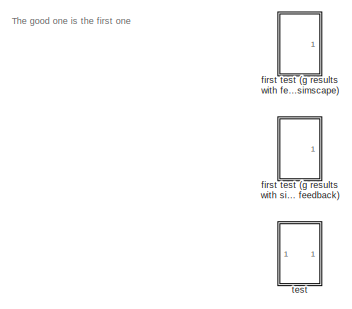
[diagram: root canvas - part 1/3, top right region]
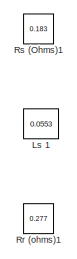
[diagram: root canvas - part 2/3, top left region]
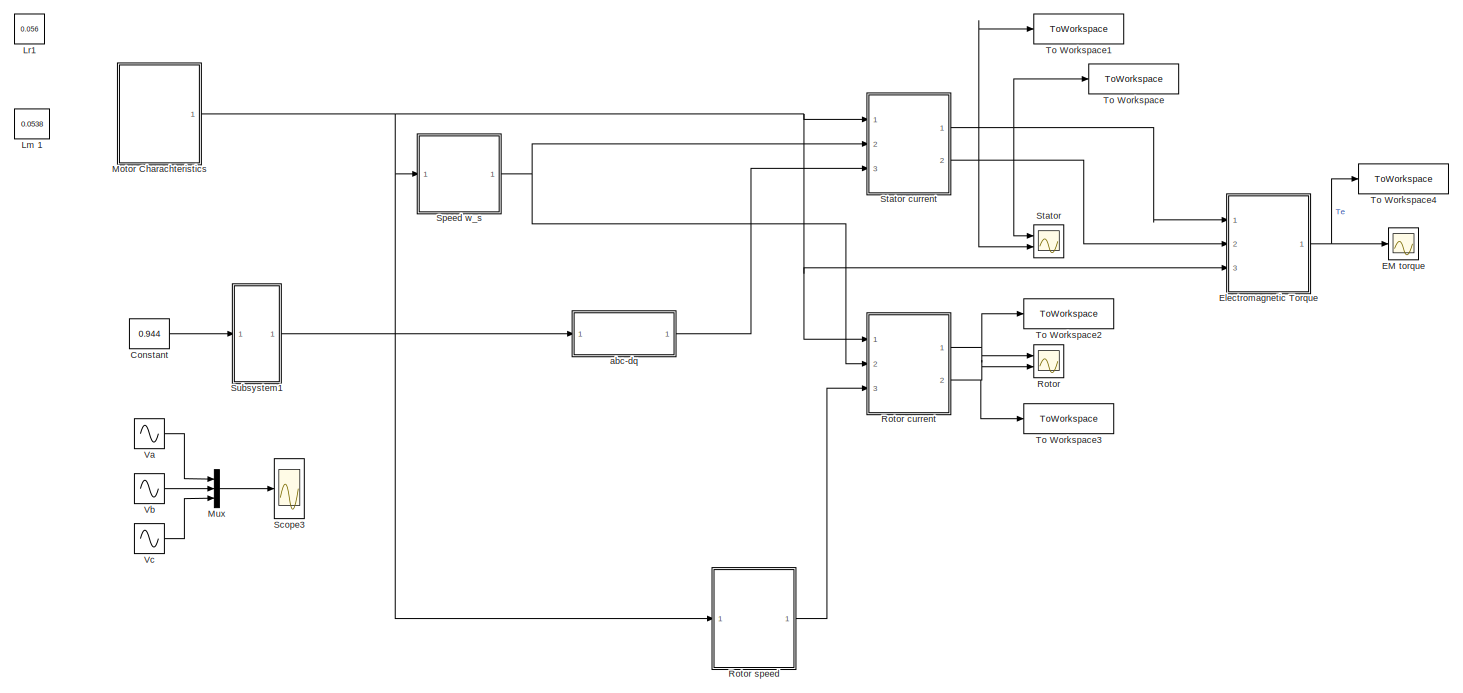
[diagram: root canvas - part 3/3, bottom left region]
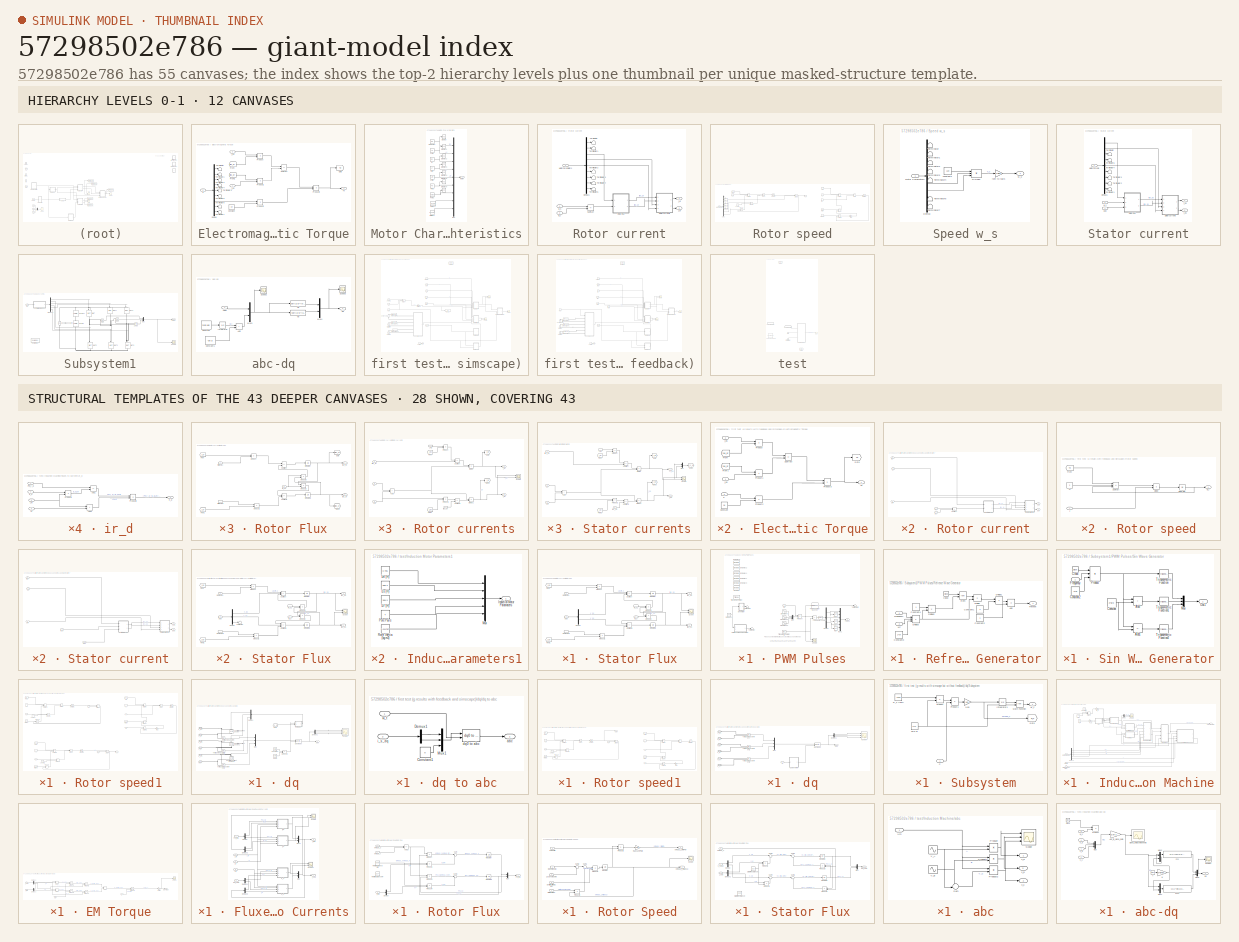
[diagram: thumbnail index - top-2 hierarchy levels (12 canvases) + 28 structural-template representatives of the remaining 43 canvases]
MODEL slx_57298502e786
KIND model
CONFIG AbsTol = auto
CONFIG EnableMultiTasking = off
CONFIG FixedStep = auto
CONFIG MaxStep = 1e-4
CONFIG MinStep = auto
CONFIG RelTol = 1e-3
CONFIG SampleTimeConstraint = Unconstrained
CONFIG Solver = VariableStepAuto
CONFIG SolverName = VariableStepAuto
CONFIG StartTime = 0.0
CONFIG StopTime = 3
BLOCK [Constant] Constant
  Value = 0.944
BLOCK [Scope] EM torque
  Floating = off
  NumInputPorts = 1
  Ports = [1]
  ScopeSpecificationString = Simulink.scopes.TimeScopeBlockCfg('CurrentConfiguration', extmgr.ConfigurationSet(extmgr.Configuration('Core','General UI',true),extmgr.Configuration('Core','Source UI',true),extmgr.Configuration('Sources','WiredSimulink',true,'DataLoggingVariableName','ScopeData6'),extmgr.Configuration('Visuals','Time Domain',true,'SerializedDisplays',{struct('MinYLimReal','-13.60785','MaxYLimReal','13.87231','YL...<+1438ch>
BLOCK [SubSystem] Electromagnetic Torque
  Ports = [3, 1]
  RequestExecContextInheritance = off
BLOCK [Constant] Electromagnetic Torque/Constant
  Value = 3/4
BLOCK [Demux] Electromagnetic Torque/Demux
  Outputs = 9
  Ports = [1, 9]
BLOCK [From] Electromagnetic Torque/From
  GotoTag = flux_dr
  TagVisibility = global
BLOCK [From] Electromagnetic Torque/From1
  GotoTag = flux_qr
  TagVisibility = global
BLOCK [Goto] Electromagnetic Torque/Goto
  GotoTag = Te
  TagVisibility = global
BLOCK [Inport] Electromagnetic Torque/P
  Port = 3
BLOCK [Product] Electromagnetic Torque/Product
  Ports = [2, 1]
BLOCK [Product] Electromagnetic Torque/Product1
  Ports = [2, 1]
BLOCK [Product] Electromagnetic Torque/Product2
  Ports = [2, 1]
BLOCK [Product] Electromagnetic Torque/Product3
  Ports = [2, 1]
BLOCK [Sum] Electromagnetic Torque/Subtract
  IconShape = rectangular
  Inputs = +-
  Ports = [2, 1]
BLOCK [Outport] Electromagnetic Torque/Te
  VectorParamsAs1DForOutWhenUnconnected = off
BLOCK [Terminator] Electromagnetic Torque/Terminator
BLOCK [Terminator] Electromagnetic Torque/Terminator1
BLOCK [Terminator] Electromagnetic Torque/Terminator2
BLOCK [Terminator] Electromagnetic Torque/Terminator3
BLOCK [Terminator] Electromagnetic Torque/Terminator4
BLOCK [Terminator] Electromagnetic Torque/Terminator5
BLOCK [Terminator] Electromagnetic Torque/Terminator6
BLOCK [Terminator] Electromagnetic Torque/Terminator7
BLOCK [Inport] Electromagnetic Torque/i_ds
BLOCK [Inport] Electromagnetic Torque/i_qs
  Port = 2
BLOCK [Constant] Lm 1
  Commented = on
  Value = 0.0538
BLOCK [Constant] Lr1
  Commented = on
  Value = 0.056
BLOCK [Constant] Ls 1
  Commented = on
  Value = 0.0553
BLOCK [SubSystem] Motor Charachteristics
  Ports = [0, 1]
  RequestExecContextInheritance = off
BLOCK [Display] Motor Charachteristics/Display
  Decimation = 1
  Ports = [1]
BLOCK [Display] Motor Charachteristics/Display1
  Decimation = 1
  Ports = [1]
BLOCK [Display] Motor Charachteristics/Display2
  Decimation = 1
  Ports = [1]
BLOCK [Display] Motor Charachteristics/Display3
  Decimation = 1
  Ports = [1]
BLOCK [Display] Motor Charachteristics/Display4
  Decimation = 1
  Ports = [1]
BLOCK [Display] Motor Charachteristics/Display5
  Decimation = 1
  Ports = [1]
BLOCK [Display] Motor Charachteristics/Display6
  Decimation = 1
  Ports = [1]
BLOCK [Constant] Motor Charachteristics/Freq
  Value = Fe
BLOCK [Constant] Motor Charachteristics/Friction1
  Value = 0.00281
BLOCK [Constant] Motor Charachteristics/Kg-m^2
  Value = 0.0155
BLOCK [Constant] Motor Charachteristics/Lm (H)
  Value = Lm
BLOCK [Constant] Motor Charachteristics/Lr (H)
  Value = Lr
BLOCK [Constant] Motor Charachteristics/Ls (H)
  Value = Ls
BLOCK [Outport] Motor Charachteristics/Motor
BLOCK [Mux] Motor Charachteristics/Mux
  DisplayOption = bar
  Inputs = 9
  Ports = [9, 1]
BLOCK [Constant] Motor Charachteristics/Poles
  Value = Poles
BLOCK [Constant] Motor Charachteristics/Rr
  Value = Rr
BLOCK [Constant] Motor Charachteristics/Rs (ohms)
  Value = Rs
BLOCK [Mux] Mux
  DisplayOption = bar
  Inputs = 3
  Ports = [3, 1]
BLOCK [Scope] Rotor
  Floating = off
  NumInputPorts = 2
  Ports = [2]
  ScopeSpecificationString = Simulink.scopes.TimeScopeBlockCfg('CurrentConfiguration', extmgr.ConfigurationSet(extmgr.Configuration('Core','General UI',true),extmgr.Configuration('Core','Source UI',true),extmgr.Configuration('Sources','WiredSimulink',true,'DataLoggingVariableName','ScopeData5'),extmgr.Configuration('Visuals','Time Domain',true,'SerializedDisplays',{struct('MinYLimReal','-185.57548','MaxYLimReal','193.50308','...<+1481ch>
BLOCK [SubSystem] Rotor current
  Ports = [3, 2]
  RequestExecContextInheritance = off
BLOCK [Demux] Rotor current/Demux1
  Outputs = 9
  Ports = [1, 9]
BLOCK [Inport] Rotor current/Motor Parameters
BLOCK [SubSystem] Rotor current/Rotor Flux
  Ports = [2, 2]
  RequestExecContextInheritance = off
BLOCK [From] Rotor current/Rotor Flux/From
  GotoTag = i_dr
  TagVisibility = global
BLOCK [From] Rotor current/Rotor Flux/From1
  GotoTag = i_qr
  TagVisibility = global
BLOCK [Goto] Rotor current/Rotor Flux/Goto
  GotoTag = flux_dr
  TagVisibility = global
BLOCK [Goto] Rotor current/Rotor Flux/Goto1
  GotoTag = flux_qr
  TagVisibility = global
BLOCK [Integrator] Rotor current/Rotor Flux/Integrator
  Ports = [1, 1]
BLOCK [Integrator] Rotor current/Rotor Flux/Integrator1
  Ports = [1, 1]
BLOCK [Inport] Rotor current/Rotor Flux/Rr (Ohms)
BLOCK [InportShadow] Rotor current/Rotor Flux/Rr (Ohms)1
BLOCK [Sum] Rotor current/Rotor Flux/Subtract
  IconShape = rectangular
  Inputs = -+
  Ports = [2, 1]
BLOCK [Sum] Rotor current/Rotor Flux/Subtract1
  IconShape = rectangular
  Inputs = --
  Ports = [2, 1]
BLOCK [Outport] Rotor current/Rotor Flux/flux_dr
  VectorParamsAs1DForOutWhenUnconnected = off
BLOCK [Outport] Rotor current/Rotor Flux/flux_qr
  Port = 2
  VectorParamsAs1DForOutWhenUnconnected = off
BLOCK [Product] Rotor current/Rotor Flux/product
  Inputs = **
  Ports = [2, 1]
BLOCK [Product] Rotor current/Rotor Flux/product1
  Inputs = **
  Ports = [2, 1]
BLOCK [Product] Rotor current/Rotor Flux/product2
  Inputs = **
  Ports = [2, 1]
BLOCK [Product] Rotor current/Rotor Flux/product3
  Inputs = **
  Ports = [2, 1]
BLOCK [Inport] Rotor current/Rotor Flux/w_s1
  Port = 2
BLOCK [SubSystem] Rotor current/Rotor currents
  Ports = [4, 2]
  RequestExecContextInheritance = off
BLOCK [Sum] Rotor current/Rotor currents/Add
  IconShape = rectangular
  Ports = [2, 1]
BLOCK [Product] Rotor current/Rotor currents/Divide
  Inputs = */
  Ports = [2, 1]
BLOCK [Product] Rotor current/Rotor currents/Divide1
  Inputs = /*
  Ports = [2, 1]
BLOCK [From] Rotor current/Rotor currents/From
  GotoTag = i_ds
  TagVisibility = global
BLOCK [From] Rotor current/Rotor currents/From1
  GotoTag = i_qs
  TagVisibility = global
BLOCK [Goto] Rotor current/Rotor currents/Goto
  GotoTag = i_dr
  TagVisibility = global
BLOCK [Goto] Rotor current/Rotor currents/Goto1
  GotoTag = i_qr
  TagVisibility = global
BLOCK [Inport] Rotor current/Rotor currents/Lm
  Port = 4
BLOCK [InportShadow] Rotor current/Rotor currents/Lm1
  Port = 4
BLOCK [Inport] Rotor current/Rotor currents/Lr
  Port = 3
BLOCK [Product] Rotor current/Rotor currents/Product
  Ports = [2, 1]
BLOCK [Product] Rotor current/Rotor currents/Product1
  Ports = [2, 1]
BLOCK [Scope] Rotor current/Rotor currents/Scope
  Floating = off
  NumInputPorts = 2
  Ports = [2]
  ScopeSpecificationString = Simulink.scopes.TimeScopeBlockCfg('CurrentConfiguration', extmgr.ConfigurationSet(extmgr.Configuration('Core','General UI',true),extmgr.Configuration('Core','Source UI',true),extmgr.Configuration('Sources','WiredSimulink',true,'DataLoggingVariableName','ScopeData1'),extmgr.Configuration('Visuals','Time Domain',true,'SerializedDisplays',{struct('MinYLimReal','-381.16693','MaxYLimReal','372.37731','...<+1415ch>  <repeated x3 — deduplicated; at blocks: Scope>
BLOCK [Sum] Rotor current/Rotor currents/Subtract
  IconShape = rectangular
  Inputs = -+
  Ports = [2, 1]
BLOCK [Sum] Rotor current/Rotor currents/Subtract1
  IconShape = rectangular
  Inputs = -+
  Ports = [2, 1]
BLOCK [Inport] Rotor current/Rotor currents/flus_qr
  Port = 2
BLOCK [Inport] Rotor current/Rotor currents/flux_dr
BLOCK [Outport] Rotor current/Rotor currents/i_dr
  VectorParamsAs1DForOutWhenUnconnected = off
BLOCK [Outport] Rotor current/Rotor currents/i_qr
  Port = 2
  VectorParamsAs1DForOutWhenUnconnected = off
BLOCK [Sum] Rotor current/Subtract
  IconShape = rectangular
  Inputs = +-
  Ports = [2, 1]
BLOCK [Terminator] Rotor current/Terminator
BLOCK [Terminator] Rotor current/Terminator1
BLOCK [Terminator] Rotor current/Terminator2
BLOCK [Terminator] Rotor current/Terminator3
BLOCK [Terminator] Rotor current/Terminator4
BLOCK [Terminator] Rotor current/Terminator5
BLOCK [Outport] Rotor current/i_dr
  VectorParamsAs1DForOutWhenUnconnected = off
BLOCK [Outport] Rotor current/i_qr
  Port = 2
  VectorParamsAs1DForOutWhenUnconnected = off
BLOCK [Inport] Rotor current/w_r
  Port = 3
BLOCK [Inport] Rotor current/w_s
  Port = 2
BLOCK [SubSystem] Rotor speed
  Ports = [1, 1]
  RequestExecContextInheritance = off
BLOCK [Demux] Rotor speed/Demux
  Outputs = 8
  Ports = [1, 8]
BLOCK [Product] Rotor speed/Divide
  Commented = on
  Inputs = */
  Ports = [2, 1]
BLOCK [Product] Rotor speed/Divide1
  Inputs = */
  Ports = [2, 1]
BLOCK [Product] Rotor speed/Divide2
  Inputs = **
  Ports = [2, 1]
BLOCK [Constant] Rotor speed/Friction
  Commented = on
  Value = 0.0027
BLOCK [From] Rotor speed/From
  Commented = on
  GotoTag = Te
  TagVisibility = global
BLOCK [From] Rotor speed/From1
  GotoTag = Te
  TagVisibility = global
BLOCK [Gain] Rotor speed/Gain
  Commented = on
  Gain = 60/(2*pi)
BLOCK [Integrator] Rotor speed/Integrator
  Commented = on
  Ports = [1, 1]
BLOCK [Integrator] Rotor speed/Integrator1
  Ports = [1, 1]
BLOCK [Inport] Rotor speed/Motor Parameters
BLOCK [Constant] Rotor speed/OldJ
  Commented = on
BLOCK [Constant] Rotor speed/OldPoles
  Commented = on
BLOCK [Product] Rotor speed/Product
  Commented = on
  Ports = [2, 1]
BLOCK [Product] Rotor speed/Product1
  Ports = [2, 1]
BLOCK [Product] Rotor speed/Product3
  Ports = [2, 1]
BLOCK [Sum] Rotor speed/Subtract
  Commented = on
  IconShape = rectangular
  Inputs = +--
  Ports = [3, 1]
BLOCK [Sum] Rotor speed/Subtract1
  Commented = on
  IconShape = rectangular
  Inputs = +-
  Ports = [2, 1]
BLOCK [Sum] Rotor speed/Subtract2
  IconShape = rectangular
  Inputs = +--
  Ports = [3, 1]
BLOCK [Constant] Rotor speed/TL
  Commented = on
  Value = 0
BLOCK [Constant] Rotor speed/TL1
  Value = 0
BLOCK [Terminator] Rotor speed/Terminator
BLOCK [Terminator] Rotor speed/Terminator1
BLOCK [Terminator] Rotor speed/Terminator2
BLOCK [Terminator] Rotor speed/Terminator3
BLOCK [Terminator] Rotor speed/Terminator4
BLOCK [Constant] Rotor speed/constant
  Value = 2
BLOCK [Outport] Rotor speed/w_r_e
  VectorParamsAs1DForOutWhenUnconnected = off
BLOCK [Constant] Rr (ohms)1
  Commented = on
  Value = 0.277
BLOCK [Constant] Rs (Ohms)1
  Commented = on
  Value = 0.183
BLOCK [Scope] Scope3
  Floating = off
  NumInputPorts = 3
  Ports = [3]
  ScopeSpecificationString = Simulink.scopes.TimeScopeBlockCfg('CurrentConfiguration', extmgr.ConfigurationSet(extmgr.Configuration('Core','General UI',true),extmgr.Configuration('Core','Source UI',true),extmgr.Configuration('Sources','WiredSimulink',true,'DataLoggingVariableName','ScopeData1'),extmgr.Configuration('Visuals','Time Domain',true,'SerializedDisplays',{struct('MinYLimReal','-0.42212','MaxYLimReal','1.12736','YLab...<+2200ch>
BLOCK [SubSystem] Speed w_s
  Ports = [1, 1]
  RequestExecContextInheritance = off
BLOCK [Demux] Speed w_s/Demux
  Outputs = 9
  Ports = [1, 9]
BLOCK [Product] Speed w_s/Divide2
  Inputs = **/
  Ports = [3, 1]
BLOCK [Inport] Speed w_s/Motor Paramaters
BLOCK [Terminator] Speed w_s/Terminator
BLOCK [Terminator] Speed w_s/Terminator1
BLOCK [Terminator] Speed w_s/Terminator2
BLOCK [Terminator] Speed w_s/Terminator3
BLOCK [Terminator] Speed w_s/Terminator4
BLOCK [Terminator] Speed w_s/Terminator5
BLOCK [Terminator] Speed w_s/Terminator7
BLOCK [Constant] Speed w_s/constant1
  Value = 120
BLOCK [Gain] Speed w_s/rpm to rad//s
  Gain = 2*pi/60
BLOCK [Outport] Speed w_s/w_s
  VectorParamsAs1DForOutWhenUnconnected = off
BLOCK [Scope] Stator
  Floating = off
  NumInputPorts = 2
  Ports = [2]
  ScopeSpecificationString = Simulink.scopes.TimeScopeBlockCfg('CurrentConfiguration', extmgr.ConfigurationSet(extmgr.Configuration('Core','General UI',true),extmgr.Configuration('Core','Source UI',true),extmgr.Configuration('Sources','WiredSimulink',true,'DataLoggingVariableName','ScopeData4'),extmgr.Configuration('Visuals','Time Domain',true,'SerializedDisplays',{struct('MinYLimReal','-217.8003','MaxYLimReal','220.44766','Y...<+1482ch>
BLOCK [SubSystem] Stator current
  Ports = [3, 2]
  RequestExecContextInheritance = off
BLOCK [Demux] Stator current/Demux1
  Outputs = 9
  Ports = [1, 9]
BLOCK [Inport] Stator current/Motor Params
BLOCK [SubSystem] Stator current/Stator Flux
  Ports = [3, 2]
  RequestExecContextInheritance = off
BLOCK [Demux] Stator current/Stator Flux/Demux
  Outputs = 2
  Ports = [1, 2]
BLOCK [From] Stator current/Stator Flux/From
  GotoTag = i_ds
  TagVisibility = global
BLOCK [From] Stator current/Stator Flux/From1
  GotoTag = i_qs
  TagVisibility = global
BLOCK [Integrator] Stator current/Stator Flux/Integrator
  Ports = [1, 1]
BLOCK [Integrator] Stator current/Stator Flux/Integrator1
  Ports = [1, 1]
BLOCK [Inport] Stator current/Stator Flux/Rs (Ohms)
BLOCK [InportShadow] Stator current/Stator Flux/Rs (Ohms)1
BLOCK [Scope] Stator current/Stator Flux/Scope
  Floating = off
  NumInputPorts = 2
  Ports = [2]
  ScopeSpecificationString = Simulink.scopes.TimeScopeBlockCfg('CurrentConfiguration', extmgr.ConfigurationSet(extmgr.Configuration('Core','General UI',true),extmgr.Configuration('Core','Source UI',true),extmgr.Configuration('Sources','WiredSimulink',true,'DataLoggingVariableName','ScopeData2'),extmgr.Configuration('Visuals','Time Domain',true,'SerializedDisplays',{struct('MinYLimReal','-439.80147','MaxYLimReal','431.65029','...<+1459ch>  <repeated x3 — deduplicated; at blocks: Scope>
BLOCK [Sum] Stator current/Stator Flux/Subtract
  IconShape = rectangular
  Inputs = -++
  Ports = [3, 1]
BLOCK [Sum] Stator current/Stator Flux/Subtract1
  IconShape = rectangular
  Inputs = -+-
  Ports = [3, 1]
BLOCK [Inport] Stator current/Stator Flux/dq0
  Port = 3
BLOCK [Outport] Stator current/Stator Flux/flux_ds
  VectorParamsAs1DForOutWhenUnconnected = off
BLOCK [Outport] Stator current/Stator Flux/flux_qs
  Port = 2
  VectorParamsAs1DForOutWhenUnconnected = off
BLOCK [Product] Stator current/Stator Flux/product
  Inputs = **
  Ports = [2, 1]
BLOCK [Product] Stator current/Stator Flux/product1
  Inputs = **
  Ports = [2, 1]
BLOCK [Product] Stator current/Stator Flux/product2
  Inputs = **
  Ports = [2, 1]
BLOCK [Product] Stator current/Stator Flux/product3
  Inputs = **
  Ports = [2, 1]
BLOCK [Inport] Stator current/Stator Flux/w_s
  Port = 2
BLOCK [InportShadow] Stator current/Stator Flux/w_s1
  Port = 2
BLOCK [SubSystem] Stator current/Stator currents
  Ports = [4, 2]
  RequestExecContextInheritance = off
BLOCK [Sum] Stator current/Stator currents/Add
  IconShape = rectangular
  Ports = [2, 1]
BLOCK [Product] Stator current/Stator currents/Divide
  Inputs = */
  Ports = [2, 1]
BLOCK [Product] Stator current/Stator currents/Divide1
  Inputs = /*
  Ports = [2, 1]
BLOCK [From] Stator current/Stator currents/From
  GotoTag = i_dr
  TagVisibility = global
BLOCK [From] Stator current/Stator currents/From1
  GotoTag = i_qr
  TagVisibility = global
BLOCK [Goto] Stator current/Stator currents/Goto
  GotoTag = i_ds
  TagVisibility = global
BLOCK [Goto] Stator current/Stator currents/Goto1
  GotoTag = i_qs
  TagVisibility = global
BLOCK [Goto] Stator current/Stator currents/Goto2
  GotoTag = i_s_dq
  TagVisibility = global
BLOCK [Inport] Stator current/Stator currents/Lm
  Port = 4
BLOCK [InportShadow] Stator current/Stator currents/Lm1
  Port = 4
BLOCK [Inport] Stator current/Stator currents/Ls
  Port = 3
BLOCK [Mux] Stator current/Stator currents/Mux
  DisplayOption = bar
  Inputs = 2
  Ports = [2, 1]
BLOCK [Product] Stator current/Stator currents/Product
  Ports = [2, 1]
BLOCK [Product] Stator current/Stator currents/Product1
  Ports = [2, 1]
BLOCK [Scope] Stator current/Stator currents/Scope
  Floating = off
  NumInputPorts = 2
  Ports = [2]
  ScopeSpecificationString = Simulink.scopes.TimeScopeBlockCfg('CurrentConfiguration', extmgr.ConfigurationSet(extmgr.Configuration('Core','General UI',true),extmgr.Configuration('Core','Source UI',true),extmgr.Configuration('Sources','WiredSimulink',true,'DataLoggingVariableName','ScopeData1'),extmgr.Configuration('Visuals','Time Domain',true,'SerializedDisplays',{struct('MinYLimReal','-439.80147','MaxYLimReal','431.65029','...<+1428ch>  <repeated x3 — deduplicated; at blocks: Scope>
BLOCK [Sum] Stator current/Stator currents/Subtract
  IconShape = rectangular
  Inputs = -+
  Ports = [2, 1]
BLOCK [Sum] Stator current/Stator currents/Subtract1
  IconShape = rectangular
  Inputs = -+
  Ports = [2, 1]
BLOCK [Inport] Stator current/Stator currents/flus_ds
BLOCK [Inport] Stator current/Stator currents/flus_qs
  Port = 2
BLOCK [Outport] Stator current/Stator currents/i_ds
  VectorParamsAs1DForOutWhenUnconnected = off
BLOCK [Outport] Stator current/Stator currents/i_qs
  Port = 2
  VectorParamsAs1DForOutWhenUnconnected = off
BLOCK [Terminator] Stator current/Terminator
BLOCK [Terminator] Stator current/Terminator1
BLOCK [Terminator] Stator current/Terminator2
BLOCK [Terminator] Stator current/Terminator3
BLOCK [Terminator] Stator current/Terminator4
BLOCK [Terminator] Stator current/Terminator5
BLOCK [Inport] Stator current/dq0
  Port = 3
BLOCK [Outport] Stator current/i_ds
  VectorParamsAs1DForOutWhenUnconnected = off
BLOCK [Outport] Stator current/i_qs
  Port = 2
  VectorParamsAs1DForOutWhenUnconnected = off
BLOCK [Inport] Stator current/w_s
  Port = 2
BLOCK [SubSystem] Subsystem1
  Ports = [1, 1]
  RequestExecContextInheritance = off
BLOCK [Reference] Subsystem1/DC Link  REF=powerlib/Elements/Parallel RLC Branch
  AttributesFormatString = \n
  Commented = on
  NameLocation = right
  Ports = [0, 0, 0, 0, 0, 1, 1]
  SourceBlock = powerlib/Elements/Parallel RLC Branch
  SourceProductBaseCode = PS
  SourceType = Parallel RLC Branch
BLOCK [Reference] Subsystem1/DC Link1  REF=powerlib/Elements/Parallel RLC Branch
  AttributesFormatString = \n
  Commented = on
  NameLocation = right
  Ports = [0, 0, 0, 0, 0, 1, 1]
  SourceBlock = powerlib/Elements/Parallel RLC Branch
  SourceProductBaseCode = PS
  SourceType = Parallel RLC Branch
BLOCK [Reference] Subsystem1/DC Voltage Source  REF=powerlib/Electrical
Sources/DC Voltage Source
  NameLocation = right
  Ports = [0, 0, 0, 0, 0, 1, 1]
  SourceBlock = powerlib/Electrical\nSources/DC Voltage Source
  SourceProductBaseCode = PS
  SourceType = DC Voltage Source
BLOCK [Demux] Subsystem1/Demux1
  Outputs = 6
  Ports = [1, 6]
BLOCK [Reference] Subsystem1/IGBT  REF=powerlib/Power
Electronics/IGBT
  NameLocation = left
  Ports = [1, 0, 0, 0, 0, 1, 1]
  SourceBlock = powerlib/Power\nElectronics/IGBT
  SourceProductBaseCode = PS
  SourceType = IGBT
BLOCK [Reference] Subsystem1/IGBT1  REF=powerlib/Power
Electronics/IGBT
  NameLocation = left
  Ports = [1, 0, 0, 0, 0, 1, 1]
  SourceBlock = powerlib/Power\nElectronics/IGBT
  SourceProductBaseCode = PS
  SourceType = IGBT
BLOCK [Reference] Subsystem1/IGBT2  REF=powerlib/Power
Electronics/IGBT
  NameLocation = left
  Ports = [1, 0, 0, 0, 0, 1, 1]
  SourceBlock = powerlib/Power\nElectronics/IGBT
  SourceProductBaseCode = PS
  SourceType = IGBT
BLOCK [Reference] Subsystem1/IGBT3  REF=powerlib/Power
Electronics/IGBT
  NameLocation = left
  Ports = [1, 0, 0, 0, 0, 1, 1]
  SourceBlock = powerlib/Power\nElectronics/IGBT
  SourceProductBaseCode = PS
  SourceType = IGBT
BLOCK [Reference] Subsystem1/IGBT4  REF=powerlib/Power
Electronics/IGBT
  NameLocation = left
  Ports = [1, 0, 0, 0, 0, 1, 1]
  SourceBlock = powerlib/Power\nElectronics/IGBT
  SourceProductBaseCode = PS
  SourceType = IGBT
BLOCK [Reference] Subsystem1/IGBT5  REF=powerlib/Power
Electronics/IGBT
  NameLocation = left
  Ports = [1, 0, 0, 0, 0, 1, 1]
  SourceBlock = powerlib/Power\nElectronics/IGBT
  SourceProductBaseCode = PS
  SourceType = IGBT
BLOCK [Reference] Subsystem1/Leg1  REF=powerlib/Measurements/Voltage Measurement
  Ports = [0, 1, 0, 0, 0, 2]
  SourceBlock = powerlib/Measurements/Voltage Measurement
  SourceProductBaseCode = PS
  SourceType = Voltage Measurement
  UserDataPersistent = on
BLOCK [Reference] Subsystem1/Leg2  REF=powerlib/Measurements/Voltage Measurement
  Ports = [0, 1, 0, 0, 0, 2]
  SourceBlock = powerlib/Measurements/Voltage Measurement
  SourceProductBaseCode = PS
  SourceType = Voltage Measurement
  UserDataPersistent = on
BLOCK [Reference] Subsystem1/Leg3  REF=powerlib/Measurements/Voltage Measurement
  Ports = [0, 1, 0, 0, 0, 2]
  SourceBlock = powerlib/Measurements/Voltage Measurement
  SourceProductBaseCode = PS
  SourceType = Voltage Measurement
  UserDataPersistent = on
BLOCK [Inport] Subsystem1/Ma
BLOCK [Mux] Subsystem1/Mux
  DisplayOption = bar
  Inputs = 3
  Ports = [3, 1]
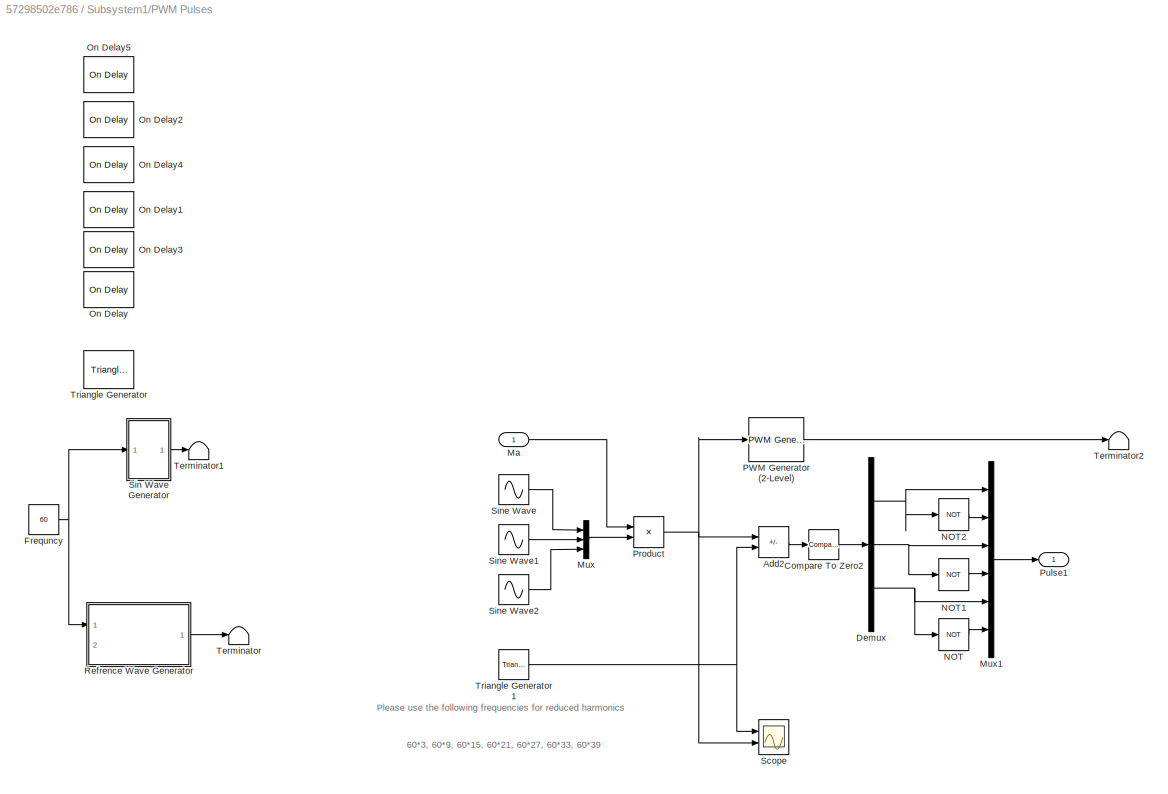
BLOCK [SubSystem] Subsystem1/PWM Pulses
  Ports = [1, 1]
  RequestExecContextInheritance = off
BLOCK [Sum] Subsystem1/PWM Pulses/Add2
  IconShape = rectangular
  Inputs = -+
  Ports = [2, 1]
BLOCK [Reference] Subsystem1/PWM Pulses/Compare To Zero2  REF=simulink/Logic and Bit
Operations/Compare
To Zero
  Ports = [1, 1]
  SourceBlock = simulink/Logic and Bit\nOperations/Compare\nTo Zero
  SourceProductBaseCode = SL
  SourceType = Compare To Zero
BLOCK [Demux] Subsystem1/PWM Pulses/Demux
  Outputs = 3
  Ports = [1, 3]
BLOCK [Constant] Subsystem1/PWM Pulses/Frequncy
  Commented = on
  Value = 60
BLOCK [Inport] Subsystem1/PWM Pulses/Ma
BLOCK [Mux] Subsystem1/PWM Pulses/Mux
  DisplayOption = bar
  Inputs = 3
  Ports = [3, 1]
BLOCK [Mux] Subsystem1/PWM Pulses/Mux1
  DisplayOption = bar
  Inputs = 6
  Ports = [6, 1]
BLOCK [Logic] Subsystem1/PWM Pulses/NOT
  AllPortsSameDT = off
  IconShape = distinctive
  Operator = NOT
  OutDataTypeStr = boolean
  Ports = [1, 1]
BLOCK [Logic] Subsystem1/PWM Pulses/NOT1
  AllPortsSameDT = off
  IconShape = distinctive
  Operator = NOT
  OutDataTypeStr = boolean
  Ports = [1, 1]
BLOCK [Logic] Subsystem1/PWM Pulses/NOT2
  AllPortsSameDT = off
  IconShape = distinctive
  Operator = NOT
  OutDataTypeStr = boolean
  Ports = [1, 1]
BLOCK [Reference] Subsystem1/PWM Pulses/On Delay  REF=powerlib_meascontrol/Logic/On Delay
  Commented = on
  Ports = [1, 1]
  SourceBlock = powerlib_meascontrol/Logic/On Delay
  SourceProductBaseCode = PS
  SourceType = On/Off Delay
BLOCK [Reference] Subsystem1/PWM Pulses/On Delay1  REF=powerlib_meascontrol/Logic/On Delay
  Commented = on
  Ports = [1, 1]
  SourceBlock = powerlib_meascontrol/Logic/On Delay
  SourceProductBaseCode = PS
  SourceType = On/Off Delay
BLOCK [Reference] Subsystem1/PWM Pulses/On Delay2  REF=powerlib_meascontrol/Logic/On Delay
  Commented = on
  Ports = [1, 1]
  SourceBlock = powerlib_meascontrol/Logic/On Delay
  SourceProductBaseCode = PS
  SourceType = On/Off Delay
BLOCK [Reference] Subsystem1/PWM Pulses/On Delay3  REF=powerlib_meascontrol/Logic/On Delay
  Commented = on
  Ports = [1, 1]
  SourceBlock = powerlib_meascontrol/Logic/On Delay
  SourceProductBaseCode = PS
  SourceType = On/Off Delay
BLOCK [Reference] Subsystem1/PWM Pulses/On Delay4  REF=powerlib_meascontrol/Logic/On Delay
  Commented = on
  Ports = [1, 1]
  SourceBlock = powerlib_meascontrol/Logic/On Delay
  SourceProductBaseCode = PS
  SourceType = On/Off Delay
BLOCK [Reference] Subsystem1/PWM Pulses/On Delay5  REF=powerlib_meascontrol/Logic/On Delay
  Commented = on
  Ports = [1, 1]
  SourceBlock = powerlib_meascontrol/Logic/On Delay
  SourceProductBaseCode = PS
  SourceType = On/Off Delay
BLOCK [Reference] Subsystem1/PWM Pulses/PWM Generator (2-Level)  REF=powerlib_meascontrol/Pulse & Signal
Generators/PWM Generator
(2-Level)
  Ports = [1, 1]
  SourceBlock = powerlib_meascontrol/Pulse & Signal\nGenerators/PWM Generator\n(2-Level)
  SourceProductBaseCode = PS
  SourceType = PWM Generator (2-Level)
BLOCK [Product] Subsystem1/PWM Pulses/Product
  Ports = [2, 1]
BLOCK [Outport] Subsystem1/PWM Pulses/Pulse1
BLOCK [SubSystem] Subsystem1/PWM Pulses/Refrence Wave Generator
  Commented = on
  Ports = [2, 1]
  RequestExecContextInheritance = off
BLOCK [Sum] Subsystem1/PWM Pulses/Refrence Wave Generator/Add
  IconShape = rectangular
  Inputs = +-
  Ports = [2, 1]
BLOCK [Clock] Subsystem1/PWM Pulses/Refrence Wave Generator/Clock
BLOCK [Constant] Subsystem1/PWM Pulses/Refrence Wave Generator/Constant1
  Value = 2
BLOCK [Constant] Subsystem1/PWM Pulses/Refrence Wave Generator/Constant2
BLOCK [Constant] Subsystem1/PWM Pulses/Refrence Wave Generator/Constant3
  Value = 2*pi
BLOCK [Constant] Subsystem1/PWM Pulses/Refrence Wave Generator/Constant4
BLOCK [Product] Subsystem1/PWM Pulses/Refrence Wave Generator/Divide
  Inputs = **
  Ports = [2, 1]
BLOCK [Product] Subsystem1/PWM Pulses/Refrence Wave Generator/Divide1
  Inputs = **
  Ports = [2, 1]
BLOCK [Product] Subsystem1/PWM Pulses/Refrence Wave Generator/Divide2
  Inputs = */
  Ports = [2, 1]
BLOCK [Product] Subsystem1/PWM Pulses/Refrence Wave Generator/Divide3
  Inputs = **/
  Ports = [3, 1]
BLOCK [Inport] Subsystem1/PWM Pulses/Refrence Wave Generator/Frequency
BLOCK [Inport] Subsystem1/PWM Pulses/Refrence Wave Generator/Mf
  Port = 2
BLOCK [Math] Subsystem1/PWM Pulses/Refrence Wave Generator/Rem
  Operator = rem
  Ports = [2, 1]
  SignedPower = on
BLOCK [Outport] Subsystem1/PWM Pulses/Refrence Wave Generator/TriWave
BLOCK [Scope] Subsystem1/PWM Pulses/Scope
  Floating = off
  NumInputPorts = 2
  Ports = [2]
  ScopeSpecificationString = Simulink.scopes.TimeScopeBlockCfg('CurrentConfiguration', extmgr.ConfigurationSet(extmgr.Configuration('Core','General UI',true),extmgr.Configuration('Core','Source UI',true),extmgr.Configuration('Sources','WiredSimulink',true,'DataLoggingVariableName','ScopeData2'),extmgr.Configuration('Visuals','Time Domain',true,'SerializedDisplays',{struct('MinYLimReal','-1.25','MaxYLimReal','1.25','YLabelReal...<+1586ch>
BLOCK [SubSystem] Subsystem1/PWM Pulses/Sin Wave Generator
  Commented = on
  Ports = [1, 1]
  RequestExecContextInheritance = off
BLOCK [Sum] Subsystem1/PWM Pulses/Sin Wave Generator/Add
  IconShape = rectangular
  Ports = [2, 1]
BLOCK [Sum] Subsystem1/PWM Pulses/Sin Wave Generator/Add1
  IconShape = rectangular
  Inputs = +-
  Ports = [2, 1]
BLOCK [Clock] Subsystem1/PWM Pulses/Sin Wave Generator/Clock
BLOCK [Constant] Subsystem1/PWM Pulses/Sin Wave Generator/Constant
  Value = 2*pi/3
BLOCK [Constant] Subsystem1/PWM Pulses/Sin Wave Generator/Constant2
  Value = 2*pi
BLOCK [Inport] Subsystem1/PWM Pulses/Sin Wave Generator/Frequency
BLOCK [Mux] Subsystem1/PWM Pulses/Sin Wave Generator/Mux
  DisplayOption = bar
  Inputs = 3
  Ports = [3, 1]
BLOCK [Outport] Subsystem1/PWM Pulses/Sin Wave Generator/Out1
BLOCK [Product] Subsystem1/PWM Pulses/Sin Wave Generator/Product
  Inputs = 3
  Ports = [3, 1]
BLOCK [Trigonometry] Subsystem1/PWM Pulses/Sin Wave Generator/Trigonometric Function
  Ports = [1, 1]
BLOCK [Trigonometry] Subsystem1/PWM Pulses/Sin Wave Generator/Trigonometric Function1
  Ports = [1, 1]
BLOCK [Trigonometry] Subsystem1/PWM Pulses/Sin Wave Generator/Trigonometric Function2
  Ports = [1, 1]
BLOCK [Sin] Subsystem1/PWM Pulses/Sine Wave
  Frequency = 60*2*pi
  Ports = [0, 1]
  SampleTime = 0
BLOCK [Sin] Subsystem1/PWM Pulses/Sine Wave1
  Frequency = 60*2*pi
  Phase = -2*pi/3
  Ports = [0, 1]
  SampleTime = 0
BLOCK [Sin] Subsystem1/PWM Pulses/Sine Wave2
  Frequency = 60*2*pi
  Phase = 2*pi/3
  Ports = [0, 1]
  SampleTime = 0
BLOCK [Terminator] Subsystem1/PWM Pulses/Terminator
  Commented = on
BLOCK [Terminator] Subsystem1/PWM Pulses/Terminator1
  Commented = on
BLOCK [Terminator] Subsystem1/PWM Pulses/Terminator2
BLOCK [Reference] Subsystem1/PWM Pulses/Triangle Generator  REF=powerlib_meascontrol/Pulse & Signal
Generators/Triangle
Generator
  Commented = on
  Ports = [0, 1]
  SourceBlock = powerlib_meascontrol/Pulse & Signal\nGenerators/Triangle\nGenerator
  SourceProductBaseCode = PS
  SourceType = Triangle Generator
BLOCK [Reference] Subsystem1/PWM Pulses/Triangle Generator1  REF=powerlib_meascontrol/Pulse & Signal
Generators/Triangle
Generator
  Ports = [0, 1]
  SourceBlock = powerlib_meascontrol/Pulse & Signal\nGenerators/Triangle\nGenerator
  SourceProductBaseCode = PS
  SourceType = Triangle Generator
BLOCK [Scope] Subsystem1/Scope
  Floating = off
  NumInputPorts = 1
  Ports = [1]
  ScopeSpecificationString = Simulink.scopes.TimeScopeBlockCfg('CurrentConfiguration', extmgr.ConfigurationSet(extmgr.Configuration('Core','General UI',true),extmgr.Configuration('Core','Source UI',true),extmgr.Configuration('Sources','WiredSimulink',true,'DataLoggingVariableName','ScopeData1'),extmgr.Configuration('Visuals','Time Domain',true,'SerializedDisplays',{struct('MinYLimReal','-894.99458','MaxYLimReal','894.99439','...<+1605ch>
BLOCK [Outport] Subsystem1/Vabc
BLOCK [Reference] Subsystem1/powergui  REF=powerlib/powergui
  Ports = []
  Priority = 1
  SourceBlock = powerlib/powergui
  SourceProductBaseCode = PS
  SourceType = PSB option menu block
BLOCK [ToWorkspace] To Workspace
  FixptAsFi = on
  MaxDataPoints = inf
  Ports = [1]
  SampleTime = -1
  SaveFormat = Timeseries
  VariableName = i_ds_output
BLOCK [ToWorkspace] To Workspace1
  FixptAsFi = on
  MaxDataPoints = inf
  Ports = [1]
  SampleTime = -1
  SaveFormat = Timeseries
  VariableName = i_qs_output
BLOCK [ToWorkspace] To Workspace2
  FixptAsFi = on
  MaxDataPoints = inf
  Ports = [1]
  SampleTime = -1
  SaveFormat = Timeseries
  VariableName = i_dr_output
BLOCK [ToWorkspace] To Workspace3
  FixptAsFi = on
  MaxDataPoints = inf
  Ports = [1]
  SampleTime = -1
  SaveFormat = Timeseries
  VariableName = i_qr_output
BLOCK [ToWorkspace] To Workspace4
  FixptAsFi = on
  MaxDataPoints = inf
  Ports = [1]
  SampleTime = -1
  SaveFormat = Timeseries
  VariableName = Torque_output
BLOCK [Sin] Va
  Amplitude = 340
  Frequency = 60*2*pi
  Ports = [0, 1]
  SampleTime = 0
BLOCK [Sin] Vb
  Amplitude = 340
  Frequency = 60*2*pi
  Phase = -2*pi/3
  Ports = [0, 1]
  SampleTime = 0
BLOCK [Sin] Vc
  Amplitude = 340
  Frequency = 60*2*pi
  Phase = 2*pi/3
  Ports = [0, 1]
  SampleTime = 0
BLOCK [SubSystem] abc-dq
  Ports = [1, 1]
  RequestExecContextInheritance = off
BLOCK [Sum] abc-dq/Add
  IconShape = rectangular
  Ports = [2, 1]
BLOCK [Constant] abc-dq/Constant
  Value = 2*pi*60
BLOCK [Constant] abc-dq/Constant1
  Value = -pi/3
BLOCK [Integrator] abc-dq/Integrator
  Ports = [1, 1]
BLOCK [Mux] abc-dq/Mux3
  DisplayOption = bar
  Inputs = 2
  Ports = [2, 1]
BLOCK [Mux] abc-dq/Mux4
  DisplayOption = bar
  Inputs = 2
  Ports = [2, 1]
BLOCK [Scope] abc-dq/Scope2
  Floating = off
  NumInputPorts = 1
  Ports = [1]
  ScopeSpecificationString = Simulink.scopes.TimeScopeBlockCfg('CurrentConfiguration', extmgr.ConfigurationSet(extmgr.Configuration('Core','General UI',true),extmgr.Configuration('Core','Source UI',true),extmgr.Configuration('Sources','WiredSimulink',true,'DataLoggingVariableName','ScopeData1'),extmgr.Configuration('Visuals','Time Domain',true,'SerializedDisplays',{struct('MinYLimReal','-442.48871','MaxYLimReal','582.39841','...<+1446ch>
BLOCK [Scope] abc-dq/Scope3
  Floating = off
  NumInputPorts = 1
  Ports = [1]
  ScopeSpecificationString = Simulink.scopes.TimeScopeBlockCfg('CurrentConfiguration', extmgr.ConfigurationSet(extmgr.Configuration('Core','General UI',true),extmgr.Configuration('Core','Source UI',true),extmgr.Configuration('Sources','WiredSimulink',true,'DataLoggingVariableName','ScopeData1'),extmgr.Configuration('Visuals','Time Domain',true,'SerializedDisplays',{struct('MinYLimReal','-632.86056','MaxYLimReal','632.86056','...<+1479ch>
BLOCK [Inport] abc-dq/Vabc
BLOCK [Fcn] abc-dq/Vd
  Expr = sqrt(2/3)*(u(1)*cos(u(4))+u(2)*cos(u(4)-2*pi/3)+u(3)*cos(u(4)+2*pi/3))
BLOCK [Fcn] abc-dq/Vq
  Expr = -sqrt(2/3)*(u(1)*sin(u(4))+u(2)*sin(u(4)-2*pi/3)+u(3)*sin(u(4)+2*pi/3))
BLOCK [Outport] abc-dq/dq
  VectorParamsAs1DForOutWhenUnconnected = off
BLOCK [SubSystem] first test (g results with feedback and simscape)
  Commented = on
  Ports = [0, 1]
  RequestExecContextInheritance = off
BLOCK [Reference] first test (g results with feedback and simscape)/AC Voltage Source  REF=powerlib/Electrical
Sources/AC Voltage Source
  NameLocation = right
  Ports = [0, 0, 0, 0, 0, 1, 1]
  SourceBlock = powerlib/Electrical\nSources/AC Voltage Source
  SourceProductBaseCode = PS
  SourceType = AC Voltage Source
BLOCK [Reference] first test (g results with feedback and simscape)/AC Voltage Source1  REF=powerlib/Electrical
Sources/AC Voltage Source
  NameLocation = right
  Ports = [0, 0, 0, 0, 0, 1, 1]
  SourceBlock = powerlib/Electrical\nSources/AC Voltage Source
  SourceProductBaseCode = PS
  SourceType = AC Voltage Source
BLOCK [Reference] first test (g results with feedback and simscape)/AC Voltage Source2  REF=powerlib/Electrical
Sources/AC Voltage Source
  NameLocation = right
  Ports = [0, 0, 0, 0, 0, 1, 1]
  SourceBlock = powerlib/Electrical\nSources/AC Voltage Source
  SourceProductBaseCode = PS
  SourceType = AC Voltage Source
BLOCK [Display] first test (g results with feedback and simscape)/Display2
  Decimation = 1
  Ports = [1]
BLOCK [Product] first test (g results with feedback and simscape)/Divide2
  Inputs = **/
  Ports = [3, 1]
BLOCK [SubSystem] first test (g results with feedback and simscape)/Electromagnetic Torque
  Ports = [3, 1]
  RequestExecContextInheritance = off
BLOCK [Constant] first test (g results with feedback and simscape)/Electromagnetic Torque/Constant
  Value = 3/4
BLOCK [From] first test (g results with feedback and simscape)/Electromagnetic Torque/From
  GotoTag = flux_dr
  TagVisibility = global
BLOCK [From] first test (g results with feedback and simscape)/Electromagnetic Torque/From1
  GotoTag = flux_qr
  TagVisibility = global
BLOCK [Goto] first test (g results with feedback and simscape)/Electromagnetic Torque/Goto
  GotoTag = Te
  TagVisibility = global
BLOCK [Inport] first test (g results with feedback and simscape)/Electromagnetic Torque/P
  Port = 3
BLOCK [Product] first test (g results with feedback and simscape)/Electromagnetic Torque/Product
  Ports = [2, 1]
BLOCK [Product] first test (g results with feedback and simscape)/Electromagnetic Torque/Product1
  Ports = [2, 1]
BLOCK [Product] first test (g results with feedback and simscape)/Electromagnetic Torque/Product2
  Ports = [2, 1]
BLOCK [Product] first test (g results with feedback and simscape)/Electromagnetic Torque/Product3
  Ports = [2, 1]
BLOCK [Sum] first test (g results with feedback and simscape)/Electromagnetic Torque/Subtract
  IconShape = rectangular
  Inputs = +-
  Ports = [2, 1]
BLOCK [Outport] first test (g results with feedback and simscape)/Electromagnetic Torque/Te
  VectorParamsAs1DForOutWhenUnconnected = off
BLOCK [Inport] first test (g results with feedback and simscape)/Electromagnetic Torque/i_ds
BLOCK [Inport] first test (g results with feedback and simscape)/Electromagnetic Torque/i_qs
  Port = 2
BLOCK [Constant] first test (g results with feedback and simscape)/J
  Value = 0.0155
BLOCK [Constant] first test (g results with feedback and simscape)/Llr (H)
  Value = 0.009061
BLOCK [Constant] first test (g results with feedback and simscape)/Lm (H)
  Value = 0.1485
BLOCK [Constant] first test (g results with feedback and simscape)/Ls (H)
  Value = 0.003883
BLOCK [Outport] first test (g results with feedback and simscape)/Out1
  VectorParamsAs1DForOutWhenUnconnected = off
BLOCK [Constant] first test (g results with feedback and simscape)/Poles
  Value = 2
BLOCK [Constant] first test (g results with feedback and simscape)/Power (hp)
  Value = 5
BLOCK [SubSystem] first test (g results with feedback and simscape)/Rotor current
  Ports = [5, 2]
  RequestExecContextInheritance = off
BLOCK [Inport] first test (g results with feedback and simscape)/Rotor current/Lm
  Port = 3
BLOCK [Inport] first test (g results with feedback and simscape)/Rotor current/Lr
  Port = 2
BLOCK [SubSystem] first test (g results with feedback and simscape)/Rotor current/Rotor Flux
  Ports = [2, 2]
  RequestExecContextInheritance = off
BLOCK [From] first test (g results with feedback and simscape)/Rotor current/Rotor Flux/From
  GotoTag = i_dr
  TagVisibility = global
BLOCK [From] first test (g results with feedback and simscape)/Rotor current/Rotor Flux/From1
  GotoTag = i_qr
  TagVisibility = global
BLOCK [Goto] first test (g results with feedback and simscape)/Rotor current/Rotor Flux/Goto
  GotoTag = flux_dr
  TagVisibility = global
BLOCK [Goto] first test (g results with feedback and simscape)/Rotor current/Rotor Flux/Goto1
  GotoTag = flux_qr
  TagVisibility = global
BLOCK [Integrator] first test (g results with feedback and simscape)/Rotor current/Rotor Flux/Integrator
  Ports = [1, 1]
BLOCK [Integrator] first test (g results with feedback and simscape)/Rotor current/Rotor Flux/Integrator1
  Ports = [1, 1]
BLOCK [Inport] first test (g results with feedback and simscape)/Rotor current/Rotor Flux/Rr (Ohms)
BLOCK [InportShadow] first test (g results with feedback and simscape)/Rotor current/Rotor Flux/Rr (Ohms)1
BLOCK [Sum] first test (g results with feedback and simscape)/Rotor current/Rotor Flux/Subtract
  IconShape = rectangular
  Inputs = -+
  Ports = [2, 1]
BLOCK [Sum] first test (g results with feedback and simscape)/Rotor current/Rotor Flux/Subtract1
  IconShape = rectangular
  Inputs = --
  Ports = [2, 1]
BLOCK [Outport] first test (g results with feedback and simscape)/Rotor current/Rotor Flux/flux_dr
  VectorParamsAs1DForOutWhenUnconnected = off
BLOCK [Outport] first test (g results with feedback and simscape)/Rotor current/Rotor Flux/flux_qr
  Port = 2
  VectorParamsAs1DForOutWhenUnconnected = off
BLOCK [Product] first test (g results with feedback and simscape)/Rotor current/Rotor Flux/product
  Inputs = **
  Ports = [2, 1]
BLOCK [Product] first test (g results with feedback and simscape)/Rotor current/Rotor Flux/product1
  Inputs = **
  Ports = [2, 1]
BLOCK [Product] first test (g results with feedback and simscape)/Rotor current/Rotor Flux/product2
  Inputs = **
  Ports = [2, 1]
BLOCK [Product] first test (g results with feedback and simscape)/Rotor current/Rotor Flux/product3
  Inputs = **
  Ports = [2, 1]
BLOCK [Inport] first test (g results with feedback and simscape)/Rotor current/Rotor Flux/w_s1
  Port = 2
BLOCK [SubSystem] first test (g results with feedback and simscape)/Rotor current/Rotor currents
  Ports = [4, 2]
  RequestExecContextInheritance = off
BLOCK [Sum] first test (g results with feedback and simscape)/Rotor current/Rotor currents/Add
  IconShape = rectangular
  Ports = [2, 1]
BLOCK [Product] first test (g results with feedback and simscape)/Rotor current/Rotor currents/Divide
  Inputs = */
  Ports = [2, 1]
BLOCK [Product] first test (g results with feedback and simscape)/Rotor current/Rotor currents/Divide1
  Inputs = /*
  Ports = [2, 1]
BLOCK [From] first test (g results with feedback and simscape)/Rotor current/Rotor currents/From
  GotoTag = i_ds
  TagVisibility = global
BLOCK [From] first test (g results with feedback and simscape)/Rotor current/Rotor currents/From1
  GotoTag = i_qs
  TagVisibility = global
BLOCK [Goto] first test (g results with feedback and simscape)/Rotor current/Rotor currents/Goto
  GotoTag = i_dr
  TagVisibility = global
BLOCK [Goto] first test (g results with feedback and simscape)/Rotor current/Rotor currents/Goto1
  GotoTag = i_qr
  TagVisibility = global
BLOCK [Inport] first test (g results with feedback and simscape)/Rotor current/Rotor currents/Lm
  Port = 4
BLOCK [InportShadow] first test (g results with feedback and simscape)/Rotor current/Rotor currents/Lm1
  Port = 4
BLOCK [Inport] first test (g results with feedback and simscape)/Rotor current/Rotor currents/Lr
  Port = 3
BLOCK [Product] first test (g results with feedback and simscape)/Rotor current/Rotor currents/Product
  Ports = [2, 1]
BLOCK [Product] first test (g results with feedback and simscape)/Rotor current/Rotor currents/Product1
  Ports = [2, 1]
BLOCK [Scope] first test (g results with feedback and simscape)/Rotor current/Rotor currents/Scope
  Floating = off
  NumInputPorts = 2
  Ports = [2]
BLOCK [Sum] first test (g results with feedback and simscape)/Rotor current/Rotor currents/Subtract
  IconShape = rectangular
  Inputs = -+
  Ports = [2, 1]
BLOCK [Sum] first test (g results with feedback and simscape)/Rotor current/Rotor currents/Subtract1
  IconShape = rectangular
  Inputs = -+
  Ports = [2, 1]
BLOCK [Inport] first test (g results with feedback and simscape)/Rotor current/Rotor currents/flus_qr
  Port = 2
BLOCK [Inport] first test (g results with feedback and simscape)/Rotor current/Rotor currents/flux_dr
BLOCK [Outport] first test (g results with feedback and simscape)/Rotor current/Rotor currents/i_dr
  VectorParamsAs1DForOutWhenUnconnected = off
BLOCK [Outport] first test (g results with feedback and simscape)/Rotor current/Rotor currents/i_qr
  Port = 2
  VectorParamsAs1DForOutWhenUnconnected = off
BLOCK [Inport] first test (g results with feedback and simscape)/Rotor current/Rr
BLOCK [Sum] first test (g results with feedback and simscape)/Rotor current/Subtract
  IconShape = rectangular
  Inputs = +-
  Ports = [2, 1]
BLOCK [Outport] first test (g results with feedback and simscape)/Rotor current/i_dr
  VectorParamsAs1DForOutWhenUnconnected = off
BLOCK [Outport] first test (g results with feedback and simscape)/Rotor current/i_qr
  Port = 2
  VectorParamsAs1DForOutWhenUnconnected = off
BLOCK [Inport] first test (g results with feedback and simscape)/Rotor current/w_r
  Port = 5
BLOCK [Inport] first test (g results with feedback and simscape)/Rotor current/w_s
  Port = 4
BLOCK [SubSystem] first test (g results with feedback and simscape)/Rotor speed
  Commented = on
  Ports = [1, 1]
  RequestExecContextInheritance = off
BLOCK [Product] first test (g results with feedback and simscape)/Rotor speed/Divide
  Inputs = */
  Ports = [2, 1]
BLOCK [From] first test (g results with feedback and simscape)/Rotor speed/From
  GotoTag = Te
  TagVisibility = global
BLOCK [Integrator] first test (g results with feedback and simscape)/Rotor speed/Integrator
  Ports = [1, 1]
BLOCK [Inport] first test (g results with feedback and simscape)/Rotor speed/J
BLOCK [Sum] first test (g results with feedback and simscape)/Rotor speed/Subtract
  IconShape = rectangular
  Inputs = +--
  Ports = [3, 1]
BLOCK [Constant] first test (g results with feedback and simscape)/Rotor speed/TL
  Value = 0
BLOCK [Outport] first test (g results with feedback and simscape)/Rotor speed/w_r
  VectorParamsAs1DForOutWhenUnconnected = off
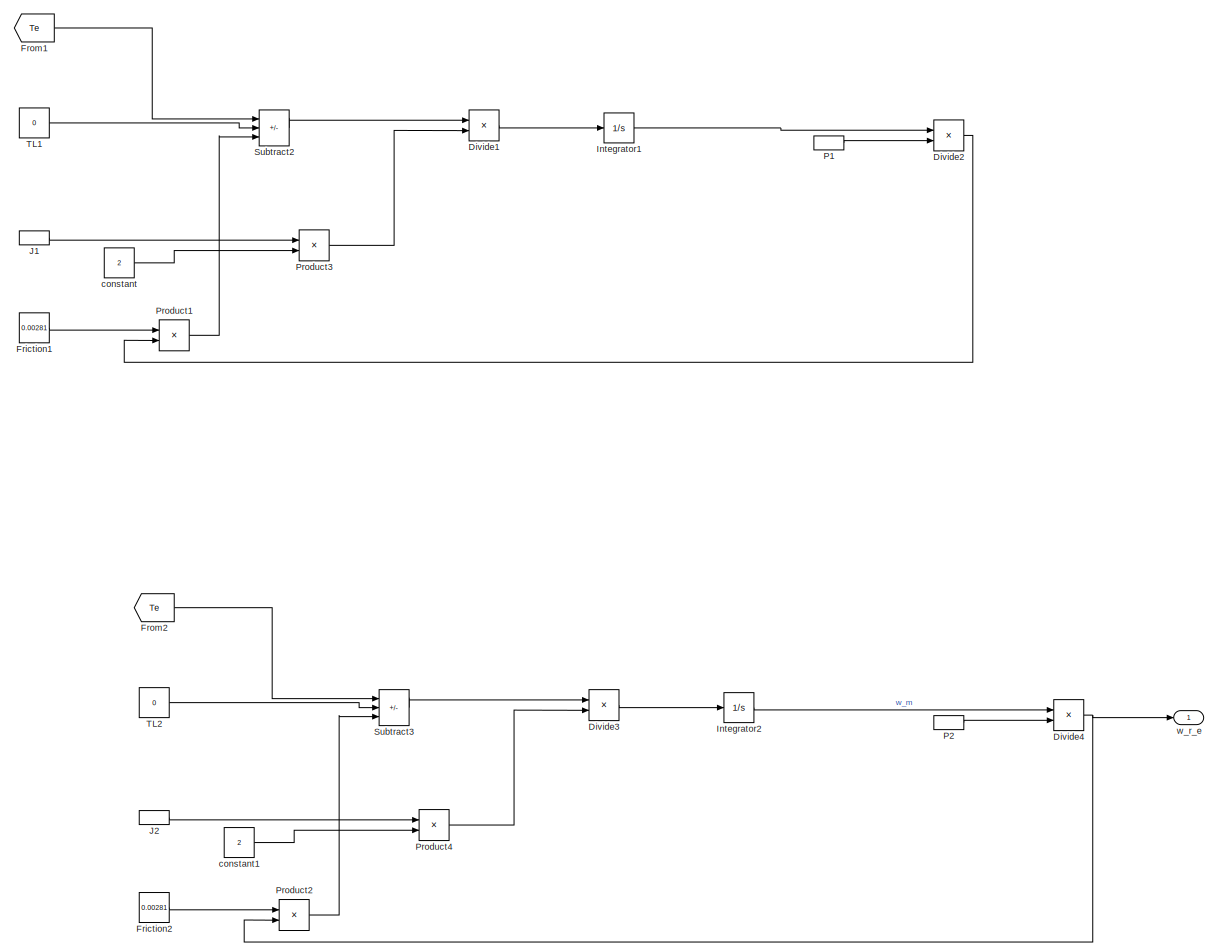
[diagram: first test (g results with feedback and simscape)/Rotor speed1 - part 1/2, left side, full height]
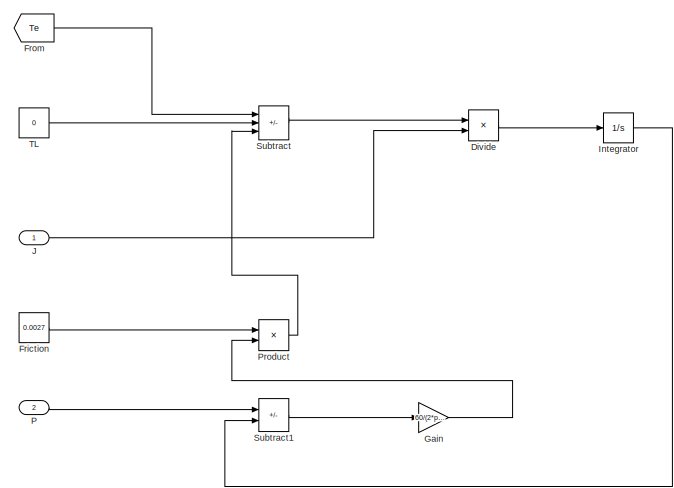
[diagram: first test (g results with feedback and simscape)/Rotor speed1 - part 2/2, top right region]
BLOCK [SubSystem] first test (g results with feedback and simscape)/Rotor speed1
  Ports = [2, 1]
  RequestExecContextInheritance = off
BLOCK [Product] first test (g results with feedback and simscape)/Rotor speed1/Divide
  Commented = on
  Inputs = */
  Ports = [2, 1]
BLOCK [Product] first test (g results with feedback and simscape)/Rotor speed1/Divide1
  Commented = on
  Inputs = */
  Ports = [2, 1]
BLOCK [Product] first test (g results with feedback and simscape)/Rotor speed1/Divide2
  Commented = on
  Inputs = */
  Ports = [2, 1]
BLOCK [Product] first test (g results with feedback and simscape)/Rotor speed1/Divide3
  Inputs = */
  Ports = [2, 1]
BLOCK [Product] first test (g results with feedback and simscape)/Rotor speed1/Divide4
  Inputs = **
  Ports = [2, 1]
BLOCK [Constant] first test (g results with feedback and simscape)/Rotor speed1/Friction
  Commented = on
  Value = 0.0027
BLOCK [Constant] first test (g results with feedback and simscape)/Rotor speed1/Friction1
  Commented = on
  Value = 0.00281
BLOCK [Constant] first test (g results with feedback and simscape)/Rotor speed1/Friction2
  Value = 0.00281
BLOCK [From] first test (g results with feedback and simscape)/Rotor speed1/From
  Commented = on
  GotoTag = Te
  TagVisibility = global
BLOCK [From] first test (g results with feedback and simscape)/Rotor speed1/From1
  Commented = on
  GotoTag = Te
  TagVisibility = global
BLOCK [From] first test (g results with feedback and simscape)/Rotor speed1/From2
  GotoTag = Te
  TagVisibility = global
BLOCK [Gain] first test (g results with feedback and simscape)/Rotor speed1/Gain
  Commented = on
  Gain = 60/(2*pi)
BLOCK [Integrator] first test (g results with feedback and simscape)/Rotor speed1/Integrator
  Commented = on
  Ports = [1, 1]
BLOCK [Integrator] first test (g results with feedback and simscape)/Rotor speed1/Integrator1
  Commented = on
  Ports = [1, 1]
BLOCK [Integrator] first test (g results with feedback and simscape)/Rotor speed1/Integrator2
  Ports = [1, 1]
BLOCK [Inport] first test (g results with feedback and simscape)/Rotor speed1/J
BLOCK [InportShadow] first test (g results with feedback and simscape)/Rotor speed1/J1
BLOCK [InportShadow] first test (g results with feedback and simscape)/Rotor speed1/J2
BLOCK [Inport] first test (g results with feedback and simscape)/Rotor speed1/P
  Port = 2
BLOCK [InportShadow] first test (g results with feedback and simscape)/Rotor speed1/P1
  Port = 2
BLOCK [InportShadow] first test (g results with feedback and simscape)/Rotor speed1/P2
  Port = 2
BLOCK [Product] first test (g results with feedback and simscape)/Rotor speed1/Product
  Commented = on
  Ports = [2, 1]
BLOCK [Product] first test (g results with feedback and simscape)/Rotor speed1/Product1
  Commented = on
  Ports = [2, 1]
BLOCK [Product] first test (g results with feedback and simscape)/Rotor speed1/Product2
  Ports = [2, 1]
BLOCK [Product] first test (g results with feedback and simscape)/Rotor speed1/Product3
  Commented = on
  Ports = [2, 1]
BLOCK [Product] first test (g results with feedback and simscape)/Rotor speed1/Product4
  Ports = [2, 1]
BLOCK [Sum] first test (g results with feedback and simscape)/Rotor speed1/Subtract
  Commented = on
  IconShape = rectangular
  Inputs = +--
  Ports = [3, 1]
BLOCK [Sum] first test (g results with feedback and simscape)/Rotor speed1/Subtract1
  Commented = on
  IconShape = rectangular
  Inputs = +-
  Ports = [2, 1]
BLOCK [Sum] first test (g results with feedback and simscape)/Rotor speed1/Subtract2
  Commented = on
  IconShape = rectangular
  Inputs = +--
  Ports = [3, 1]
BLOCK [Sum] first test (g results with feedback and simscape)/Rotor speed1/Subtract3
  IconShape = rectangular
  Inputs = +--
  Ports = [3, 1]
BLOCK [Constant] first test (g results with feedback and simscape)/Rotor speed1/TL
  Commented = on
  Value = 0
BLOCK [Constant] first test (g results with feedback and simscape)/Rotor speed1/TL1
  Commented = on
  Value = 0
BLOCK [Constant] first test (g results with feedback and simscape)/Rotor speed1/TL2
  Value = 0
BLOCK [Constant] first test (g results with feedback and simscape)/Rotor speed1/constant
  Commented = on
  Value = 2
BLOCK [Constant] first test (g results with feedback and simscape)/Rotor speed1/constant1
  Value = 2
BLOCK [Outport] first test (g results with feedback and simscape)/Rotor speed1/w_r_e
  VectorParamsAs1DForOutWhenUnconnected = off
BLOCK [Constant] first test (g results with feedback and simscape)/Rr 
  Value = 1.06
BLOCK [Constant] first test (g results with feedback and simscape)/Rs (Ohms)
BLOCK [Scope] first test (g results with feedback and simscape)/Scope
  Floating = off
  NumInputPorts = 2
  Ports = [2]
  ScopeSpecificationString = Simulink.scopes.TimeScopeBlockCfg('CurrentConfiguration', extmgr.ConfigurationSet(extmgr.Configuration('Core','General UI',true),extmgr.Configuration('Core','Source UI',true),extmgr.Configuration('Sources','WiredSimulink',true,'DataLoggingVariableName','ScopeData1'),extmgr.Configuration('Visuals','Time Domain',true,'SerializedDisplays',{struct('MinYLimReal','-29.89786','MaxYLimReal','13.59111','YL...<+1475ch>
BLOCK [Scope] first test (g results with feedback and simscape)/Scope1
  Floating = off
  NumInputPorts = 2
  Ports = [2]
  ScopeSpecificationString = Simulink.scopes.TimeScopeBlockCfg('CurrentConfiguration', extmgr.ConfigurationSet(extmgr.Configuration('Core','General UI',true),extmgr.Configuration('Core','Source UI',true),extmgr.Configuration('Sources','WiredSimulink',true,'DataLoggingVariableName','ScopeData2'),extmgr.Configuration('Visuals','Time Domain',true,'SerializedDisplays',{struct('MinYLimReal','-29.87383','MaxYLimReal','14.48571','YL...<+1473ch>
BLOCK [Scope] first test (g results with feedback and simscape)/Scope2
  Floating = off
  NumInputPorts = 1
  Ports = [1]
  ScopeSpecificationString = Simulink.scopes.TimeScopeBlockCfg('CurrentConfiguration', extmgr.ConfigurationSet(extmgr.Configuration('Core','General UI',true),extmgr.Configuration('Core','Source UI',true),extmgr.Configuration('Sources','WiredSimulink',true,'DataLoggingVariableName','ScopeData3'),extmgr.Configuration('Visuals','Time Domain',true,'SerializedDisplays',{struct('MinYLimReal','-31.23412','MaxYLimReal','67.00401','YL...<+1458ch>
BLOCK [Reference] first test (g results with feedback and simscape)/Series RLC Branch  REF=powerlib/Elements/Series RLC Branch
  Ports = [0, 0, 0, 0, 0, 1, 1]
  SourceBlock = powerlib/Elements/Series RLC Branch
  SourceProductBaseCode = PS
  SourceType = Series RLC Branch
BLOCK [Reference] first test (g results with feedback and simscape)/Series RLC Branch1  REF=powerlib/Elements/Series RLC Branch
  Ports = [0, 0, 0, 0, 0, 1, 1]
  SourceBlock = powerlib/Elements/Series RLC Branch
  SourceProductBaseCode = PS
  SourceType = Series RLC Branch
BLOCK [Reference] first test (g results with feedback and simscape)/Series RLC Branch2  REF=powerlib/Elements/Series RLC Branch
  Ports = [0, 0, 0, 0, 0, 1, 1]
  SourceBlock = powerlib/Elements/Series RLC Branch
  SourceProductBaseCode = PS
  SourceType = Series RLC Branch
BLOCK [SubSystem] first test (g results with feedback and simscape)/Stator current
  Ports = [5, 2]
  RequestExecContextInheritance = off
BLOCK [Inport] first test (g results with feedback and simscape)/Stator current/Lm
  Port = 3
BLOCK [Inport] first test (g results with feedback and simscape)/Stator current/Ls
  Port = 2
BLOCK [Inport] first test (g results with feedback and simscape)/Stator current/Rs
BLOCK [SubSystem] first test (g results with feedback and simscape)/Stator current/Stator Flux
  Ports = [3, 2]
  RequestExecContextInheritance = off
BLOCK [Demux] first test (g results with feedback and simscape)/Stator current/Stator Flux/Demux
  Outputs = 3
  Ports = [1, 3]
BLOCK [From] first test (g results with feedback and simscape)/Stator current/Stator Flux/From
  GotoTag = i_ds
  TagVisibility = global
BLOCK [From] first test (g results with feedback and simscape)/Stator current/Stator Flux/From1
  GotoTag = i_qs
  TagVisibility = global
BLOCK [Integrator] first test (g results with feedback and simscape)/Stator current/Stator Flux/Integrator
  Ports = [1, 1]
BLOCK [Integrator] first test (g results with feedback and simscape)/Stator current/Stator Flux/Integrator1
  Ports = [1, 1]
BLOCK [Inport] first test (g results with feedback and simscape)/Stator current/Stator Flux/Rs (Ohms)
BLOCK [InportShadow] first test (g results with feedback and simscape)/Stator current/Stator Flux/Rs (Ohms)1
BLOCK [Scope] first test (g results with feedback and simscape)/Stator current/Stator Flux/Scope
  Floating = off
  NumInputPorts = 2
  Ports = [2]
BLOCK [Sum] first test (g results with feedback and simscape)/Stator current/Stator Flux/Subtract
  IconShape = rectangular
  Inputs = -++
  Ports = [3, 1]
BLOCK [Sum] first test (g results with feedback and simscape)/Stator current/Stator Flux/Subtract1
  IconShape = rectangular
  Inputs = -+-
  Ports = [3, 1]
BLOCK [Terminator] first test (g results with feedback and simscape)/Stator current/Stator Flux/Terminator
BLOCK [Inport] first test (g results with feedback and simscape)/Stator current/Stator Flux/dq0
  Port = 3
BLOCK [Outport] first test (g results with feedback and simscape)/Stator current/Stator Flux/flux_ds
  VectorParamsAs1DForOutWhenUnconnected = off
BLOCK [Outport] first test (g results with feedback and simscape)/Stator current/Stator Flux/flux_qs
  Port = 2
  VectorParamsAs1DForOutWhenUnconnected = off
BLOCK [Product] first test (g results with feedback and simscape)/Stator current/Stator Flux/product
  Inputs = **
  Ports = [2, 1]
BLOCK [Product] first test (g results with feedback and simscape)/Stator current/Stator Flux/product1
  Inputs = **
  Ports = [2, 1]
BLOCK [Product] first test (g results with feedback and simscape)/Stator current/Stator Flux/product2
  Inputs = **
  Ports = [2, 1]
BLOCK [Product] first test (g results with feedback and simscape)/Stator current/Stator Flux/product3
  Inputs = **
  Ports = [2, 1]
BLOCK [Inport] first test (g results with feedback and simscape)/Stator current/Stator Flux/w_s
  Port = 2
BLOCK [InportShadow] first test (g results with feedback and simscape)/Stator current/Stator Flux/w_s1
  Port = 2
BLOCK [SubSystem] first test (g results with feedback and simscape)/Stator current/Stator currents
  Ports = [4, 2]
  RequestExecContextInheritance = off
BLOCK [Sum] first test (g results with feedback and simscape)/Stator current/Stator currents/Add
  IconShape = rectangular
  Ports = [2, 1]
BLOCK [Product] first test (g results with feedback and simscape)/Stator current/Stator currents/Divide
  Inputs = */
  Ports = [2, 1]
BLOCK [Product] first test (g results with feedback and simscape)/Stator current/Stator currents/Divide1
  Inputs = /*
  Ports = [2, 1]
BLOCK [From] first test (g results with feedback and simscape)/Stator current/Stator currents/From
  GotoTag = i_dr
  TagVisibility = global
BLOCK [From] first test (g results with feedback and simscape)/Stator current/Stator currents/From1
  GotoTag = i_qr
  TagVisibility = global
BLOCK [Goto] first test (g results with feedback and simscape)/Stator current/Stator currents/Goto
  GotoTag = i_ds
  TagVisibility = global
BLOCK [Goto] first test (g results with feedback and simscape)/Stator current/Stator currents/Goto1
  GotoTag = i_qs
  TagVisibility = global
BLOCK [Goto] first test (g results with feedback and simscape)/Stator current/Stator currents/Goto2
  GotoTag = i_s_dq
  TagVisibility = global
BLOCK [Inport] first test (g results with feedback and simscape)/Stator current/Stator currents/Lm
  Port = 4
BLOCK [InportShadow] first test (g results with feedback and simscape)/Stator current/Stator currents/Lm1
  Port = 4
BLOCK [Inport] first test (g results with feedback and simscape)/Stator current/Stator currents/Ls
  Port = 3
BLOCK [Mux] first test (g results with feedback and simscape)/Stator current/Stator currents/Mux
  DisplayOption = bar
  Inputs = 2
  Ports = [2, 1]
BLOCK [Product] first test (g results with feedback and simscape)/Stator current/Stator currents/Product
  Ports = [2, 1]
BLOCK [Product] first test (g results with feedback and simscape)/Stator current/Stator currents/Product1
  Ports = [2, 1]
BLOCK [Scope] first test (g results with feedback and simscape)/Stator current/Stator currents/Scope
  Floating = off
  NumInputPorts = 2
  Ports = [2]
BLOCK [Sum] first test (g results with feedback and simscape)/Stator current/Stator currents/Subtract
  IconShape = rectangular
  Inputs = -+
  Ports = [2, 1]
BLOCK [Sum] first test (g results with feedback and simscape)/Stator current/Stator currents/Subtract1
  IconShape = rectangular
  Inputs = -+
  Ports = [2, 1]
BLOCK [Inport] first test (g results with feedback and simscape)/Stator current/Stator currents/flus_ds
BLOCK [Inport] first test (g results with feedback and simscape)/Stator current/Stator currents/flus_qs
  Port = 2
BLOCK [Outport] first test (g results with feedback and simscape)/Stator current/Stator currents/i_ds
  VectorParamsAs1DForOutWhenUnconnected = off
BLOCK [Outport] first test (g results with feedback and simscape)/Stator current/Stator currents/i_qs
  Port = 2
  VectorParamsAs1DForOutWhenUnconnected = off
BLOCK [Inport] first test (g results with feedback and simscape)/Stator current/dq0
  Port = 5
BLOCK [Outport] first test (g results with feedback and simscape)/Stator current/i_ds
  VectorParamsAs1DForOutWhenUnconnected = off
BLOCK [Outport] first test (g results with feedback and simscape)/Stator current/i_qs
  Port = 2
  VectorParamsAs1DForOutWhenUnconnected = off
BLOCK [Inport] first test (g results with feedback and simscape)/Stator current/w_s
  Port = 4
BLOCK [Constant] first test (g results with feedback and simscape)/constant1
  Value = 120
BLOCK [SubSystem] first test (g results with feedback and simscape)/dq
  Ports = [0, 1, 0, 0, 0, 6]
  RequestExecContextInheritance = off
BLOCK [Constant] first test (g results with feedback and simscape)/dq/Constant
  Value = 2*pi*50
BLOCK [Reference] first test (g results with feedback and simscape)/dq/Controlled Current Source  REF=powerlib/Electrical
Sources/Controlled Current Source
  NameLocation = left
  Ports = [1, 0, 0, 0, 0, 1, 1]
  SourceBlock = powerlib/Electrical\nSources/Controlled Current Source
  SourceProductBaseCode = PS
  SourceType = Controlled Current Source
BLOCK [Reference] first test (g results with feedback and simscape)/dq/Controlled Current Source1  REF=powerlib/Electrical
Sources/Controlled Current Source
  NameLocation = left
  Ports = [1, 0, 0, 0, 0, 1, 1]
  SourceBlock = powerlib/Electrical\nSources/Controlled Current Source
  SourceProductBaseCode = PS
  SourceType = Controlled Current Source
BLOCK [Reference] first test (g results with feedback and simscape)/dq/Controlled Current Source2  REF=powerlib/Electrical
Sources/Controlled Current Source
  NameLocation = left
  Ports = [1, 0, 0, 0, 0, 1, 1]
  SourceBlock = powerlib/Electrical\nSources/Controlled Current Source
  SourceProductBaseCode = PS
  SourceType = Controlled Current Source
BLOCK [Demux] first test (g results with feedback and simscape)/dq/Demux
  Outputs = 3
  Ports = [1, 3]
BLOCK [Demux] first test (g results with feedback and simscape)/dq/Demux1
  Outputs = 3
  Ports = [1, 3]
BLOCK [From] first test (g results with feedback and simscape)/dq/From
  GotoTag = i_s_dq
  TagVisibility = global
BLOCK [Mux] first test (g results with feedback and simscape)/dq/Mux
  DisplayOption = bar
  Inputs = 3
  Ports = [3, 1]
BLOCK [Reference] first test (g results with feedback and simscape)/dq/Ramp  REF=simulink/Sources/Ramp
  Ports = [0, 1]
  SourceBlock = simulink/Sources/Ramp
  SourceProductBaseCode = SL
  SourceType = Ramp
BLOCK [Scope] first test (g results with feedback and simscape)/dq/Scope
  Floating = off
  NumInputPorts = 3
  Ports = [3]
  ScopeSpecificationString = Simulink.scopes.TimeScopeBlockCfg('CurrentConfiguration', extmgr.ConfigurationSet(extmgr.Configuration('Core','General UI',true),extmgr.Configuration('Core','Source UI',true),extmgr.Configuration('Sources','WiredSimulink',true,'DataLoggingVariableName','ScopeData1'),extmgr.Configuration('Visuals','Time Domain',true,'SerializedDisplays',{struct('MinYLimReal','332.54828','MaxYLimReal','341.14293','Y...<+2763ch>
BLOCK [Reference] first test (g results with feedback and simscape)/dq/Voltage Measurement  REF=powerlib/Measurements/Voltage Measurement
  Ports = [0, 1, 0, 0, 0, 2]
  SourceBlock = powerlib/Measurements/Voltage Measurement
  SourceProductBaseCode = PS
  SourceType = Voltage Measurement
  UserDataPersistent = on
BLOCK [Reference] first test (g results with feedback and simscape)/dq/Voltage Measurement1  REF=powerlib/Measurements/Voltage Measurement
  Ports = [0, 1, 0, 0, 0, 2]
  SourceBlock = powerlib/Measurements/Voltage Measurement
  SourceProductBaseCode = PS
  SourceType = Voltage Measurement
  UserDataPersistent = on
BLOCK [Reference] first test (g results with feedback and simscape)/dq/Voltage Measurement2  REF=powerlib/Measurements/Voltage Measurement
  Ports = [0, 1, 0, 0, 0, 2]
  SourceBlock = powerlib/Measurements/Voltage Measurement
  SourceProductBaseCode = PS
  SourceType = Voltage Measurement
  UserDataPersistent = on
BLOCK [Reference] first test (g results with feedback and simscape)/dq/abc to dq0  REF=powerlib_meascontrol/Transformations/abc to dq0
  Ports = [2, 1]
  SourceBlock = powerlib_meascontrol/Transformations/abc to dq0
  SourceProductBaseCode = PS
  SourceType = abc to dq0 Transformation
BLOCK [SubSystem] first test (g results with feedback and simscape)/dq/dq to abc
  Ports = [2, 1]
  RequestExecContextInheritance = off
BLOCK [Constant] first test (g results with feedback and simscape)/dq/dq to abc/Constant1
  Value = 0
BLOCK [Demux] first test (g results with feedback and simscape)/dq/dq to abc/Demux1
  Outputs = 2
  Ports = [1, 2]
BLOCK [Mux] first test (g results with feedback and simscape)/dq/dq to abc/Mux1
  DisplayOption = bar
  Inputs = 3
  Ports = [3, 1]
BLOCK [Outport] first test (g results with feedback and simscape)/dq/dq to abc/abc
  VectorParamsAs1DForOutWhenUnconnected = off
BLOCK [Reference] first test (g results with feedback and simscape)/dq/dq to abc/dq0 to abc  REF=powerlib_meascontrol/Transformations/dq0 to abc
  Ports = [2, 1]
  SourceBlock = powerlib_meascontrol/Transformations/dq0 to abc
  SourceProductBaseCode = PS
  SourceType = dq0 to abc Transformation
BLOCK [Inport] first test (g results with feedback and simscape)/dq/dq to abc/i_s_dq
  Port = 2
BLOCK [Inport] first test (g results with feedback and simscape)/dq/dq to abc/w_t
BLOCK [Outport] first test (g results with feedback and simscape)/dq/dq0
  VectorParamsAs1DForOutWhenUnconnected = off
BLOCK [Product] first test (g results with feedback and simscape)/dq/product3
  Inputs = **
  Ports = [2, 1]
BLOCK [PMIOPort] first test (g results with feedback and simscape)/dq/v_a+
  Side = Left
BLOCK [PMIOPort] first test (g results with feedback and simscape)/dq/v_a-
  Port = 2
  Side = Left
BLOCK [PMIOPort] first test (g results with feedback and simscape)/dq/v_b+
  Port = 3
  Side = Left
BLOCK [PMIOPort] first test (g results with feedback and simscape)/dq/v_b-
  Port = 4
  Side = Left
BLOCK [PMIOPort] first test (g results with feedback and simscape)/dq/v_c+
  Port = 5
  Side = Left
BLOCK [PMIOPort] first test (g results with feedback and simscape)/dq/v_c-
  Port = 6
  Side = Left
BLOCK [Constant] first test (g results with feedback and simscape)/f1
  Value = 60
BLOCK [Reference] first test (g results with feedback and simscape)/powergui  REF=powerlib/powergui
  Ports = []
  Priority = 1
  SourceBlock = powerlib/powergui
  SourceProductBaseCode = PS
  SourceType = PSB option menu block
BLOCK [Gain] first test (g results with feedback and simscape)/rpm to rad//s
  Gain = 2*pi/60
BLOCK [SubSystem] first test (g results with simscape but without feedback)
  Commented = on
  Ports = [0, 1]
  RequestExecContextInheritance = off
BLOCK [Reference] first test (g results with simscape but without feedback)/AC Voltage Source  REF=powerlib/Electrical
Sources/AC Voltage Source
  NameLocation = right
  Ports = [0, 0, 0, 0, 0, 1, 1]
  SourceBlock = powerlib/Electrical\nSources/AC Voltage Source
  SourceProductBaseCode = PS
  SourceType = AC Voltage Source
BLOCK [Reference] first test (g results with simscape but without feedback)/AC Voltage Source1  REF=powerlib/Electrical
Sources/AC Voltage Source
  NameLocation = right
  Ports = [0, 0, 0, 0, 0, 1, 1]
  SourceBlock = powerlib/Electrical\nSources/AC Voltage Source
  SourceProductBaseCode = PS
  SourceType = AC Voltage Source
BLOCK [Reference] first test (g results with simscape but without feedback)/AC Voltage Source2  REF=powerlib/Electrical
Sources/AC Voltage Source
  NameLocation = right
  Ports = [0, 0, 0, 0, 0, 1, 1]
  SourceBlock = powerlib/Electrical\nSources/AC Voltage Source
  SourceProductBaseCode = PS
  SourceType = AC Voltage Source
BLOCK [SubSystem] first test (g results with simscape but without feedback)/Electromagnetic Torque
  Ports = [3, 1]
  RequestExecContextInheritance = off
BLOCK [Constant] first test (g results with simscape but without feedback)/Electromagnetic Torque/Constant
  Value = 3/4
BLOCK [From] first test (g results with simscape but without feedback)/Electromagnetic Torque/From
  GotoTag = flux_dr
  TagVisibility = global
BLOCK [From] first test (g results with simscape but without feedback)/Electromagnetic Torque/From1
  GotoTag = flux_qr
  TagVisibility = global
BLOCK [Goto] first test (g results with simscape but without feedback)/Electromagnetic Torque/Goto
  GotoTag = Te
  TagVisibility = global
BLOCK [Inport] first test (g results with simscape but without feedback)/Electromagnetic Torque/P
  Port = 3
BLOCK [Product] first test (g results with simscape but without feedback)/Electromagnetic Torque/Product
  Ports = [2, 1]
BLOCK [Product] first test (g results with simscape but without feedback)/Electromagnetic Torque/Product1
  Ports = [2, 1]
BLOCK [Product] first test (g results with simscape but without feedback)/Electromagnetic Torque/Product2
  Ports = [2, 1]
BLOCK [Product] first test (g results with simscape but without feedback)/Electromagnetic Torque/Product3
  Ports = [2, 1]
BLOCK [Sum] first test (g results with simscape but without feedback)/Electromagnetic Torque/Subtract
  IconShape = rectangular
  Inputs = +-
  Ports = [2, 1]
BLOCK [Outport] first test (g results with simscape but without feedback)/Electromagnetic Torque/Te
  VectorParamsAs1DForOutWhenUnconnected = off
BLOCK [Inport] first test (g results with simscape but without feedback)/Electromagnetic Torque/i_ds
BLOCK [Inport] first test (g results with simscape but without feedback)/Electromagnetic Torque/i_qs
  Port = 2
BLOCK [From] first test (g results with simscape but without feedback)/From
  GotoTag = w_s
  TagVisibility = global
BLOCK [Constant] first test (g results with simscape but without feedback)/J
  Value = 0.0155
BLOCK [Constant] first test (g results with simscape but without feedback)/Llr (H)
  Value = 0.009061
BLOCK [Constant] first test (g results with simscape but without feedback)/Lm (H)
  Value = 0.1485
BLOCK [Constant] first test (g results with simscape but without feedback)/Ls (H)
  Value = 0.003883
BLOCK [Outport] first test (g results with simscape but without feedback)/Out1
  VectorParamsAs1DForOutWhenUnconnected = off
BLOCK [Constant] first test (g results with simscape but without feedback)/Poles
  Value = 2
BLOCK [Constant] first test (g results with simscape but without feedback)/Power (hp)
  Value = 5
BLOCK [SubSystem] first test (g results with simscape but without feedback)/Rotor current
  Ports = [5, 2]
  RequestExecContextInheritance = off
BLOCK [Inport] first test (g results with simscape but without feedback)/Rotor current/Lm
  Port = 3
BLOCK [Inport] first test (g results with simscape but without feedback)/Rotor current/Lr
  Port = 2
BLOCK [SubSystem] first test (g results with simscape but without feedback)/Rotor current/Rotor Flux
  Ports = [2, 2]
  RequestExecContextInheritance = off
BLOCK [From] first test (g results with simscape but without feedback)/Rotor current/Rotor Flux/From
  GotoTag = i_dr
  TagVisibility = global
BLOCK [From] first test (g results with simscape but without feedback)/Rotor current/Rotor Flux/From1
  GotoTag = i_qr
  TagVisibility = global
BLOCK [Goto] first test (g results with simscape but without feedback)/Rotor current/Rotor Flux/Goto
  GotoTag = flux_dr
  TagVisibility = global
BLOCK [Goto] first test (g results with simscape but without feedback)/Rotor current/Rotor Flux/Goto1
  GotoTag = flux_qr
  TagVisibility = global
BLOCK [Integrator] first test (g results with simscape but without feedback)/Rotor current/Rotor Flux/Integrator
  Ports = [1, 1]
BLOCK [Integrator] first test (g results with simscape but without feedback)/Rotor current/Rotor Flux/Integrator1
  Ports = [1, 1]
BLOCK [Inport] first test (g results with simscape but without feedback)/Rotor current/Rotor Flux/Rr (Ohms)
BLOCK [InportShadow] first test (g results with simscape but without feedback)/Rotor current/Rotor Flux/Rr (Ohms)1
BLOCK [Sum] first test (g results with simscape but without feedback)/Rotor current/Rotor Flux/Subtract
  IconShape = rectangular
  Inputs = -+
  Ports = [2, 1]
BLOCK [Sum] first test (g results with simscape but without feedback)/Rotor current/Rotor Flux/Subtract1
  IconShape = rectangular
  Inputs = --
  Ports = [2, 1]
BLOCK [Outport] first test (g results with simscape but without feedback)/Rotor current/Rotor Flux/flux_dr
  VectorParamsAs1DForOutWhenUnconnected = off
BLOCK [Outport] first test (g results with simscape but without feedback)/Rotor current/Rotor Flux/flux_qr
  Port = 2
  VectorParamsAs1DForOutWhenUnconnected = off
BLOCK [Product] first test (g results with simscape but without feedback)/Rotor current/Rotor Flux/product
  Inputs = **
  Ports = [2, 1]
BLOCK [Product] first test (g results with simscape but without feedback)/Rotor current/Rotor Flux/product1
  Inputs = **
  Ports = [2, 1]
BLOCK [Product] first test (g results with simscape but without feedback)/Rotor current/Rotor Flux/product2
  Inputs = **
  Ports = [2, 1]
BLOCK [Product] first test (g results with simscape but without feedback)/Rotor current/Rotor Flux/product3
  Inputs = **
  Ports = [2, 1]
BLOCK [Inport] first test (g results with simscape but without feedback)/Rotor current/Rotor Flux/w_s1
  Port = 2
BLOCK [SubSystem] first test (g results with simscape but without feedback)/Rotor current/Rotor currents
  Ports = [4, 2]
  RequestExecContextInheritance = off
BLOCK [Sum] first test (g results with simscape but without feedback)/Rotor current/Rotor currents/Add
  IconShape = rectangular
  Ports = [2, 1]
BLOCK [Product] first test (g results with simscape but without feedback)/Rotor current/Rotor currents/Divide
  Inputs = */
  Ports = [2, 1]
BLOCK [Product] first test (g results with simscape but without feedback)/Rotor current/Rotor currents/Divide1
  Inputs = /*
  Ports = [2, 1]
BLOCK [From] first test (g results with simscape but without feedback)/Rotor current/Rotor currents/From
  GotoTag = i_ds
  TagVisibility = global
BLOCK [From] first test (g results with simscape but without feedback)/Rotor current/Rotor currents/From1
  GotoTag = i_qs
  TagVisibility = global
BLOCK [Goto] first test (g results with simscape but without feedback)/Rotor current/Rotor currents/Goto
  GotoTag = i_dr
  TagVisibility = global
BLOCK [Goto] first test (g results with simscape but without feedback)/Rotor current/Rotor currents/Goto1
  GotoTag = i_qr
  TagVisibility = global
BLOCK [Inport] first test (g results with simscape but without feedback)/Rotor current/Rotor currents/Lm
  Port = 4
BLOCK [InportShadow] first test (g results with simscape but without feedback)/Rotor current/Rotor currents/Lm1
  Port = 4
BLOCK [Inport] first test (g results with simscape but without feedback)/Rotor current/Rotor currents/Lr
  Port = 3
BLOCK [Product] first test (g results with simscape but without feedback)/Rotor current/Rotor currents/Product
  Ports = [2, 1]
BLOCK [Product] first test (g results with simscape but without feedback)/Rotor current/Rotor currents/Product1
  Ports = [2, 1]
BLOCK [Scope] first test (g results with simscape but without feedback)/Rotor current/Rotor currents/Scope
  Floating = off
  NumInputPorts = 2
  Ports = [2]
BLOCK [Sum] first test (g results with simscape but without feedback)/Rotor current/Rotor currents/Subtract
  IconShape = rectangular
  Inputs = -+
  Ports = [2, 1]
BLOCK [Sum] first test (g results with simscape but without feedback)/Rotor current/Rotor currents/Subtract1
  IconShape = rectangular
  Inputs = -+
  Ports = [2, 1]
BLOCK [Inport] first test (g results with simscape but without feedback)/Rotor current/Rotor currents/flus_qr
  Port = 2
BLOCK [Inport] first test (g results with simscape but without feedback)/Rotor current/Rotor currents/flux_dr
BLOCK [Outport] first test (g results with simscape but without feedback)/Rotor current/Rotor currents/i_dr
  VectorParamsAs1DForOutWhenUnconnected = off
BLOCK [Outport] first test (g results with simscape but without feedback)/Rotor current/Rotor currents/i_qr
  Port = 2
  VectorParamsAs1DForOutWhenUnconnected = off
BLOCK [Inport] first test (g results with simscape but without feedback)/Rotor current/Rr
BLOCK [Sum] first test (g results with simscape but without feedback)/Rotor current/Subtract
  IconShape = rectangular
  Inputs = +-
  Ports = [2, 1]
BLOCK [Outport] first test (g results with simscape but without feedback)/Rotor current/i_dr
  VectorParamsAs1DForOutWhenUnconnected = off
BLOCK [Outport] first test (g results with simscape but without feedback)/Rotor current/i_qr
  Port = 2
  VectorParamsAs1DForOutWhenUnconnected = off
BLOCK [Inport] first test (g results with simscape but without feedback)/Rotor current/w_r
  Port = 5
BLOCK [Inport] first test (g results with simscape but without feedback)/Rotor current/w_s
  Port = 4
BLOCK [SubSystem] first test (g results with simscape but without feedback)/Rotor speed
  Commented = on
  Ports = [1, 1]
  RequestExecContextInheritance = off
BLOCK [Product] first test (g results with simscape but without feedback)/Rotor speed/Divide
  Inputs = */
  Ports = [2, 1]
BLOCK [From] first test (g results with simscape but without feedback)/Rotor speed/From
  GotoTag = Te
  TagVisibility = global
BLOCK [Integrator] first test (g results with simscape but without feedback)/Rotor speed/Integrator
  Ports = [1, 1]
BLOCK [Inport] first test (g results with simscape but without feedback)/Rotor speed/J
BLOCK [Sum] first test (g results with simscape but without feedback)/Rotor speed/Subtract
  IconShape = rectangular
  Inputs = +--
  Ports = [3, 1]
BLOCK [Constant] first test (g results with simscape but without feedback)/Rotor speed/TL
  Value = 0
BLOCK [Outport] first test (g results with simscape but without feedback)/Rotor speed/w_r
  VectorParamsAs1DForOutWhenUnconnected = off
BLOCK [SubSystem] first test (g results with simscape but without feedback)/Rotor speed1
  Ports = [2, 1]
  RequestExecContextInheritance = off
BLOCK [Product] first test (g results with simscape but without feedback)/Rotor speed1/Divide
  Commented = on
  Inputs = */
  Ports = [2, 1]
BLOCK [Product] first test (g results with simscape but without feedback)/Rotor speed1/Divide1
  Inputs = */
  Ports = [2, 1]
BLOCK [Product] first test (g results with simscape but without feedback)/Rotor speed1/Divide2
  Inputs = */
  Ports = [2, 1]
BLOCK [Constant] first test (g results with simscape but without feedback)/Rotor speed1/Friction
  Commented = on
  Value = 0.0027
BLOCK [Constant] first test (g results with simscape but without feedback)/Rotor speed1/Friction1
  Value = 0.00281
BLOCK [From] first test (g results with simscape but without feedback)/Rotor speed1/From
  Commented = on
  GotoTag = Te
  TagVisibility = global
BLOCK [From] first test (g results with simscape but without feedback)/Rotor speed1/From1
  GotoTag = Te
  TagVisibility = global
BLOCK [Gain] first test (g results with simscape but without feedback)/Rotor speed1/Gain
  Commented = on
  Gain = 60/(2*pi)
BLOCK [Integrator] first test (g results with simscape but without feedback)/Rotor speed1/Integrator
  Commented = on
  Ports = [1, 1]
BLOCK [Integrator] first test (g results with simscape but without feedback)/Rotor speed1/Integrator1
  Ports = [1, 1]
BLOCK [Inport] first test (g results with simscape but without feedback)/Rotor speed1/J
BLOCK [InportShadow] first test (g results with simscape but without feedback)/Rotor speed1/J1
BLOCK [Inport] first test (g results with simscape but without feedback)/Rotor speed1/P
  Port = 2
BLOCK [InportShadow] first test (g results with simscape but without feedback)/Rotor speed1/P1
  Port = 2
BLOCK [Product] first test (g results with simscape but without feedback)/Rotor speed1/Product
  Commented = on
  Ports = [2, 1]
BLOCK [Product] first test (g results with simscape but without feedback)/Rotor speed1/Product1
  Ports = [2, 1]
BLOCK [Product] first test (g results with simscape but without feedback)/Rotor speed1/Product3
  Ports = [2, 1]
BLOCK [Sum] first test (g results with simscape but without feedback)/Rotor speed1/Subtract
  Commented = on
  IconShape = rectangular
  Inputs = +--
  Ports = [3, 1]
BLOCK [Sum] first test (g results with simscape but without feedback)/Rotor speed1/Subtract1
  Commented = on
  IconShape = rectangular
  Inputs = +-
  Ports = [2, 1]
BLOCK [Sum] first test (g results with simscape but without feedback)/Rotor speed1/Subtract2
  IconShape = rectangular
  Inputs = +--
  Ports = [3, 1]
BLOCK [Constant] first test (g results with simscape but without feedback)/Rotor speed1/TL
  Commented = on
  Value = 0
BLOCK [Constant] first test (g results with simscape but without feedback)/Rotor speed1/TL1
  Value = 0
BLOCK [Constant] first test (g results with simscape but without feedback)/Rotor speed1/constant
  Value = 2
BLOCK [Outport] first test (g results with simscape but without feedback)/Rotor speed1/w_r_e
  VectorParamsAs1DForOutWhenUnconnected = off
BLOCK [Constant] first test (g results with simscape but without feedback)/Rr 
  Value = 1.06
BLOCK [Constant] first test (g results with simscape but without feedback)/Rs (Ohms)
BLOCK [Scope] first test (g results with simscape but without feedback)/Scope
  Floating = off
  NumInputPorts = 2
  Ports = [2]
  ScopeSpecificationString = Simulink.scopes.TimeScopeBlockCfg('CurrentConfiguration', extmgr.ConfigurationSet(extmgr.Configuration('Core','General UI',true),extmgr.Configuration('Core','Source UI',true),extmgr.Configuration('Sources','WiredSimulink',true,'DataLoggingVariableName','ScopeData1'),extmgr.Configuration('Visuals','Time Domain',true,'SerializedDisplays',{struct('MinYLimReal','-100.5967','MaxYLimReal','84.42843','YL...<+1477ch>
BLOCK [Scope] first test (g results with simscape but without feedback)/Scope1
  Floating = off
  NumInputPorts = 2
  Ports = [2]
  ScopeSpecificationString = Simulink.scopes.TimeScopeBlockCfg('CurrentConfiguration', extmgr.ConfigurationSet(extmgr.Configuration('Core','General UI',true),extmgr.Configuration('Core','Source UI',true),extmgr.Configuration('Sources','WiredSimulink',true,'DataLoggingVariableName','ScopeData2'),extmgr.Configuration('Visuals','Time Domain',true,'SerializedDisplays',{struct('MinYLimReal','-78.21771','MaxYLimReal','90.74948','YL...<+1473ch>
BLOCK [Scope] first test (g results with simscape but without feedback)/Scope2
  Floating = off
  NumInputPorts = 1
  Ports = [1]
  ScopeSpecificationString = Simulink.scopes.TimeScopeBlockCfg('CurrentConfiguration', extmgr.ConfigurationSet(extmgr.Configuration('Core','General UI',true),extmgr.Configuration('Core','Source UI',true),extmgr.Configuration('Sources','WiredSimulink',true,'DataLoggingVariableName','ScopeData3'),extmgr.Configuration('Visuals','Time Domain',true,'SerializedDisplays',{struct('MinYLimReal','-42.64333','MaxYLimReal','102.62596','Y...<+1440ch>
BLOCK [Reference] first test (g results with simscape but without feedback)/Series RLC Branch  REF=powerlib/Elements/Series RLC Branch
  Ports = [0, 0, 0, 0, 0, 1, 1]
  SourceBlock = powerlib/Elements/Series RLC Branch
  SourceProductBaseCode = PS
  SourceType = Series RLC Branch
BLOCK [Reference] first test (g results with simscape but without feedback)/Series RLC Branch1  REF=powerlib/Elements/Series RLC Branch
  Ports = [0, 0, 0, 0, 0, 1, 1]
  SourceBlock = powerlib/Elements/Series RLC Branch
  SourceProductBaseCode = PS
  SourceType = Series RLC Branch
BLOCK [Reference] first test (g results with simscape but without feedback)/Series RLC Branch2  REF=powerlib/Elements/Series RLC Branch
  Ports = [0, 0, 0, 0, 0, 1, 1]
  SourceBlock = powerlib/Elements/Series RLC Branch
  SourceProductBaseCode = PS
  SourceType = Series RLC Branch
BLOCK [SubSystem] first test (g results with simscape but without feedback)/Stator current
  Ports = [5, 2]
  RequestExecContextInheritance = off
BLOCK [Inport] first test (g results with simscape but without feedback)/Stator current/Lm
  Port = 3
BLOCK [Inport] first test (g results with simscape but without feedback)/Stator current/Ls
  Port = 2
BLOCK [Inport] first test (g results with simscape but without feedback)/Stator current/Rs
BLOCK [SubSystem] first test (g results with simscape but without feedback)/Stator current/Stator Flux
  Ports = [3, 2]
  RequestExecContextInheritance = off
BLOCK [Demux] first test (g results with simscape but without feedback)/Stator current/Stator Flux/Demux
  Outputs = 3
  Ports = [1, 3]
BLOCK [From] first test (g results with simscape but without feedback)/Stator current/Stator Flux/From
  GotoTag = i_ds
  TagVisibility = global
BLOCK [From] first test (g results with simscape but without feedback)/Stator current/Stator Flux/From1
  GotoTag = i_qs
  TagVisibility = global
BLOCK [Integrator] first test (g results with simscape but without feedback)/Stator current/Stator Flux/Integrator
  Ports = [1, 1]
BLOCK [Integrator] first test (g results with simscape but without feedback)/Stator current/Stator Flux/Integrator1
  Ports = [1, 1]
BLOCK [Inport] first test (g results with simscape but without feedback)/Stator current/Stator Flux/Rs (Ohms)
BLOCK [InportShadow] first test (g results with simscape but without feedback)/Stator current/Stator Flux/Rs (Ohms)1
BLOCK [Scope] first test (g results with simscape but without feedback)/Stator current/Stator Flux/Scope
  Floating = off
  NumInputPorts = 2
  Ports = [2]
BLOCK [Sum] first test (g results with simscape but without feedback)/Stator current/Stator Flux/Subtract
  IconShape = rectangular
  Inputs = -++
  Ports = [3, 1]
BLOCK [Sum] first test (g results with simscape but without feedback)/Stator current/Stator Flux/Subtract1
  IconShape = rectangular
  Inputs = -+-
  Ports = [3, 1]
BLOCK [Terminator] first test (g results with simscape but without feedback)/Stator current/Stator Flux/Terminator
BLOCK [Inport] first test (g results with simscape but without feedback)/Stator current/Stator Flux/dq0
  Port = 3
BLOCK [Outport] first test (g results with simscape but without feedback)/Stator current/Stator Flux/flux_ds
  VectorParamsAs1DForOutWhenUnconnected = off
BLOCK [Outport] first test (g results with simscape but without feedback)/Stator current/Stator Flux/flux_qs
  Port = 2
  VectorParamsAs1DForOutWhenUnconnected = off
BLOCK [Product] first test (g results with simscape but without feedback)/Stator current/Stator Flux/product
  Inputs = **
  Ports = [2, 1]
BLOCK [Product] first test (g results with simscape but without feedback)/Stator current/Stator Flux/product1
  Inputs = **
  Ports = [2, 1]
BLOCK [Product] first test (g results with simscape but without feedback)/Stator current/Stator Flux/product2
  Inputs = **
  Ports = [2, 1]
BLOCK [Product] first test (g results with simscape but without feedback)/Stator current/Stator Flux/product3
  Inputs = **
  Ports = [2, 1]
BLOCK [Inport] first test (g results with simscape but without feedback)/Stator current/Stator Flux/w_s
  Port = 2
BLOCK [InportShadow] first test (g results with simscape but without feedback)/Stator current/Stator Flux/w_s1
  Port = 2
BLOCK [SubSystem] first test (g results with simscape but without feedback)/Stator current/Stator currents
  Ports = [4, 2]
  RequestExecContextInheritance = off
BLOCK [Sum] first test (g results with simscape but without feedback)/Stator current/Stator currents/Add
  IconShape = rectangular
  Ports = [2, 1]
BLOCK [Product] first test (g results with simscape but without feedback)/Stator current/Stator currents/Divide
  Inputs = */
  Ports = [2, 1]
BLOCK [Product] first test (g results with simscape but without feedback)/Stator current/Stator currents/Divide1
  Inputs = /*
  Ports = [2, 1]
BLOCK [From] first test (g results with simscape but without feedback)/Stator current/Stator currents/From
  GotoTag = i_dr
  TagVisibility = global
BLOCK [From] first test (g results with simscape but without feedback)/Stator current/Stator currents/From1
  GotoTag = i_qr
  TagVisibility = global
BLOCK [Goto] first test (g results with simscape but without feedback)/Stator current/Stator currents/Goto
  GotoTag = i_ds
  TagVisibility = global
BLOCK [Goto] first test (g results with simscape but without feedback)/Stator current/Stator currents/Goto1
  GotoTag = i_qs
  TagVisibility = global
BLOCK [Goto] first test (g results with simscape but without feedback)/Stator current/Stator currents/Goto2
  GotoTag = i_s_dq
  TagVisibility = global
BLOCK [Inport] first test (g results with simscape but without feedback)/Stator current/Stator currents/Lm
  Port = 4
BLOCK [InportShadow] first test (g results with simscape but without feedback)/Stator current/Stator currents/Lm1
  Port = 4
BLOCK [Inport] first test (g results with simscape but without feedback)/Stator current/Stator currents/Ls
  Port = 3
BLOCK [Mux] first test (g results with simscape but without feedback)/Stator current/Stator currents/Mux
  DisplayOption = bar
  Inputs = 2
  Ports = [2, 1]
BLOCK [Product] first test (g results with simscape but without feedback)/Stator current/Stator currents/Product
  Ports = [2, 1]
BLOCK [Product] first test (g results with simscape but without feedback)/Stator current/Stator currents/Product1
  Ports = [2, 1]
BLOCK [Scope] first test (g results with simscape but without feedback)/Stator current/Stator currents/Scope
  Floating = off
  NumInputPorts = 2
  Ports = [2]
BLOCK [Sum] first test (g results with simscape but without feedback)/Stator current/Stator currents/Subtract
  IconShape = rectangular
  Inputs = -+
  Ports = [2, 1]
BLOCK [Sum] first test (g results with simscape but without feedback)/Stator current/Stator currents/Subtract1
  IconShape = rectangular
  Inputs = -+
  Ports = [2, 1]
BLOCK [Inport] first test (g results with simscape but without feedback)/Stator current/Stator currents/flus_ds
BLOCK [Inport] first test (g results with simscape but without feedback)/Stator current/Stator currents/flus_qs
  Port = 2
BLOCK [Outport] first test (g results with simscape but without feedback)/Stator current/Stator currents/i_ds
  VectorParamsAs1DForOutWhenUnconnected = off
BLOCK [Outport] first test (g results with simscape but without feedback)/Stator current/Stator currents/i_qs
  Port = 2
  VectorParamsAs1DForOutWhenUnconnected = off
BLOCK [Inport] first test (g results with simscape but without feedback)/Stator current/dq0
  Port = 5
BLOCK [Outport] first test (g results with simscape but without feedback)/Stator current/i_ds
  VectorParamsAs1DForOutWhenUnconnected = off
BLOCK [Outport] first test (g results with simscape but without feedback)/Stator current/i_qs
  Port = 2
  VectorParamsAs1DForOutWhenUnconnected = off
BLOCK [Inport] first test (g results with simscape but without feedback)/Stator current/w_s
  Port = 4
BLOCK [SubSystem] first test (g results with simscape but without feedback)/dq
  Ports = [1, 1, 0, 0, 0, 6]
  RequestExecContextInheritance = off
BLOCK [Demux] first test (g results with simscape but without feedback)/dq/Demux1
  Outputs = 3
  Ports = [1, 3]
BLOCK [Mux] first test (g results with simscape but without feedback)/dq/Mux
  DisplayOption = bar
  Inputs = 3
  Ports = [3, 1]
BLOCK [Inport] first test (g results with simscape but without feedback)/dq/P
BLOCK [Scope] first test (g results with simscape but without feedback)/dq/Scope
  Floating = off
  NumInputPorts = 3
  Ports = [3]
  ScopeSpecificationString = Simulink.scopes.TimeScopeBlockCfg('CurrentConfiguration', extmgr.ConfigurationSet(extmgr.Configuration('Core','General UI',true),extmgr.Configuration('Core','Source UI',true),extmgr.Configuration('Sources','WiredSimulink',true,'DataLoggingVariableName','ScopeData1'),extmgr.Configuration('Visuals','Time Domain',true,'SerializedDisplays',{struct('MinYLimReal','337.74946','MaxYLimReal','341.98965','Y...<+2765ch>
BLOCK [SubSystem] first test (g results with simscape but without feedback)/dq/Subsystem
  Ports = [1, 1]
  RequestExecContextInheritance = off
BLOCK [Gain] first test (g results with simscape but without feedback)/dq/Subsystem/1//60
  Gain = 1/60
BLOCK [Goto] first test (g results with simscape but without feedback)/dq/Subsystem/Goto
  GotoTag = w_s
  TagVisibility = global
BLOCK [Integrator] first test (g results with simscape but without feedback)/dq/Subsystem/Integrator1
  Ports = [1, 1]
BLOCK [Math] first test (g results with simscape but without feedback)/dq/Subsystem/Math Function
  Operator = rem
  Ports = [2, 1]
  SignedPower = on
BLOCK [Inport] first test (g results with simscape but without feedback)/dq/Subsystem/P
BLOCK [Product] first test (g results with simscape but without feedback)/dq/Subsystem/Product
  Ports = [2, 1]
BLOCK [Product] first test (g results with simscape but without feedback)/dq/Subsystem/Product1
  Ports = [2, 1]
BLOCK [Constant] first test (g results with simscape but without feedback)/dq/Subsystem/Two Pi
  Value = 2*pi
BLOCK [Constant] first test (g results with simscape but without feedback)/dq/Subsystem/w_s (rpm)
  Value = 1500
BLOCK [Outport] first test (g results with simscape but without feedback)/dq/Subsystem/w_t
  VectorParamsAs1DForOutWhenUnconnected = off
BLOCK [Reference] first test (g results with simscape but without feedback)/dq/Voltage Measurement  REF=powerlib/Measurements/Voltage Measurement
  Ports = [0, 1, 0, 0, 0, 2]
  SourceBlock = powerlib/Measurements/Voltage Measurement
  SourceProductBaseCode = PS
  SourceType = Voltage Measurement
  UserDataPersistent = on
BLOCK [Reference] first test (g results with simscape but without feedback)/dq/Voltage Measurement1  REF=powerlib/Measurements/Voltage Measurement
  Ports = [0, 1, 0, 0, 0, 2]
  SourceBlock = powerlib/Measurements/Voltage Measurement
  SourceProductBaseCode = PS
  SourceType = Voltage Measurement
  UserDataPersistent = on
BLOCK [Reference] first test (g results with simscape but without feedback)/dq/Voltage Measurement2  REF=powerlib/Measurements/Voltage Measurement
  Ports = [0, 1, 0, 0, 0, 2]
  SourceBlock = powerlib/Measurements/Voltage Measurement
  SourceProductBaseCode = PS
  SourceType = Voltage Measurement
  UserDataPersistent = on
BLOCK [Reference] first test (g results with simscape but without feedback)/dq/abc to dq0  REF=powerlib_meascontrol/Transformations/abc to dq0
  Ports = [2, 1]
  SourceBlock = powerlib_meascontrol/Transformations/abc to dq0
  SourceProductBaseCode = PS
  SourceType = abc to dq0 Transformation
BLOCK [Outport] first test (g results with simscape but without feedback)/dq/dq0
  VectorParamsAs1DForOutWhenUnconnected = off
BLOCK [PMIOPort] first test (g results with simscape but without feedback)/dq/v_a+
  Side = Left
BLOCK [PMIOPort] first test (g results with simscape but without feedback)/dq/v_a-
  Port = 2
  Side = Left
BLOCK [PMIOPort] first test (g results with simscape but without feedback)/dq/v_b+
  Port = 3
  Side = Left
BLOCK [PMIOPort] first test (g results with simscape but without feedback)/dq/v_b-
  Port = 4
  Side = Left
BLOCK [PMIOPort] first test (g results with simscape but without feedback)/dq/v_c+
  Port = 5
  Side = Left
BLOCK [PMIOPort] first test (g results with simscape but without feedback)/dq/v_c-
  Port = 6
  Side = Left
BLOCK [Reference] first test (g results with simscape but without feedback)/powergui  REF=powerlib/powergui
  Ports = []
  Priority = 1
  SourceBlock = powerlib/powergui
  SourceProductBaseCode = PS
  SourceType = PSB option menu block
BLOCK [SubSystem] test
  Commented = on
  Ports = []
  RequestExecContextInheritance = off
BLOCK [Reference] test/Asynchronous Machine pu Units  REF=powerlib/Machines/Asynchronous Machine
pu Units
  Commented = on
  Ports = [1, 1, 0, 0, 0, 3]
  SourceBlock = powerlib/Machines/Asynchronous Machine\npu Units
  SourceProductBaseCode = PS
  SourceType = Asynchronous Machine
BLOCK [Constant] test/Frictional Torque Constant (Nms)
  Value = 0.0027
BLOCK [SubSystem] test/Induction Machine
  Ports = [3, 1]
  RequestExecContextInheritance = off
BLOCK [Constant] test/Induction Machine/Constant
  Value = 120
BLOCK [Demux] test/Induction Machine/Demux
  Outputs = 2
  Ports = [1, 2]
BLOCK [Demux] test/Induction Machine/Demux2
  Outputs = 5
  Ports = [1, 5]
BLOCK [SubSystem] test/Induction Machine/EM Torque
  Ports = [4, 1]
  RequestExecContextInheritance = off
BLOCK [Outport] test/Induction Machine/EM Torque (Nm)
  VectorParamsAs1DForOutWhenUnconnected = off
BLOCK [Sum] test/Induction Machine/EM Torque/Add2
  IconShape = rectangular
  Ports = [2, 1]
BLOCK [Sum] test/Induction Machine/EM Torque/Add3
  IconShape = rectangular
  Ports = [2, 1]
BLOCK [Sum] test/Induction Machine/EM Torque/Add4
  IconShape = rectangular
  Ports = [2, 1]
BLOCK [Demux] test/Induction Machine/EM Torque/Demux2
  Outputs = 2
  Ports = [1, 2]
BLOCK [Demux] test/Induction Machine/EM Torque/Demux3
  Outputs = 2
  Ports = [1, 2]
BLOCK [Outport] test/Induction Machine/EM Torque/EM Torque
  VectorParamsAs1DForOutWhenUnconnected = off
BLOCK [Gain] test/Induction Machine/EM Torque/Gain1
  Gain = 3/2
BLOCK [Inport] test/Induction Machine/EM Torque/I_r dq
  Port = 2
BLOCK [Inport] test/Induction Machine/EM Torque/I_s dq
BLOCK [Inport] test/Induction Machine/EM Torque/Lm
  Port = 3
BLOCK [Inport] test/Induction Machine/EM Torque/P
  Port = 4
BLOCK [Product] test/Induction Machine/EM Torque/Product1
  Ports = [2, 1]
BLOCK [Product] test/Induction Machine/EM Torque/Product2
  Ports = [2, 1]
BLOCK [Product] test/Induction Machine/EM Torque/Product3
  Ports = [2, 1]
BLOCK [Product] test/Induction Machine/EM Torque/Product7
  Ports = [2, 1]
BLOCK [Product] test/Induction Machine/EM Torque/Product8
  Ports = [2, 1]
BLOCK [Scope] test/Induction Machine/EM Torque/Scope
  Floating = off
  NumInputPorts = 1
  Ports = [1]
  ScopeSpecificationString = Simulink.scopes.TimeScopeBlockCfg('CurrentConfiguration', extmgr.ConfigurationSet(extmgr.Configuration('Core','General UI',true),extmgr.Configuration('Core','Source UI',true),extmgr.Configuration('Sources','WiredSimulink',true,'DataLoggingVariableName','ScopeData3'),extmgr.Configuration('Visuals','Time Domain',true,'SerializedDisplays',{struct('MinYLimReal','0.13251','MaxYLimReal','1.02289','YLabe...<+1433ch>
BLOCK [SubSystem] test/Induction Machine/Fluxes to Currents
  Ports = [5, 2]
  RequestExecContextInheritance = off
BLOCK [Demux] test/Induction Machine/Fluxes to Currents/Demux
  Outputs = 2
  Ports = [1, 2]
BLOCK [Demux] test/Induction Machine/Fluxes to Currents/Demux1
  Outputs = 2
  Ports = [1, 2]
BLOCK [Demux] test/Induction Machine/Fluxes to Currents/Demux2
  Outputs = 2
  Ports = [1, 2]
BLOCK [Demux] test/Induction Machine/Fluxes to Currents/Demux3
  Outputs = 2
  Ports = [1, 2]
BLOCK [Inport] test/Induction Machine/Fluxes to Currents/Llr
  Port = 4
BLOCK [Inport] test/Induction Machine/Fluxes to Currents/Lls
  Port = 5
BLOCK [Inport] test/Induction Machine/Fluxes to Currents/Lm
  Port = 3
BLOCK [Mux] test/Induction Machine/Fluxes to Currents/Mux
  DisplayOption = bar
  Inputs = 2
  Ports = [2, 1]
BLOCK [Mux] test/Induction Machine/Fluxes to Currents/Mux1
  DisplayOption = bar
  Inputs = 2
  Ports = [2, 1]
BLOCK [Inport] test/Induction Machine/Fluxes to Currents/Phi_r dq
  Port = 2
BLOCK [Inport] test/Induction Machine/Fluxes to Currents/Phi_s dq
BLOCK [Scope] test/Induction Machine/Fluxes to Currents/Scope
  Floating = off
  NumInputPorts = 2
  Ports = [2]
  ScopeSpecificationString = Simulink.scopes.TimeScopeBlockCfg('CurrentConfiguration', extmgr.ConfigurationSet(extmgr.Configuration('Core','General UI',true),extmgr.Configuration('Core','Source UI',true),extmgr.Configuration('Sources','WiredSimulink',true,'DataLoggingVariableName','ScopeData1'),extmgr.Configuration('Visuals','Time Domain',true,'SerializedDisplays',{struct('MinYLimReal','-0.125','MaxYLimReal','0.16068','YLabel...<+1435ch>
BLOCK [Scope] test/Induction Machine/Fluxes to Currents/Scope1
  Floating = off
  NumInputPorts = 2
  Ports = [2]
  ScopeSpecificationString = Simulink.scopes.TimeScopeBlockCfg('CurrentConfiguration', extmgr.ConfigurationSet(extmgr.Configuration('Core','General UI',true),extmgr.Configuration('Core','Source UI',true),extmgr.Configuration('Sources','WiredSimulink',true,'DataLoggingVariableName','ScopeData2'),extmgr.Configuration('Visuals','Time Domain',true,'SerializedDisplays',{struct('MinYLimReal','-14.62605','MaxYLimReal','10.40599','YL...<+1420ch>
BLOCK [Outport] test/Induction Machine/Fluxes to Currents/i_r dq
  Port = 2
  VectorParamsAs1DForOutWhenUnconnected = off
BLOCK [Outport] test/Induction Machine/Fluxes to Currents/i_s dq
  VectorParamsAs1DForOutWhenUnconnected = off
BLOCK [SubSystem] test/Induction Machine/Fluxes to Currents/ir_d
  Ports = [4, 1]
  RequestExecContextInheritance = off
BLOCK [Sum] test/Induction Machine/Fluxes to Currents/ir_d/Add1
  IconShape = rectangular
  Inputs = +-
  Ports = [2, 1]
BLOCK [Sum] test/Induction Machine/Fluxes to Currents/ir_d/Add3
  IconShape = rectangular
  Ports = [2, 1]
BLOCK [Inport] test/Induction Machine/Fluxes to Currents/ir_d/Llr
  Port = 4
BLOCK [Inport] test/Induction Machine/Fluxes to Currents/ir_d/Lm
  Port = 3
BLOCK [Inport] test/Induction Machine/Fluxes to Currents/ir_d/Phi_r_d
BLOCK [Product] test/Induction Machine/Fluxes to Currents/ir_d/Product1
  Ports = [2, 1]
BLOCK [Product] test/Induction Machine/Fluxes to Currents/ir_d/Product3
  Inputs = */
  Ports = [2, 1]
BLOCK [Outport] test/Induction Machine/Fluxes to Currents/ir_d/ir_d
  VectorParamsAs1DForOutWhenUnconnected = off
BLOCK [Inport] test/Induction Machine/Fluxes to Currents/ir_d/is_d
  Port = 2
BLOCK [SubSystem] test/Induction Machine/Fluxes to Currents/ir_q
  Ports = [4, 1]
  RequestExecContextInheritance = off
BLOCK [Sum] test/Induction Machine/Fluxes to Currents/ir_q/Add7
  IconShape = rectangular
  Inputs = +-
  Ports = [2, 1]
BLOCK [Sum] test/Induction Machine/Fluxes to Currents/ir_q/Add8
  IconShape = rectangular
  Ports = [2, 1]
BLOCK [Inport] test/Induction Machine/Fluxes to Currents/ir_q/Is_q
  Port = 3
BLOCK [Inport] test/Induction Machine/Fluxes to Currents/ir_q/Llr
  NameLocation = right
  Port = 4
BLOCK [Inport] test/Induction Machine/Fluxes to Currents/ir_q/Lm
  NameLocation = right
  Port = 2
BLOCK [Inport] test/Induction Machine/Fluxes to Currents/ir_q/Phi_r_q
BLOCK [Product] test/Induction Machine/Fluxes to Currents/ir_q/Product7
  Ports = [2, 1]
BLOCK [Product] test/Induction Machine/Fluxes to Currents/ir_q/Product8
  Inputs = */
  Ports = [2, 1]
BLOCK [Outport] test/Induction Machine/Fluxes to Currents/ir_q/ir_q
  VectorParamsAs1DForOutWhenUnconnected = off
BLOCK [SubSystem] test/Induction Machine/Fluxes to Currents/is_d
  Ports = [4, 1]
  RequestExecContextInheritance = off
BLOCK [Sum] test/Induction Machine/Fluxes to Currents/is_d/Add2
  IconShape = rectangular
  Inputs = +-
  Ports = [2, 1]
BLOCK [Sum] test/Induction Machine/Fluxes to Currents/is_d/Add4
  IconShape = rectangular
  Ports = [2, 1]
BLOCK [Inport] test/Induction Machine/Fluxes to Currents/is_d/Lls
  NameLocation = right
  Port = 3
BLOCK [Inport] test/Induction Machine/Fluxes to Currents/is_d/Lm
BLOCK [Inport] test/Induction Machine/Fluxes to Currents/is_d/Phi_s_d
  Port = 2
BLOCK [Product] test/Induction Machine/Fluxes to Currents/is_d/Product2
  Ports = [2, 1]
BLOCK [Product] test/Induction Machine/Fluxes to Currents/is_d/Product4
  Inputs = */
  Ports = [2, 1]
BLOCK [Inport] test/Induction Machine/Fluxes to Currents/is_d/ir_d
  Port = 4
BLOCK [Outport] test/Induction Machine/Fluxes to Currents/is_d/is_d
  VectorParamsAs1DForOutWhenUnconnected = off
BLOCK [SubSystem] test/Induction Machine/Fluxes to Currents/is_q
  Ports = [4, 1]
  RequestExecContextInheritance = off
BLOCK [Sum] test/Induction Machine/Fluxes to Currents/is_q/Add5
  IconShape = rectangular
  Inputs = +-
  Ports = [2, 1]
BLOCK [Sum] test/Induction Machine/Fluxes to Currents/is_q/Add6
  IconShape = rectangular
  Ports = [2, 1]
BLOCK [Inport] test/Induction Machine/Fluxes to Currents/is_q/Lls
  NameLocation = right
  Port = 2
BLOCK [Inport] test/Induction Machine/Fluxes to Currents/is_q/Lm
  NameLocation = right
BLOCK [Inport] test/Induction Machine/Fluxes to Currents/is_q/Phi_s_q
  Port = 3
BLOCK [Product] test/Induction Machine/Fluxes to Currents/is_q/Product5
  Ports = [2, 1]
BLOCK [Product] test/Induction Machine/Fluxes to Currents/is_q/Product6
  Inputs = */
  Ports = [2, 1]
BLOCK [Inport] test/Induction Machine/Fluxes to Currents/is_q/ir_q
  Port = 4
BLOCK [Outport] test/Induction Machine/Fluxes to Currents/is_q/is_q
  VectorParamsAs1DForOutWhenUnconnected = off
BLOCK [Constant] test/Induction Machine/Freq
  Value = 60
BLOCK [Inport] test/Induction Machine/Frictional Torque (N.m.s)
  Port = 3
BLOCK [Inport] test/Induction Machine/Motor Parameters
BLOCK [SubSystem] test/Induction Machine/Rotor Flux
  Ports = [3, 1]
  RequestExecContextInheritance = off
BLOCK [Sum] test/Induction Machine/Rotor Flux/Add1
  IconShape = rectangular
  Inputs = +-
  Ports = [2, 1]
BLOCK [Demux] test/Induction Machine/Rotor Flux/Demux
  Outputs = 2
  Ports = [1, 2]
BLOCK [Inport] test/Induction Machine/Rotor Flux/I_r dq
  Port = 3
BLOCK [Integrator] test/Induction Machine/Rotor Flux/Integrator
  Ports = [1, 1]
BLOCK [Integrator] test/Induction Machine/Rotor Flux/Integrator1
  Ports = [1, 1]
BLOCK [Mux] test/Induction Machine/Rotor Flux/Mux
  DisplayOption = bar
  Inputs = 2
  Ports = [2, 1]
BLOCK [Outport] test/Induction Machine/Rotor Flux/Phi_r dq
  VectorParamsAs1DForOutWhenUnconnected = off
BLOCK [Product] test/Induction Machine/Rotor Flux/Product
  Ports = [2, 1]
BLOCK [Product] test/Induction Machine/Rotor Flux/Product1
  Ports = [2, 1]
BLOCK [Product] test/Induction Machine/Rotor Flux/Product3
  Ports = [2, 1]
BLOCK [Product] test/Induction Machine/Rotor Flux/Product4
  Ports = [2, 1]
BLOCK [Constant] test/Induction Machine/Rotor Flux/Rotor resistance Rr
  Commented = on
  Value = 0.277
BLOCK [Constant] test/Induction Machine/Rotor Flux/Rotor resistance Rr1
  Value = 6.085
BLOCK [Sum] test/Induction Machine/Rotor Flux/Sum
  Inputs = |--
  Ports = [2, 1]
BLOCK [Sum] test/Induction Machine/Rotor Flux/Sum2
  Inputs = |+-
  Ports = [2, 1]
BLOCK [Inport] test/Induction Machine/Rotor Flux/omega_r
BLOCK [Inport] test/Induction Machine/Rotor Flux/omega_s
  Port = 2
BLOCK [SubSystem] test/Induction Machine/Rotor Speed
  Ports = [5, 2]
  RequestExecContextInheritance = off
BLOCK [Inport] test/Induction Machine/Rotor Speed/EM Torque (N)
BLOCK [Inport] test/Induction Machine/Rotor Speed/Friction (N.m.s)
  Port = 2
BLOCK [Integrator] test/Induction Machine/Rotor Speed/Integrator
  Ports = [1, 1]
BLOCK [Inport] test/Induction Machine/Rotor Speed/Load Torque (N)
  Port = 3
BLOCK [Inport] test/Induction Machine/Rotor Speed/Pole Pairs
  Port = 4
BLOCK [Product] test/Induction Machine/Rotor Speed/Product1
  Inputs = */
  Ports = [2, 1]
BLOCK [Product] test/Induction Machine/Rotor Speed/Product2
  Commented = on
  Inputs = */
  Ports = [2, 1]
BLOCK [Product] test/Induction Machine/Rotor Speed/Product3
  Ports = [2, 1]
BLOCK [Gain] test/Induction Machine/Rotor Speed/Rads-1 --> RPMn
  Commented = on
  Gain = 60/(2*pi)
BLOCK [Scope] test/Induction Machine/Rotor Speed/Scope
  Floating = off
  NumInputPorts = 1
  Ports = [1]
  ScopeSpecificationString = Simulink.scopes.TimeScopeBlockCfg('CurrentConfiguration', extmgr.ConfigurationSet(extmgr.Configuration('Core','General UI',true),extmgr.Configuration('Core','Source UI',true),extmgr.Configuration('Sources','WiredSimulink',true,'DataLoggingVariableName','ScopeData2'),extmgr.Configuration('Visuals','Time Domain',true,'SerializedDisplays',{struct('MinYLimReal','-23.79976','MaxYLimReal','214.19786','Y...<+1414ch>
BLOCK [Inport] test/Induction Machine/Rotor Speed/Shaft Innertia (kg . m2)
  Port = 5
BLOCK [Sum] test/Induction Machine/Rotor Speed/Sum1
  Inputs = |+-
  Ports = [2, 1]
BLOCK [Sum] test/Induction Machine/Rotor Speed/Sum2
  Inputs = |+-
  Ports = [2, 1]
BLOCK [Outport] test/Induction Machine/Rotor Speed/omega_r_e (rads-1)
  Port = 2
  VectorParamsAs1DForOutWhenUnconnected = off
BLOCK [Outport] test/Induction Machine/Rotor Speed/omega_r_m (RPM)
  VectorParamsAs1DForOutWhenUnconnected = off
BLOCK [Scope] test/Induction Machine/Scope1
  Floating = off
  NumInputPorts = 2
  Ports = [2]
  ScopeSpecificationString = Simulink.scopes.TimeScopeBlockCfg('CurrentConfiguration', extmgr.ConfigurationSet(extmgr.Configuration('Core','General UI',true),extmgr.Configuration('Core','Source UI',true),extmgr.Configuration('Sources','WiredSimulink',true,'DataLoggingVariableName','ScopeData5'),extmgr.Configuration('Visuals','Time Domain',true,'SerializedDisplays',{struct('MinYLimReal','163.28412','MaxYLimReal','163.43605','Y...<+2131ch>
BLOCK [SubSystem] test/Induction Machine/Stator Flux
  Ports = [3, 1]
  RequestExecContextInheritance = off
BLOCK [Demux] test/Induction Machine/Stator Flux/Demux
  Outputs = 2
  Ports = [1, 2]
BLOCK [Demux] test/Induction Machine/Stator Flux/Demux1
  Outputs = 2
  Ports = [1, 2]
BLOCK [Inport] test/Induction Machine/Stator Flux/I_s dq
BLOCK [Integrator] test/Induction Machine/Stator Flux/Integrator1
  Ports = [1, 1]
BLOCK [Integrator] test/Induction Machine/Stator Flux/Integrator2
  Ports = [1, 1]
BLOCK [Mux] test/Induction Machine/Stator Flux/Mux
  DisplayOption = bar
  Inputs = 2
  Ports = [2, 1]
BLOCK [Outport] test/Induction Machine/Stator Flux/Phi_s dq
  VectorParamsAs1DForOutWhenUnconnected = off
BLOCK [Product] test/Induction Machine/Stator Flux/Product1
  Ports = [2, 1]
BLOCK [Product] test/Induction Machine/Stator Flux/Product3
  Ports = [2, 1]
BLOCK [Product] test/Induction Machine/Stator Flux/Product4
  Ports = [2, 1]
BLOCK [Product] test/Induction Machine/Stator Flux/Product5
  Ports = [2, 1]
BLOCK [Constant] test/Induction Machine/Stator Flux/Stator Resistance
  Value = 0.183
BLOCK [Constant] test/Induction Machine/Stator Flux/Stator Resistance1
  Value = 6.03
BLOCK [Sum] test/Induction Machine/Stator Flux/Sum2
  Inputs = |+-
  Ports = [2, 1]
BLOCK [Sum] test/Induction Machine/Stator Flux/Sum3
  Inputs = |+-
  Ports = [2, 1]
BLOCK [Sum] test/Induction Machine/Stator Flux/Sum4
  Inputs = |+-
  Ports = [2, 1]
BLOCK [Sum] test/Induction Machine/Stator Flux/Sum5
  Inputs = |++
  Ports = [2, 1]
BLOCK [Inport] test/Induction Machine/Stator Flux/V_s dq0
  Port = 3
BLOCK [Inport] test/Induction Machine/Stator Flux/omega_s
  Port = 2
BLOCK [Inport] test/Induction Machine/TL (Nm)
  Port = 2
BLOCK [Constant] test/Induction Machine/V_ll
  Value = 200
BLOCK [SubSystem] test/Induction Machine/abc
  Ports = [1, 3]
  RequestExecContextInheritance = off
BLOCK [SubSystem] test/Induction Machine/abc-dq
  Ports = [4, 1]
  RequestExecContextInheritance = off
BLOCK [Gain] test/Induction Machine/abc-dq/ABC_to_alpha_beta
  Gain = 2/3*[1 -0.5 -0.5;0 0.86667 -0.86667]
  Multiplication = Matrix(K*u)
  OutDataTypeStr = Inherit: Same as input
  ParamDataTypeStr = Inherit: Same as input
  SaturateOnIntegerOverflow = on
BLOCK [Clock] test/Induction Machine/abc-dq/Clock
  Commented = on
BLOCK [Fcn] test/Induction Machine/abc-dq/Fcn
  Expr = u(1)*cos(u(3))+u(2)*sin(u(3))
BLOCK [Fcn] test/Induction Machine/abc-dq/Fcn1
  Expr = -u(1)*sin(u(3))+u(2)*cos(u(3))
BLOCK [Mux] test/Induction Machine/abc-dq/Mux
  DisplayOption = bar
  Inputs = 3
  Ports = [3, 1]
BLOCK [Mux] test/Induction Machine/abc-dq/Mux3
  DisplayOption = bar
  Inputs = 2
  Ports = [2, 1]
BLOCK [Mux] test/Induction Machine/abc-dq/Mux4
  DisplayOption = bar
  Inputs = 2
  Ports = [2, 1]
BLOCK [Mux] test/Induction Machine/abc-dq/Mux5
  DisplayOption = bar
  Inputs = 2
  Ports = [2, 1]
BLOCK [Product] test/Induction Machine/abc-dq/Product
  Commented = on
  Ports = [2, 1]
BLOCK [Scope] test/Induction Machine/abc-dq/Scope1
  Floating = off
  NumInputPorts = 1
  Ports = [1]
  ScopeSpecificationString = Simulink.scopes.TimeScopeBlockCfg('CurrentConfiguration', extmgr.ConfigurationSet(extmgr.Configuration('Core','General UI',true),extmgr.Configuration('Core','Source UI',true),extmgr.Configuration('Sources','WiredSimulink',true,'DataLoggingVariableName','ScopeData2'),extmgr.Configuration('Visuals','Time Domain',true,'SerializedDisplays',{struct('MinYLimReal','-20.42006','MaxYLimReal','183.84722','Y...<+1473ch>
BLOCK [Scope] test/Induction Machine/abc-dq/alpha_beta components
  Floating = off
  NumInputPorts = 1
  Ports = [1]
  ScopeSpecificationString = Simulink.scopes.TimeScopeBlockCfg('CurrentConfiguration', extmgr.ConfigurationSet(extmgr.Configuration('Core','General UI',true),extmgr.Configuration('Core','Source UI',true),extmgr.Configuration('Sources','WiredSimulink',true,'DataLoggingVariableName','ScopeData4','DataLoggingSaveFormat','StructureWithTime','DataLoggingLimitDataPoints',true,'DataLoggingDecimation','1','DataLoggingDecimateData',tr...<+2312ch>
BLOCK [Outport] test/Induction Machine/abc-dq/dq
  VectorParamsAs1DForOutWhenUnconnected = off
BLOCK [Clock] test/Induction Machine/abc-dq/t
BLOCK [Inport] test/Induction Machine/abc-dq/v_a
  Port = 4
BLOCK [Inport] test/Induction Machine/abc-dq/v_b
BLOCK [Inport] test/Induction Machine/abc-dq/v_c
  Port = 2
BLOCK [Gain] test/Induction Machine/abc-dq/w
  Gain = 2*pi*60
  OutDataTypeStr = Inherit: Same as input
  ParamDataTypeStr = Inherit: Same as input
  SaturateOnIntegerOverflow = on
BLOCK [Inport] test/Induction Machine/abc-dq/w_s
  Port = 3
BLOCK [Product] test/Induction Machine/abc/Product
  Ports = [2, 1]
BLOCK [Product] test/Induction Machine/abc/Product1
  Ports = [2, 1]
BLOCK [Product] test/Induction Machine/abc/Product2
  Ports = [2, 1]
BLOCK [Scope] test/Induction Machine/abc/Scope
  Floating = off
  NumInputPorts = 3
  Ports = [3]
  ScopeSpecificationString = Simulink.scopes.TimeScopeBlockCfg('CurrentConfiguration', extmgr.ConfigurationSet(extmgr.Configuration('Core','General UI',true),extmgr.Configuration('Core','Source UI',true),extmgr.Configuration('Sources','WiredSimulink',true),extmgr.Configuration('Visuals','Time Domain',true,'SerializedDisplays',{struct('MinYLimReal','-88.31634','MaxYLimReal','183.84919','YLabelReal','','MinYLimMag','0.00000','M...<+1405ch>
BLOCK [Sum] test/Induction Machine/abc/Sum
  InputSameDT = on
  Inputs = --|
  OutDataTypeStr = Inherit: Same as first input
  Ports = [2, 1]
  SaturateOnIntegerOverflow = on
BLOCK [Sin] test/Induction Machine/abc/V_A
  Frequency = 2*pi*60
  Phase = pi/2
  Ports = [0, 1]
  SampleTime = 0
BLOCK [Sin] test/Induction Machine/abc/V_B
  Frequency = 2*pi*60
  Phase = -pi/6
  Ports = [0, 1]
  SampleTime = 0
BLOCK [Inport] test/Induction Machine/abc/Vm
BLOCK [Outport] test/Induction Machine/abc/v_a
  VectorParamsAs1DForOutWhenUnconnected = off
BLOCK [Outport] test/Induction Machine/abc/v_b
  Port = 3
  VectorParamsAs1DForOutWhenUnconnected = off
BLOCK [Outport] test/Induction Machine/abc/v_c
  Port = 2
  VectorParamsAs1DForOutWhenUnconnected = off
BLOCK [Product] test/Induction Machine/ns (rpm)
  Inputs = **/
  Ports = [3, 1]
BLOCK [Gain] test/Induction Machine/v_m
  Gain = sqrt(2)/sqrt(3)
BLOCK [Gain] test/Induction Machine/w_s
  Gain = 2*pi/60
BLOCK [SubSystem] test/Induction Motor Parameters1
  Ports = [0, 1]
  RequestExecContextInheritance = off
BLOCK [Outport] test/Induction Motor Parameters1/Induction Motor Paramaters
  VectorParamsAs1DForOutWhenUnconnected = off
BLOCK [Constant] test/Induction Motor Parameters1/Llr (H)
  Value = 30e-3
BLOCK [Constant] test/Induction Motor Parameters1/Lls (H)
  Value = 30e-3
BLOCK [Constant] test/Induction Motor Parameters1/Lm (H)
  Value = 0.495
BLOCK [Mux] test/Induction Motor Parameters1/Mux
  DisplayOption = bar
  Inputs = 5
  Ports = [5, 1]
BLOCK [Constant] test/Induction Motor Parameters1/Pole Pairs
  Value = 4
BLOCK [Constant] test/Induction Motor Parameters1/Rotor Inertia (kg.m2)
  Value = 0.011787
BLOCK [SubSystem] test/Induction Motor Parameters2
  Commented = on
  Ports = [0, 1]
  RequestExecContextInheritance = off
BLOCK [Outport] test/Induction Motor Parameters2/Induction Motor Paramaters
  VectorParamsAs1DForOutWhenUnconnected = off
BLOCK [Constant] test/Induction Motor Parameters2/Lm (H)
  Value = 0.0538
BLOCK [Constant] test/Induction Motor Parameters2/Lr (H)
  Value = 0.056
BLOCK [Constant] test/Induction Motor Parameters2/Ls (H)
  Value = 0.0553
BLOCK [Mux] test/Induction Motor Parameters2/Mux
  DisplayOption = bar
  Inputs = 5
  Ports = [5, 1]
BLOCK [Constant] test/Induction Motor Parameters2/Pole Pairs
  Value = 4
BLOCK [Constant] test/Induction Motor Parameters2/Rotor Inertia (kg.m2)
  Value = 0.0165
BLOCK [Scope] test/Scope
  Floating = off
  NumInputPorts = 1
  Ports = [1]
  ScopeSpecificationString = Simulink.scopes.TimeScopeBlockCfg('CurrentConfiguration', extmgr.ConfigurationSet(extmgr.Configuration('Core','General UI',true),extmgr.Configuration('Core','Source UI',true),extmgr.Configuration('Sources','WiredSimulink',true,'DataLoggingVariableName','ScopeData1'),extmgr.Configuration('Visuals','Time Domain',true,'SerializedDisplays',{struct('MinYLimReal','-5.98998','MaxYLimReal','52.73119','YLa...<+1404ch>
BLOCK [Constant] test/TL (Nm)
  Value = 0
BLOCK [Reference] test/powergui  REF=powerlib/powergui
  Ports = []
  Priority = 1
  SourceBlock = powerlib/powergui
  SourceProductBaseCode = PS
  SourceType = PSB option menu block
BLOCK [Reference] test/powergui1  REF=powerlib/powergui
  Commented = on
  Ports = []
  Priority = 1
  SourceBlock = powerlib/powergui
  SourceProductBaseCode = PS
  SourceType = PSB option menu block
ANNOTATION (root): The good one is the first one
ANNOTATION Subsystem1/PWM Pulses: 60*3, 60*9, 60*15, 60*21, 60*27, 60*33, 60*39
ANNOTATION Subsystem1/PWM Pulses: Please use the following frequencies for reduced harmonics
LINE Constant:1 -> Subsystem1:1
LINE Electromagnetic Torque/Constant:1 -> Electromagnetic Torque/Product2:2
LINE Electromagnetic Torque/Demux:1 -> Electromagnetic Torque/Terminator:1
LINE Electromagnetic Torque/Demux:2 -> Electromagnetic Torque/Terminator1:1
LINE Electromagnetic Torque/Demux:3 -> Electromagnetic Torque/Terminator2:1
LINE Electromagnetic Torque/Demux:4 -> Electromagnetic Torque/Terminator4:1
LINE Electromagnetic Torque/Demux:5 -> Electromagnetic Torque/Terminator3:1
LINE Electromagnetic Torque/Demux:6 -> Electromagnetic Torque/Terminator5:1
LINE Electromagnetic Torque/Demux:7 -> Electromagnetic Torque/Product2:1
LINE Electromagnetic Torque/Demux:8 -> Electromagnetic Torque/Terminator6:1
LINE Electromagnetic Torque/Demux:9 -> Electromagnetic Torque/Terminator7:1
LINE Electromagnetic Torque/From1:1 -> Electromagnetic Torque/Product1:1
LINE Electromagnetic Torque/From:1 -> Electromagnetic Torque/Product:2
LINE Electromagnetic Torque/P:1 -> Electromagnetic Torque/Demux:1
LINE Electromagnetic Torque/Product1:1 -> Electromagnetic Torque/Subtract:2
LINE Electromagnetic Torque/Product2:1 -> Electromagnetic Torque/Product3:2
NET Electromagnetic Torque/Product3:1 -> Electromagnetic Torque/Goto:1, Electromagnetic Torque/Te:1
LINE Electromagnetic Torque/Product:1 -> Electromagnetic Torque/Subtract:1
LINE Electromagnetic Torque/Subtract:1 -> Electromagnetic Torque/Product3:1
LINE Electromagnetic Torque/i_ds:1 -> Electromagnetic Torque/Product1:2
LINE Electromagnetic Torque/i_qs:1 -> Electromagnetic Torque/Product:1
NET Electromagnetic Torque:1 -> EM torque:1, To Workspace4:1
NET Motor Charachteristics/Freq:1 -> Motor Charachteristics/Display5:1, Motor Charachteristics/Mux:6
LINE Motor Charachteristics/Friction1:1 -> Motor Charachteristics/Mux:9
LINE Motor Charachteristics/Kg-m^2:1 -> Motor Charachteristics/Mux:8
NET Motor Charachteristics/Lm (H):1 -> Motor Charachteristics/Display4:1, Motor Charachteristics/Mux:5
NET Motor Charachteristics/Lr (H):1 -> Motor Charachteristics/Display3:1, Motor Charachteristics/Mux:4
NET Motor Charachteristics/Ls (H):1 -> Motor Charachteristics/Display1:1, Motor Charachteristics/Mux:2
LINE Motor Charachteristics/Mux:1 -> Motor Charachteristics/Motor:1
NET Motor Charachteristics/Poles:1 -> Motor Charachteristics/Display6:1, Motor Charachteristics/Mux:7
NET Motor Charachteristics/Rr:1 -> Motor Charachteristics/Display2:1, Motor Charachteristics/Mux:3
NET Motor Charachteristics/Rs (ohms):1 -> Motor Charachteristics/Display:1, Motor Charachteristics/Mux:1
NET Motor Charachteristics:1 -> Electromagnetic Torque:3, Rotor current:1, Rotor speed:1, Speed w_s:1, Stator current:1
LINE Mux:1 -> Scope3:2
LINE Rotor current/Demux1:1 -> Rotor current/Terminator:1
LINE Rotor current/Demux1:2 -> Rotor current/Terminator1:1
LINE Rotor current/Demux1:3 -> Rotor current/Rotor Flux:1
LINE Rotor current/Demux1:4 -> Rotor current/Rotor currents:3
LINE Rotor current/Demux1:5 -> Rotor current/Rotor currents:4
LINE Rotor current/Demux1:6 -> Rotor current/Terminator2:1
LINE Rotor current/Demux1:7 -> Rotor current/Terminator3:1
LINE Rotor current/Demux1:8 -> Rotor current/Terminator4:1
LINE Rotor current/Demux1:9 -> Rotor current/Terminator5:1
LINE Rotor current/Motor Parameters:1 -> Rotor current/Demux1:1
LINE Rotor current/Rotor Flux/From1:1 -> Rotor current/Rotor Flux/product1:2
LINE Rotor current/Rotor Flux/From:1 -> Rotor current/Rotor Flux/product:1
NET Rotor current/Rotor Flux/Integrator1:1 -> Rotor current/Rotor Flux/Goto1:1, Rotor current/Rotor Flux/flux_qr:1, Rotor current/Rotor Flux/product3:2
NET Rotor current/Rotor Flux/Integrator:1 -> Rotor current/Rotor Flux/Goto:1, Rotor current/Rotor Flux/flux_dr:1, Rotor current/Rotor Flux/product2:1
LINE Rotor current/Rotor Flux/Rr (Ohms)1:1 -> Rotor current/Rotor Flux/product1:1
LINE Rotor current/Rotor Flux/Rr (Ohms):1 -> Rotor current/Rotor Flux/product:2
LINE Rotor current/Rotor Flux/Subtract1:1 -> Rotor current/Rotor Flux/Integrator1:1
LINE Rotor current/Rotor Flux/Subtract:1 -> Rotor current/Rotor Flux/Integrator:1
LINE Rotor current/Rotor Flux/product1:1 -> Rotor current/Rotor Flux/Subtract1:2
LINE Rotor current/Rotor Flux/product2:1 -> Rotor current/Rotor Flux/Subtract1:1
LINE Rotor current/Rotor Flux/product3:1 -> Rotor current/Rotor Flux/Subtract:2
LINE Rotor current/Rotor Flux/product:1 -> Rotor current/Rotor Flux/Subtract:1
NET Rotor current/Rotor Flux/w_s1:1 -> Rotor current/Rotor Flux/product2:2, Rotor current/Rotor Flux/product3:1
LINE Rotor current/Rotor Flux:1 -> Rotor current/Rotor currents:1
LINE Rotor current/Rotor Flux:2 -> Rotor current/Rotor currents:2
NET Rotor current/Rotor currents/Add:1 -> Rotor current/Rotor currents/Divide1:1, Rotor current/Rotor currents/Divide:2
NET Rotor current/Rotor currents/Divide1:1 -> Rotor current/Rotor currents/Goto1:1, Rotor current/Rotor currents/Scope:1, Rotor current/Rotor currents/i_qr:1
NET Rotor current/Rotor currents/Divide:1 -> Rotor current/Rotor currents/Goto:1, Rotor current/Rotor currents/Scope:2, Rotor current/Rotor currents/i_dr:1
LINE Rotor current/Rotor currents/From1:1 -> Rotor current/Rotor currents/Product1:2
LINE Rotor current/Rotor currents/From:1 -> Rotor current/Rotor currents/Product:2
LINE Rotor current/Rotor currents/Lm1:1 -> Rotor current/Rotor currents/Product:1
NET Rotor current/Rotor currents/Lm:1 -> Rotor current/Rotor currents/Add:2, Rotor current/Rotor currents/Product1:1
LINE Rotor current/Rotor currents/Lr:1 -> Rotor current/Rotor currents/Add:1
LINE Rotor current/Rotor currents/Product1:1 -> Rotor current/Rotor currents/Subtract1:1
LINE Rotor current/Rotor currents/Product:1 -> Rotor current/Rotor currents/Subtract:1
LINE Rotor current/Rotor currents/Subtract1:1 -> Rotor current/Rotor currents/Divide1:2
LINE Rotor current/Rotor currents/Subtract:1 -> Rotor current/Rotor currents/Divide:1
LINE Rotor current/Rotor currents/flus_qr:1 -> Rotor current/Rotor currents/Subtract1:2
LINE Rotor current/Rotor currents/flux_dr:1 -> Rotor current/Rotor currents/Subtract:2
LINE Rotor current/Rotor currents:1 -> Rotor current/i_dr:1
LINE Rotor current/Rotor currents:2 -> Rotor current/i_qr:1
LINE Rotor current/Subtract:1 -> Rotor current/Rotor Flux:2
LINE Rotor current/w_r:1 -> Rotor current/Subtract:2
LINE Rotor current/w_s:1 -> Rotor current/Subtract:1
NET Rotor current:1 -> Rotor:1, To Workspace2:1
NET Rotor current:2 -> Rotor:2, To Workspace3:1
LINE Rotor speed/Demux:6 -> Rotor speed/Divide2:2
LINE Rotor speed/Demux:7 -> Rotor speed/Product3:1
LINE Rotor speed/Demux:8 -> Rotor speed/Product1:1
LINE Rotor speed/Divide1:1 -> Rotor speed/Integrator1:1
NET Rotor speed/Divide2:1 -> Rotor speed/Product1:2, Rotor speed/w_r_e:1
LINE Rotor speed/Divide:1 -> Rotor speed/Integrator:1
LINE Rotor speed/Friction:1 -> Rotor speed/Product:1
LINE Rotor speed/From1:1 -> Rotor speed/Subtract2:1
LINE Rotor speed/From:1 -> Rotor speed/Subtract:1
LINE Rotor speed/Gain:1 -> Rotor speed/Product:2
LINE Rotor speed/Integrator1:1 -> Rotor speed/Divide2:1
LINE Rotor speed/Integrator:1 -> Rotor speed/Subtract1:2
LINE Rotor speed/Motor Parameters:1 -> Rotor speed/Demux:1
LINE Rotor speed/OldJ:1 -> Rotor speed/Divide:2
LINE Rotor speed/OldPoles:1 -> Rotor speed/Subtract1:1
LINE Rotor speed/Product1:1 -> Rotor speed/Subtract2:3
LINE Rotor speed/Product3:1 -> Rotor speed/Divide1:2
LINE Rotor speed/Product:1 -> Rotor speed/Subtract:3
LINE Rotor speed/Subtract1:1 -> Rotor speed/Gain:1
LINE Rotor speed/Subtract2:1 -> Rotor speed/Divide1:1
LINE Rotor speed/Subtract:1 -> Rotor speed/Divide:1
LINE Rotor speed/TL1:1 -> Rotor speed/Subtract2:2
LINE Rotor speed/TL:1 -> Rotor speed/Subtract:2
LINE Rotor speed/constant:1 -> Rotor speed/Product3:2
LINE Rotor speed:1 -> Rotor current:3
LINE Speed w_s/Demux:6 -> Speed w_s/Divide2:2
LINE Speed w_s/Demux:7 -> Speed w_s/Divide2:3
LINE Speed w_s/Demux:8 -> Speed w_s/Terminator5:1
LINE Speed w_s/Divide2:1 -> Speed w_s/rpm to rad//s:1
LINE Speed w_s/Motor Paramaters:1 -> Speed w_s/Demux:1
LINE Speed w_s/constant1:1 -> Speed w_s/Divide2:1
LINE Speed w_s/rpm to rad//s:1 -> Speed w_s/w_s:1
NET Speed w_s:1 -> Rotor current:2, Stator current:2
LINE Stator current/Demux1:1 -> Stator current/Stator Flux:1
LINE Stator current/Demux1:2 -> Stator current/Stator currents:3
LINE Stator current/Demux1:3 -> Stator current/Terminator:1
LINE Stator current/Demux1:4 -> Stator current/Terminator5:1
LINE Stator current/Demux1:5 -> Stator current/Stator currents:4
LINE Stator current/Demux1:6 -> Stator current/Terminator4:1
LINE Stator current/Demux1:7 -> Stator current/Terminator3:1
LINE Stator current/Demux1:8 -> Stator current/Terminator2:1
LINE Stator current/Demux1:9 -> Stator current/Terminator1:1
LINE Stator current/Motor Params:1 -> Stator current/Demux1:1
LINE Stator current/Stator Flux/Demux:1 -> Stator current/Stator Flux/Subtract:2
LINE Stator current/Stator Flux/Demux:2 -> Stator current/Stator Flux/Subtract1:2
LINE Stator current/Stator Flux/From1:1 -> Stator current/Stator Flux/product1:2
LINE Stator current/Stator Flux/From:1 -> Stator current/Stator Flux/product:1
NET Stator current/Stator Flux/Integrator1:1 -> Stator current/Stator Flux/Scope:2, Stator current/Stator Flux/flux_qs:1, Stator current/Stator Flux/product3:2
NET Stator current/Stator Flux/Integrator:1 -> Stator current/Stator Flux/Scope:1, Stator current/Stator Flux/flux_ds:1, Stator current/Stator Flux/product2:1
LINE Stator current/Stator Flux/Rs (Ohms)1:1 -> Stator current/Stator Flux/product1:1
LINE Stator current/Stator Flux/Rs (Ohms):1 -> Stator current/Stator Flux/product:2
LINE Stator current/Stator Flux/Subtract1:1 -> Stator current/Stator Flux/Integrator1:1
LINE Stator current/Stator Flux/Subtract:1 -> Stator current/Stator Flux/Integrator:1
LINE Stator current/Stator Flux/dq0:1 -> Stator current/Stator Flux/Demux:1
LINE Stator current/Stator Flux/product1:1 -> Stator current/Stator Flux/Subtract1:3
LINE Stator current/Stator Flux/product2:1 -> Stator current/Stator Flux/Subtract1:1
LINE Stator current/Stator Flux/product3:1 -> Stator current/Stator Flux/Subtract:3
LINE Stator current/Stator Flux/product:1 -> Stator current/Stator Flux/Subtract:1
LINE Stator current/Stator Flux/w_s1:1 -> Stator current/Stator Flux/product3:1
LINE Stator current/Stator Flux/w_s:1 -> Stator current/Stator Flux/product2:2
LINE Stator current/Stator Flux:1 -> Stator current/Stator currents:1
LINE Stator current/Stator Flux:2 -> Stator current/Stator currents:2
NET Stator current/Stator currents/Add:1 -> Stator current/Stator currents/Divide1:1, Stator current/Stator currents/Divide:2
NET Stator current/Stator currents/Divide1:1 -> Stator current/Stator currents/Goto1:1, Stator current/Stator currents/Mux:2, Stator current/Stator currents/Scope:1, Stator current/Stator currents/i_qs:1
NET Stator current/Stator currents/Divide:1 -> Stator current/Stator currents/Goto:1, Stator current/Stator currents/Mux:1, Stator current/Stator currents/Scope:2, Stator current/Stator currents/i_ds:1
LINE Stator current/Stator currents/From1:1 -> Stator current/Stator currents/Product1:2
LINE Stator current/Stator currents/From:1 -> Stator current/Stator currents/Product:2
LINE Stator current/Stator currents/Lm1:1 -> Stator current/Stator currents/Product:1
NET Stator current/Stator currents/Lm:1 -> Stator current/Stator currents/Add:2, Stator current/Stator currents/Product1:1
LINE Stator current/Stator currents/Ls:1 -> Stator current/Stator currents/Add:1
LINE Stator current/Stator currents/Mux:1 -> Stator current/Stator currents/Goto2:1
LINE Stator current/Stator currents/Product1:1 -> Stator current/Stator currents/Subtract1:1
LINE Stator current/Stator currents/Product:1 -> Stator current/Stator currents/Subtract:1
LINE Stator current/Stator currents/Subtract1:1 -> Stator current/Stator currents/Divide1:2
LINE Stator current/Stator currents/Subtract:1 -> Stator current/Stator currents/Divide:1
LINE Stator current/Stator currents/flus_ds:1 -> Stator current/Stator currents/Subtract:2
LINE Stator current/Stator currents/flus_qs:1 -> Stator current/Stator currents/Subtract1:2
LINE Stator current/Stator currents:1 -> Stator current/i_ds:1
LINE Stator current/Stator currents:2 -> Stator current/i_qs:1
LINE Stator current/dq0:1 -> Stator current/Stator Flux:3
LINE Stator current/w_s:1 -> Stator current/Stator Flux:2
NET Stator current:1 -> Electromagnetic Torque:1, Stator:1, To Workspace:1
NET Stator current:2 -> Electromagnetic Torque:2, Stator:2, To Workspace1:1
LINE Subsystem1/Demux1:1 -> Subsystem1/IGBT:1
LINE Subsystem1/Demux1:2 -> Subsystem1/IGBT2:1
LINE Subsystem1/Demux1:3 -> Subsystem1/IGBT1:1
LINE Subsystem1/Demux1:4 -> Subsystem1/IGBT5:1
LINE Subsystem1/Demux1:5 -> Subsystem1/IGBT4:1
LINE Subsystem1/Demux1:6 -> Subsystem1/IGBT3:1
LINE Subsystem1/Leg1:1 -> Subsystem1/Mux:1
LINE Subsystem1/Leg2:1 -> Subsystem1/Mux:2
LINE Subsystem1/Leg3:1 -> Subsystem1/Mux:3
LINE Subsystem1/Ma:1 -> Subsystem1/PWM Pulses:1
NET Subsystem1/Mux:1 -> Subsystem1/Scope:1, Subsystem1/Vabc:1
LINE Subsystem1/PWM Pulses/Add2:1 -> Subsystem1/PWM Pulses/Compare To Zero2:1
LINE Subsystem1/PWM Pulses/Compare To Zero2:1 -> Subsystem1/PWM Pulses/Demux:1
NET Subsystem1/PWM Pulses/Demux:1 -> Subsystem1/PWM Pulses/Mux1:1, Subsystem1/PWM Pulses/NOT2:1
NET Subsystem1/PWM Pulses/Demux:2 -> Subsystem1/PWM Pulses/Mux1:3, Subsystem1/PWM Pulses/NOT1:1
NET Subsystem1/PWM Pulses/Demux:3 -> Subsystem1/PWM Pulses/Mux1:5, Subsystem1/PWM Pulses/NOT:1
NET Subsystem1/PWM Pulses/Frequncy:1 -> Subsystem1/PWM Pulses/Refrence Wave Generator:1, Subsystem1/PWM Pulses/Sin Wave Generator:1
LINE Subsystem1/PWM Pulses/Ma:1 -> Subsystem1/PWM Pulses/Product:1
LINE Subsystem1/PWM Pulses/Mux1:1 -> Subsystem1/PWM Pulses/Pulse1:1
LINE Subsystem1/PWM Pulses/Mux:1 -> Subsystem1/PWM Pulses/Product:2
LINE Subsystem1/PWM Pulses/NOT1:1 -> Subsystem1/PWM Pulses/Mux1:4
LINE Subsystem1/PWM Pulses/NOT2:1 -> Subsystem1/PWM Pulses/Mux1:2
LINE Subsystem1/PWM Pulses/NOT:1 -> Subsystem1/PWM Pulses/Mux1:6
LINE Subsystem1/PWM Pulses/PWM Generator (2-Level):1 -> Subsystem1/PWM Pulses/Terminator2:1
NET Subsystem1/PWM Pulses/Product:1 -> Subsystem1/PWM Pulses/Add2:1, Subsystem1/PWM Pulses/PWM Generator (2-Level):1, Subsystem1/PWM Pulses/Scope:2
LINE Subsystem1/PWM Pulses/Refrence Wave Generator/Add:1 -> Subsystem1/PWM Pulses/Refrence Wave Generator/TriWave:1
LINE Subsystem1/PWM Pulses/Refrence Wave Generator/Clock:1 -> Subsystem1/PWM Pulses/Refrence Wave Generator/Rem:1
LINE Subsystem1/PWM Pulses/Refrence Wave Generator/Constant1:1 -> Subsystem1/PWM Pulses/Refrence Wave Generator/Divide1:2
LINE Subsystem1/PWM Pulses/Refrence Wave Generator/Constant2:1 -> Subsystem1/PWM Pulses/Refrence Wave Generator/Add:2
LINE Subsystem1/PWM Pulses/Refrence Wave Generator/Constant3:1 -> Subsystem1/PWM Pulses/Refrence Wave Generator/Divide3:3
LINE Subsystem1/PWM Pulses/Refrence Wave Generator/Constant4:1 -> Subsystem1/PWM Pulses/Refrence Wave Generator/Divide2:1
LINE Subsystem1/PWM Pulses/Refrence Wave Generator/Divide1:1 -> Subsystem1/PWM Pulses/Refrence Wave Generator/Add:1
LINE Subsystem1/PWM Pulses/Refrence Wave Generator/Divide2:1 -> Subsystem1/PWM Pulses/Refrence Wave Generator/Rem:2
NET Subsystem1/PWM Pulses/Refrence Wave Generator/Divide3:1 -> Subsystem1/PWM Pulses/Refrence Wave Generator/Divide2:2, Subsystem1/PWM Pulses/Refrence Wave Generator/Divide:2
LINE Subsystem1/PWM Pulses/Refrence Wave Generator/Divide:1 -> Subsystem1/PWM Pulses/Refrence Wave Generator/Divide1:1
LINE Subsystem1/PWM Pulses/Refrence Wave Generator/Frequency:1 -> Subsystem1/PWM Pulses/Refrence Wave Generator/Divide3:1
LINE Subsystem1/PWM Pulses/Refrence Wave Generator/Mf:1 -> Subsystem1/PWM Pulses/Refrence Wave Generator/Divide3:2
LINE Subsystem1/PWM Pulses/Refrence Wave Generator/Rem:1 -> Subsystem1/PWM Pulses/Refrence Wave Generator/Divide:1
LINE Subsystem1/PWM Pulses/Refrence Wave Generator:1 -> Subsystem1/PWM Pulses/Terminator:1
LINE Subsystem1/PWM Pulses/Sin Wave Generator/Add1:1 -> Subsystem1/PWM Pulses/Sin Wave Generator/Trigonometric Function2:1
LINE Subsystem1/PWM Pulses/Sin Wave Generator/Add:1 -> Subsystem1/PWM Pulses/Sin Wave Generator/Trigonometric Function1:1
LINE Subsystem1/PWM Pulses/Sin Wave Generator/Clock:1 -> Subsystem1/PWM Pulses/Sin Wave Generator/Product:1
LINE Subsystem1/PWM Pulses/Sin Wave Generator/Constant2:1 -> Subsystem1/PWM Pulses/Sin Wave Generator/Product:3
NET Subsystem1/PWM Pulses/Sin Wave Generator/Constant:1 -> Subsystem1/PWM Pulses/Sin Wave Generator/Add1:2, Subsystem1/PWM Pulses/Sin Wave Generator/Add:2
LINE Subsystem1/PWM Pulses/Sin Wave Generator/Frequency:1 -> Subsystem1/PWM Pulses/Sin Wave Generator/Product:2
LINE Subsystem1/PWM Pulses/Sin Wave Generator/Mux:1 -> Subsystem1/PWM Pulses/Sin Wave Generator/Out1:1
NET Subsystem1/PWM Pulses/Sin Wave Generator/Product:1 -> Subsystem1/PWM Pulses/Sin Wave Generator/Add1:1, Subsystem1/PWM Pulses/Sin Wave Generator/Add:1, Subsystem1/PWM Pulses/Sin Wave Generator/Trigonometric Function:1
LINE Subsystem1/PWM Pulses/Sin Wave Generator/Trigonometric Function1:1 -> Subsystem1/PWM Pulses/Sin Wave Generator/Mux:2
LINE Subsystem1/PWM Pulses/Sin Wave Generator/Trigonometric Function2:1 -> Subsystem1/PWM Pulses/Sin Wave Generator/Mux:3
LINE Subsystem1/PWM Pulses/Sin Wave Generator/Trigonometric Function:1 -> Subsystem1/PWM Pulses/Sin Wave Generator/Mux:1
LINE Subsystem1/PWM Pulses/Sin Wave Generator:1 -> Subsystem1/PWM Pulses/Terminator1:1
LINE Subsystem1/PWM Pulses/Sine Wave1:1 -> Subsystem1/PWM Pulses/Mux:2
LINE Subsystem1/PWM Pulses/Sine Wave2:1 -> Subsystem1/PWM Pulses/Mux:3
LINE Subsystem1/PWM Pulses/Sine Wave:1 -> Subsystem1/PWM Pulses/Mux:1
NET Subsystem1/PWM Pulses/Triangle Generator1:1 -> Subsystem1/PWM Pulses/Add2:2, Subsystem1/PWM Pulses/Scope:1
LINE Subsystem1/PWM Pulses:1 -> Subsystem1/Demux1:1
LINE Subsystem1:1 -> abc-dq:1
LINE Va:1 -> Mux:1
LINE Vb:1 -> Mux:2
LINE Vc:1 -> Mux:3
LINE abc-dq/Add:1 -> abc-dq/Mux3:2
LINE abc-dq/Constant1:1 -> abc-dq/Add:2
LINE abc-dq/Constant:1 -> abc-dq/Integrator:1
LINE abc-dq/Integrator:1 -> abc-dq/Add:1
NET abc-dq/Mux3:1 -> abc-dq/Scope2:1, abc-dq/Vd:1, abc-dq/Vq:1
NET abc-dq/Mux4:1 -> abc-dq/Scope3:1, abc-dq/dq:1
LINE abc-dq/Vabc:1 -> abc-dq/Mux3:1
LINE abc-dq/Vd:1 -> abc-dq/Mux4:1
LINE abc-dq/Vq:1 -> abc-dq/Mux4:2
LINE abc-dq:1 -> Stator current:3
LINE first test (g results with feedback and simscape)/Divide2:1 -> first test (g results with feedback and simscape)/rpm to rad//s:1
LINE first test (g results with feedback and simscape)/Electromagnetic Torque/Constant:1 -> first test (g results with feedback and simscape)/Electromagnetic Torque/Product2:2
LINE first test (g results with feedback and simscape)/Electromagnetic Torque/From1:1 -> first test (g results with feedback and simscape)/Electromagnetic Torque/Product1:1
LINE first test (g results with feedback and simscape)/Electromagnetic Torque/From:1 -> first test (g results with feedback and simscape)/Electromagnetic Torque/Product:2
LINE first test (g results with feedback and simscape)/Electromagnetic Torque/P:1 -> first test (g results with feedback and simscape)/Electromagnetic Torque/Product2:1
LINE first test (g results with feedback and simscape)/Electromagnetic Torque/Product1:1 -> first test (g results with feedback and simscape)/Electromagnetic Torque/Subtract:2
LINE first test (g results with feedback and simscape)/Electromagnetic Torque/Product2:1 -> first test (g results with feedback and simscape)/Electromagnetic Torque/Product3:2
NET first test (g results with feedback and simscape)/Electromagnetic Torque/Product3:1 -> first test (g results with feedback and simscape)/Electromagnetic Torque/Goto:1, first test (g results with feedback and simscape)/Electromagnetic Torque/Te:1
LINE first test (g results with feedback and simscape)/Electromagnetic Torque/Product:1 -> first test (g results with feedback and simscape)/Electromagnetic Torque/Subtract:1
LINE first test (g results with feedback and simscape)/Electromagnetic Torque/Subtract:1 -> first test (g results with feedback and simscape)/Electromagnetic Torque/Product3:1
LINE first test (g results with feedback and simscape)/Electromagnetic Torque/i_ds:1 -> first test (g results with feedback and simscape)/Electromagnetic Torque/Product1:2
LINE first test (g results with feedback and simscape)/Electromagnetic Torque/i_qs:1 -> first test (g results with feedback and simscape)/Electromagnetic Torque/Product:1
LINE first test (g results with feedback and simscape)/Electromagnetic Torque:1 -> first test (g results with feedback and simscape)/Scope2:1
NET first test (g results with feedback and simscape)/J:1 -> first test (g results with feedback and simscape)/Rotor speed1:1, first test (g results with feedback and simscape)/Rotor speed:1
LINE first test (g results with feedback and simscape)/Llr (H):1 -> first test (g results with feedback and simscape)/Rotor current:2
NET first test (g results with feedback and simscape)/Lm (H):1 -> first test (g results with feedback and simscape)/Rotor current:3, first test (g results with feedback and simscape)/Stator current:3
LINE first test (g results with feedback and simscape)/Ls (H):1 -> first test (g results with feedback and simscape)/Stator current:2
NET first test (g results with feedback and simscape)/Poles:1 -> first test (g results with feedback and simscape)/Divide2:3, first test (g results with feedback and simscape)/Electromagnetic Torque:3, first test (g results with feedback and simscape)/Rotor speed1:2
LINE first test (g results with feedback and simscape)/Power (hp):1 -> first test (g results with feedback and simscape)/Out1:1
LINE first test (g results with feedback and simscape)/Rotor current/Lm:1 -> first test (g results with feedback and simscape)/Rotor current/Rotor currents:4
LINE first test (g results with feedback and simscape)/Rotor current/Lr:1 -> first test (g results with feedback and simscape)/Rotor current/Rotor currents:3
LINE first test (g results with feedback and simscape)/Rotor current/Rotor Flux/From1:1 -> first test (g results with feedback and simscape)/Rotor current/Rotor Flux/product1:2
LINE first test (g results with feedback and simscape)/Rotor current/Rotor Flux/From:1 -> first test (g results with feedback and simscape)/Rotor current/Rotor Flux/product:1
NET first test (g results with feedback and simscape)/Rotor current/Rotor Flux/Integrator1:1 -> first test (g results with feedback and simscape)/Rotor current/Rotor Flux/Goto1:1, first test (g results with feedback and simscape)/Rotor current/Rotor Flux/flux_qr:1, first test (g results with feedback and simscape)/Rotor current/Rotor Flux/product3:2
NET first test (g results with feedback and simscape)/Rotor current/Rotor Flux/Integrator:1 -> first test (g results with feedback and simscape)/Rotor current/Rotor Flux/Goto:1, first test (g results with feedback and simscape)/Rotor current/Rotor Flux/flux_dr:1, first test (g results with feedback and simscape)/Rotor current/Rotor Flux/product2:1
LINE first test (g results with feedback and simscape)/Rotor current/Rotor Flux/Rr (Ohms)1:1 -> first test (g results with feedback and simscape)/Rotor current/Rotor Flux/product1:1
LINE first test (g results with feedback and simscape)/Rotor current/Rotor Flux/Rr (Ohms):1 -> first test (g results with feedback and simscape)/Rotor current/Rotor Flux/product:2
LINE first test (g results with feedback and simscape)/Rotor current/Rotor Flux/Subtract1:1 -> first test (g results with feedback and simscape)/Rotor current/Rotor Flux/Integrator1:1
LINE first test (g results with feedback and simscape)/Rotor current/Rotor Flux/Subtract:1 -> first test (g results with feedback and simscape)/Rotor current/Rotor Flux/Integrator:1
LINE first test (g results with feedback and simscape)/Rotor current/Rotor Flux/product1:1 -> first test (g results with feedback and simscape)/Rotor current/Rotor Flux/Subtract1:2
LINE first test (g results with feedback and simscape)/Rotor current/Rotor Flux/product2:1 -> first test (g results with feedback and simscape)/Rotor current/Rotor Flux/Subtract1:1
LINE first test (g results with feedback and simscape)/Rotor current/Rotor Flux/product3:1 -> first test (g results with feedback and simscape)/Rotor current/Rotor Flux/Subtract:2
LINE first test (g results with feedback and simscape)/Rotor current/Rotor Flux/product:1 -> first test (g results with feedback and simscape)/Rotor current/Rotor Flux/Subtract:1
NET first test (g results with feedback and simscape)/Rotor current/Rotor Flux/w_s1:1 -> first test (g results with feedback and simscape)/Rotor current/Rotor Flux/product2:2, first test (g results with feedback and simscape)/Rotor current/Rotor Flux/product3:1
LINE first test (g results with feedback and simscape)/Rotor current/Rotor Flux:1 -> first test (g results with feedback and simscape)/Rotor current/Rotor currents:1
LINE first test (g results with feedback and simscape)/Rotor current/Rotor Flux:2 -> first test (g results with feedback and simscape)/Rotor current/Rotor currents:2
NET first test (g results with feedback and simscape)/Rotor current/Rotor currents/Add:1 -> first test (g results with feedback and simscape)/Rotor current/Rotor currents/Divide1:1, first test (g results with feedback and simscape)/Rotor current/Rotor currents/Divide:2
NET first test (g results with feedback and simscape)/Rotor current/Rotor currents/Divide1:1 -> first test (g results with feedback and simscape)/Rotor current/Rotor currents/Goto1:1, first test (g results with feedback and simscape)/Rotor current/Rotor currents/Scope:1, first test (g results with feedback and simscape)/Rotor current/Rotor currents/i_qr:1
NET first test (g results with feedback and simscape)/Rotor current/Rotor currents/Divide:1 -> first test (g results with feedback and simscape)/Rotor current/Rotor currents/Goto:1, first test (g results with feedback and simscape)/Rotor current/Rotor currents/Scope:2, first test (g results with feedback and simscape)/Rotor current/Rotor currents/i_dr:1
LINE first test (g results with feedback and simscape)/Rotor current/Rotor currents/From1:1 -> first test (g results with feedback and simscape)/Rotor current/Rotor currents/Product1:2
LINE first test (g results with feedback and simscape)/Rotor current/Rotor currents/From:1 -> first test (g results with feedback and simscape)/Rotor current/Rotor currents/Product:2
LINE first test (g results with feedback and simscape)/Rotor current/Rotor currents/Lm1:1 -> first test (g results with feedback and simscape)/Rotor current/Rotor currents/Product:1
NET first test (g results with feedback and simscape)/Rotor current/Rotor currents/Lm:1 -> first test (g results with feedback and simscape)/Rotor current/Rotor currents/Add:2, first test (g results with feedback and simscape)/Rotor current/Rotor currents/Product1:1
LINE first test (g results with feedback and simscape)/Rotor current/Rotor currents/Lr:1 -> first test (g results with feedback and simscape)/Rotor current/Rotor currents/Add:1
LINE first test (g results with feedback and simscape)/Rotor current/Rotor currents/Product1:1 -> first test (g results with feedback and simscape)/Rotor current/Rotor currents/Subtract1:1
LINE first test (g results with feedback and simscape)/Rotor current/Rotor currents/Product:1 -> first test (g results with feedback and simscape)/Rotor current/Rotor currents/Subtract:1
LINE first test (g results with feedback and simscape)/Rotor current/Rotor currents/Subtract1:1 -> first test (g results with feedback and simscape)/Rotor current/Rotor currents/Divide1:2
LINE first test (g results with feedback and simscape)/Rotor current/Rotor currents/Subtract:1 -> first test (g results with feedback and simscape)/Rotor current/Rotor currents/Divide:1
LINE first test (g results with feedback and simscape)/Rotor current/Rotor currents/flus_qr:1 -> first test (g results with feedback and simscape)/Rotor current/Rotor currents/Subtract1:2
LINE first test (g results with feedback and simscape)/Rotor current/Rotor currents/flux_dr:1 -> first test (g results with feedback and simscape)/Rotor current/Rotor currents/Subtract:2
LINE first test (g results with feedback and simscape)/Rotor current/Rotor currents:1 -> first test (g results with feedback and simscape)/Rotor current/i_dr:1
LINE first test (g results with feedback and simscape)/Rotor current/Rotor currents:2 -> first test (g results with feedback and simscape)/Rotor current/i_qr:1
LINE first test (g results with feedback and simscape)/Rotor current/Rr:1 -> first test (g results with feedback and simscape)/Rotor current/Rotor Flux:1
LINE first test (g results with feedback and simscape)/Rotor current/Subtract:1 -> first test (g results with feedback and simscape)/Rotor current/Rotor Flux:2
LINE first test (g results with feedback and simscape)/Rotor current/w_r:1 -> first test (g results with feedback and simscape)/Rotor current/Subtract:2
LINE first test (g results with feedback and simscape)/Rotor current/w_s:1 -> first test (g results with feedback and simscape)/Rotor current/Subtract:1
LINE first test (g results with feedback and simscape)/Rotor current:1 -> first test (g results with feedback and simscape)/Scope1:1
LINE first test (g results with feedback and simscape)/Rotor current:2 -> first test (g results with feedback and simscape)/Scope1:2
LINE first test (g results with feedback and simscape)/Rotor speed/Divide:1 -> first test (g results with feedback and simscape)/Rotor speed/Integrator:1
LINE first test (g results with feedback and simscape)/Rotor speed/From:1 -> first test (g results with feedback and simscape)/Rotor speed/Subtract:1
NET first test (g results with feedback and simscape)/Rotor speed/Integrator:1 -> first test (g results with feedback and simscape)/Rotor speed/Subtract:3, first test (g results with feedback and simscape)/Rotor speed/w_r:1
LINE first test (g results with feedback and simscape)/Rotor speed/J:1 -> first test (g results with feedback and simscape)/Rotor speed/Divide:2
LINE first test (g results with feedback and simscape)/Rotor speed/Subtract:1 -> first test (g results with feedback and simscape)/Rotor speed/Divide:1
LINE first test (g results with feedback and simscape)/Rotor speed/TL:1 -> first test (g results with feedback and simscape)/Rotor speed/Subtract:2
LINE first test (g results with feedback and simscape)/Rotor speed1/Divide1:1 -> first test (g results with feedback and simscape)/Rotor speed1/Integrator1:1
LINE first test (g results with feedback and simscape)/Rotor speed1/Divide2:1 -> first test (g results with feedback and simscape)/Rotor speed1/Product1:2
LINE first test (g results with feedback and simscape)/Rotor speed1/Divide3:1 -> first test (g results with feedback and simscape)/Rotor speed1/Integrator2:1
NET first test (g results with feedback and simscape)/Rotor speed1/Divide4:1 -> first test (g results with feedback and simscape)/Rotor speed1/Product2:2, first test (g results with feedback and simscape)/Rotor speed1/w_r_e:1
LINE first test (g results with feedback and simscape)/Rotor speed1/Divide:1 -> first test (g results with feedback and simscape)/Rotor speed1/Integrator:1
LINE first test (g results with feedback and simscape)/Rotor speed1/Friction1:1 -> first test (g results with feedback and simscape)/Rotor speed1/Product1:1
LINE first test (g results with feedback and simscape)/Rotor speed1/Friction2:1 -> first test (g results with feedback and simscape)/Rotor speed1/Product2:1
LINE first test (g results with feedback and simscape)/Rotor speed1/Friction:1 -> first test (g results with feedback and simscape)/Rotor speed1/Product:1
LINE first test (g results with feedback and simscape)/Rotor speed1/From1:1 -> first test (g results with feedback and simscape)/Rotor speed1/Subtract2:1
LINE first test (g results with feedback and simscape)/Rotor speed1/From2:1 -> first test (g results with feedback and simscape)/Rotor speed1/Subtract3:1
LINE first test (g results with feedback and simscape)/Rotor speed1/From:1 -> first test (g results with feedback and simscape)/Rotor speed1/Subtract:1
LINE first test (g results with feedback and simscape)/Rotor speed1/Gain:1 -> first test (g results with feedback and simscape)/Rotor speed1/Product:2
LINE first test (g results with feedback and simscape)/Rotor speed1/Integrator1:1 -> first test (g results with feedback and simscape)/Rotor speed1/Divide2:1
LINE first test (g results with feedback and simscape)/Rotor speed1/Integrator2:1 -> first test (g results with feedback and simscape)/Rotor speed1/Divide4:1
LINE first test (g results with feedback and simscape)/Rotor speed1/Integrator:1 -> first test (g results with feedback and simscape)/Rotor speed1/Subtract1:2
LINE first test (g results with feedback and simscape)/Rotor speed1/J1:1 -> first test (g results with feedback and simscape)/Rotor speed1/Product3:1
LINE first test (g results with feedback and simscape)/Rotor speed1/J2:1 -> first test (g results with feedback and simscape)/Rotor speed1/Product4:1
LINE first test (g results with feedback and simscape)/Rotor speed1/J:1 -> first test (g results with feedback and simscape)/Rotor speed1/Divide:2
LINE first test (g results with feedback and simscape)/Rotor speed1/P1:1 -> first test (g results with feedback and simscape)/Rotor speed1/Divide2:2
LINE first test (g results with feedback and simscape)/Rotor speed1/P2:1 -> first test (g results with feedback and simscape)/Rotor speed1/Divide4:2
LINE first test (g results with feedback and simscape)/Rotor speed1/P:1 -> first test (g results with feedback and simscape)/Rotor speed1/Subtract1:1
LINE first test (g results with feedback and simscape)/Rotor speed1/Product1:1 -> first test (g results with feedback and simscape)/Rotor speed1/Subtract2:3
LINE first test (g results with feedback and simscape)/Rotor speed1/Product2:1 -> first test (g results with feedback and simscape)/Rotor speed1/Subtract3:3
LINE first test (g results with feedback and simscape)/Rotor speed1/Product3:1 -> first test (g results with feedback and simscape)/Rotor speed1/Divide1:2
LINE first test (g results with feedback and simscape)/Rotor speed1/Product4:1 -> first test (g results with feedback and simscape)/Rotor speed1/Divide3:2
LINE first test (g results with feedback and simscape)/Rotor speed1/Product:1 -> first test (g results with feedback and simscape)/Rotor speed1/Subtract:3
LINE first test (g results with feedback and simscape)/Rotor speed1/Subtract1:1 -> first test (g results with feedback and simscape)/Rotor speed1/Gain:1
LINE first test (g results with feedback and simscape)/Rotor speed1/Subtract2:1 -> first test (g results with feedback and simscape)/Rotor speed1/Divide1:1
LINE first test (g results with feedback and simscape)/Rotor speed1/Subtract3:1 -> first test (g results with feedback and simscape)/Rotor speed1/Divide3:1
LINE first test (g results with feedback and simscape)/Rotor speed1/Subtract:1 -> first test (g results with feedback and simscape)/Rotor speed1/Divide:1
LINE first test (g results with feedback and simscape)/Rotor speed1/TL1:1 -> first test (g results with feedback and simscape)/Rotor speed1/Subtract2:2
LINE first test (g results with feedback and simscape)/Rotor speed1/TL2:1 -> first test (g results with feedback and simscape)/Rotor speed1/Subtract3:2
LINE first test (g results with feedback and simscape)/Rotor speed1/TL:1 -> first test (g results with feedback and simscape)/Rotor speed1/Subtract:2
LINE first test (g results with feedback and simscape)/Rotor speed1/constant1:1 -> first test (g results with feedback and simscape)/Rotor speed1/Product4:2
LINE first test (g results with feedback and simscape)/Rotor speed1/constant:1 -> first test (g results with feedback and simscape)/Rotor speed1/Product3:2
LINE first test (g results with feedback and simscape)/Rotor speed1:1 -> first test (g results with feedback and simscape)/Rotor current:5
LINE first test (g results with feedback and simscape)/Rr :1 -> first test (g results with feedback and simscape)/Rotor current:1
LINE first test (g results with feedback and simscape)/Rs (Ohms):1 -> first test (g results with feedback and simscape)/Stator current:1
LINE first test (g results with feedback and simscape)/Stator current/Lm:1 -> first test (g results with feedback and simscape)/Stator current/Stator currents:4
LINE first test (g results with feedback and simscape)/Stator current/Ls:1 -> first test (g results with feedback and simscape)/Stator current/Stator currents:3
LINE first test (g results with feedback and simscape)/Stator current/Rs:1 -> first test (g results with feedback and simscape)/Stator current/Stator Flux:1
LINE first test (g results with feedback and simscape)/Stator current/Stator Flux/Demux:1 -> first test (g results with feedback and simscape)/Stator current/Stator Flux/Subtract:2
LINE first test (g results with feedback and simscape)/Stator current/Stator Flux/Demux:2 -> first test (g results with feedback and simscape)/Stator current/Stator Flux/Subtract1:2
LINE first test (g results with feedback and simscape)/Stator current/Stator Flux/Demux:3 -> first test (g results with feedback and simscape)/Stator current/Stator Flux/Terminator:1
LINE first test (g results with feedback and simscape)/Stator current/Stator Flux/From1:1 -> first test (g results with feedback and simscape)/Stator current/Stator Flux/product1:2
LINE first test (g results with feedback and simscape)/Stator current/Stator Flux/From:1 -> first test (g results with feedback and simscape)/Stator current/Stator Flux/product:1
NET first test (g results with feedback and simscape)/Stator current/Stator Flux/Integrator1:1 -> first test (g results with feedback and simscape)/Stator current/Stator Flux/Scope:2, first test (g results with feedback and simscape)/Stator current/Stator Flux/flux_qs:1, first test (g results with feedback and simscape)/Stator current/Stator Flux/product3:2
NET first test (g results with feedback and simscape)/Stator current/Stator Flux/Integrator:1 -> first test (g results with feedback and simscape)/Stator current/Stator Flux/Scope:1, first test (g results with feedback and simscape)/Stator current/Stator Flux/flux_ds:1, first test (g results with feedback and simscape)/Stator current/Stator Flux/product2:1
LINE first test (g results with feedback and simscape)/Stator current/Stator Flux/Rs (Ohms)1:1 -> first test (g results with feedback and simscape)/Stator current/Stator Flux/product1:1
LINE first test (g results with feedback and simscape)/Stator current/Stator Flux/Rs (Ohms):1 -> first test (g results with feedback and simscape)/Stator current/Stator Flux/product:2
LINE first test (g results with feedback and simscape)/Stator current/Stator Flux/Subtract1:1 -> first test (g results with feedback and simscape)/Stator current/Stator Flux/Integrator1:1
LINE first test (g results with feedback and simscape)/Stator current/Stator Flux/Subtract:1 -> first test (g results with feedback and simscape)/Stator current/Stator Flux/Integrator:1
LINE first test (g results with feedback and simscape)/Stator current/Stator Flux/dq0:1 -> first test (g results with feedback and simscape)/Stator current/Stator Flux/Demux:1
LINE first test (g results with feedback and simscape)/Stator current/Stator Flux/product1:1 -> first test (g results with feedback and simscape)/Stator current/Stator Flux/Subtract1:3
LINE first test (g results with feedback and simscape)/Stator current/Stator Flux/product2:1 -> first test (g results with feedback and simscape)/Stator current/Stator Flux/Subtract1:1
LINE first test (g results with feedback and simscape)/Stator current/Stator Flux/product3:1 -> first test (g results with feedback and simscape)/Stator current/Stator Flux/Subtract:3
LINE first test (g results with feedback and simscape)/Stator current/Stator Flux/product:1 -> first test (g results with feedback and simscape)/Stator current/Stator Flux/Subtract:1
LINE first test (g results with feedback and simscape)/Stator current/Stator Flux/w_s1:1 -> first test (g results with feedback and simscape)/Stator current/Stator Flux/product3:1
LINE first test (g results with feedback and simscape)/Stator current/Stator Flux/w_s:1 -> first test (g results with feedback and simscape)/Stator current/Stator Flux/product2:2
LINE first test (g results with feedback and simscape)/Stator current/Stator Flux:1 -> first test (g results with feedback and simscape)/Stator current/Stator currents:1
LINE first test (g results with feedback and simscape)/Stator current/Stator Flux:2 -> first test (g results with feedback and simscape)/Stator current/Stator currents:2
NET first test (g results with feedback and simscape)/Stator current/Stator currents/Add:1 -> first test (g results with feedback and simscape)/Stator current/Stator currents/Divide1:1, first test (g results with feedback and simscape)/Stator current/Stator currents/Divide:2
NET first test (g results with feedback and simscape)/Stator current/Stator currents/Divide1:1 -> first test (g results with feedback and simscape)/Stator current/Stator currents/Goto1:1, first test (g results with feedback and simscape)/Stator current/Stator currents/Mux:2, first test (g results with feedback and simscape)/Stator current/Stator currents/Scope:1, first test (g results with feedback and simscape)/Stator current/Stator currents/i_qs:1
NET first test (g results with feedback and simscape)/Stator current/Stator currents/Divide:1 -> first test (g results with feedback and simscape)/Stator current/Stator currents/Goto:1, first test (g results with feedback and simscape)/Stator current/Stator currents/Mux:1, first test (g results with feedback and simscape)/Stator current/Stator currents/Scope:2, first test (g results with feedback and simscape)/Stator current/Stator currents/i_ds:1
LINE first test (g results with feedback and simscape)/Stator current/Stator currents/From1:1 -> first test (g results with feedback and simscape)/Stator current/Stator currents/Product1:2
LINE first test (g results with feedback and simscape)/Stator current/Stator currents/From:1 -> first test (g results with feedback and simscape)/Stator current/Stator currents/Product:2
LINE first test (g results with feedback and simscape)/Stator current/Stator currents/Lm1:1 -> first test (g results with feedback and simscape)/Stator current/Stator currents/Product:1
NET first test (g results with feedback and simscape)/Stator current/Stator currents/Lm:1 -> first test (g results with feedback and simscape)/Stator current/Stator currents/Add:2, first test (g results with feedback and simscape)/Stator current/Stator currents/Product1:1
LINE first test (g results with feedback and simscape)/Stator current/Stator currents/Ls:1 -> first test (g results with feedback and simscape)/Stator current/Stator currents/Add:1
LINE first test (g results with feedback and simscape)/Stator current/Stator currents/Mux:1 -> first test (g results with feedback and simscape)/Stator current/Stator currents/Goto2:1
LINE first test (g results with feedback and simscape)/Stator current/Stator currents/Product1:1 -> first test (g results with feedback and simscape)/Stator current/Stator currents/Subtract1:1
LINE first test (g results with feedback and simscape)/Stator current/Stator currents/Product:1 -> first test (g results with feedback and simscape)/Stator current/Stator currents/Subtract:1
LINE first test (g results with feedback and simscape)/Stator current/Stator currents/Subtract1:1 -> first test (g results with feedback and simscape)/Stator current/Stator currents/Divide1:2
LINE first test (g results with feedback and simscape)/Stator current/Stator currents/Subtract:1 -> first test (g results with feedback and simscape)/Stator current/Stator currents/Divide:1
LINE first test (g results with feedback and simscape)/Stator current/Stator currents/flus_ds:1 -> first test (g results with feedback and simscape)/Stator current/Stator currents/Subtract:2
LINE first test (g results with feedback and simscape)/Stator current/Stator currents/flus_qs:1 -> first test (g results with feedback and simscape)/Stator current/Stator currents/Subtract1:2
LINE first test (g results with feedback and simscape)/Stator current/Stator currents:1 -> first test (g results with feedback and simscape)/Stator current/i_ds:1
LINE first test (g results with feedback and simscape)/Stator current/Stator currents:2 -> first test (g results with feedback and simscape)/Stator current/i_qs:1
LINE first test (g results with feedback and simscape)/Stator current/dq0:1 -> first test (g results with feedback and simscape)/Stator current/Stator Flux:3
LINE first test (g results with feedback and simscape)/Stator current/w_s:1 -> first test (g results with feedback and simscape)/Stator current/Stator Flux:2
NET first test (g results with feedback and simscape)/Stator current:1 -> first test (g results with feedback and simscape)/Electromagnetic Torque:1, first test (g results with feedback and simscape)/Scope:1
NET first test (g results with feedback and simscape)/Stator current:2 -> first test (g results with feedback and simscape)/Electromagnetic Torque:2, first test (g results with feedback and simscape)/Scope:2
LINE first test (g results with feedback and simscape)/constant1:1 -> first test (g results with feedback and simscape)/Divide2:1
LINE first test (g results with feedback and simscape)/dq/Constant:1 -> first test (g results with feedback and simscape)/dq/product3:1
LINE first test (g results with feedback and simscape)/dq/Demux1:1 -> first test (g results with feedback and simscape)/dq/Scope:1
LINE first test (g results with feedback and simscape)/dq/Demux1:2 -> first test (g results with feedback and simscape)/dq/Scope:2
LINE first test (g results with feedback and simscape)/dq/Demux1:3 -> first test (g results with feedback and simscape)/dq/Scope:3
LINE first test (g results with feedback and simscape)/dq/Demux:1 -> first test (g results with feedback and simscape)/dq/Controlled Current Source:1
LINE first test (g results with feedback and simscape)/dq/Demux:2 -> first test (g results with feedback and simscape)/dq/Controlled Current Source1:1
LINE first test (g results with feedback and simscape)/dq/Demux:3 -> first test (g results with feedback and simscape)/dq/Controlled Current Source2:1
LINE first test (g results with feedback and simscape)/dq/From:1 -> first test (g results with feedback and simscape)/dq/dq to abc:2
LINE first test (g results with feedback and simscape)/dq/Mux:1 -> first test (g results with feedback and simscape)/dq/abc to dq0:1
LINE first test (g results with feedback and simscape)/dq/Ramp:1 -> first test (g results with feedback and simscape)/dq/product3:2
LINE first test (g results with feedback and simscape)/dq/Voltage Measurement1:1 -> first test (g results with feedback and simscape)/dq/Mux:2
LINE first test (g results with feedback and simscape)/dq/Voltage Measurement2:1 -> first test (g results with feedback and simscape)/dq/Mux:3
LINE first test (g results with feedback and simscape)/dq/Voltage Measurement:1 -> first test (g results with feedback and simscape)/dq/Mux:1
NET first test (g results with feedback and simscape)/dq/abc to dq0:1 -> first test (g results with feedback and simscape)/dq/Demux1:1, first test (g results with feedback and simscape)/dq/dq0:1
LINE first test (g results with feedback and simscape)/dq/dq to abc/Constant1:1 -> first test (g results with feedback and simscape)/dq/dq to abc/Mux1:3
LINE first test (g results with feedback and simscape)/dq/dq to abc/Demux1:1 -> first test (g results with feedback and simscape)/dq/dq to abc/Mux1:1
LINE first test (g results with feedback and simscape)/dq/dq to abc/Demux1:2 -> first test (g results with feedback and simscape)/dq/dq to abc/Mux1:2
LINE first test (g results with feedback and simscape)/dq/dq to abc/Mux1:1 -> first test (g results with feedback and simscape)/dq/dq to abc/dq0 to abc:1
LINE first test (g results with feedback and simscape)/dq/dq to abc/dq0 to abc:1 -> first test (g results with feedback and simscape)/dq/dq to abc/abc:1
LINE first test (g results with feedback and simscape)/dq/dq to abc/i_s_dq:1 -> first test (g results with feedback and simscape)/dq/dq to abc/Demux1:1
LINE first test (g results with feedback and simscape)/dq/dq to abc/w_t:1 -> first test (g results with feedback and simscape)/dq/dq to abc/dq0 to abc:2
LINE first test (g results with feedback and simscape)/dq/dq to abc:1 -> first test (g results with feedback and simscape)/dq/Demux:1
NET first test (g results with feedback and simscape)/dq/product3:1 -> first test (g results with feedback and simscape)/dq/abc to dq0:2, first test (g results with feedback and simscape)/dq/dq to abc:1
LINE first test (g results with feedback and simscape)/dq:1 -> first test (g results with feedback and simscape)/Stator current:5
LINE first test (g results with feedback and simscape)/f1:1 -> first test (g results with feedback and simscape)/Divide2:2
NET first test (g results with feedback and simscape)/rpm to rad//s:1 -> first test (g results with feedback and simscape)/Display2:1, first test (g results with feedback and simscape)/Rotor current:4, first test (g results with feedback and simscape)/Stator current:4
LINE first test (g results with simscape but without feedback)/Electromagnetic Torque/Constant:1 -> first test (g results with simscape but without feedback)/Electromagnetic Torque/Product2:2
LINE first test (g results with simscape but without feedback)/Electromagnetic Torque/From1:1 -> first test (g results with simscape but without feedback)/Electromagnetic Torque/Product1:1
LINE first test (g results with simscape but without feedback)/Electromagnetic Torque/From:1 -> first test (g results with simscape but without feedback)/Electromagnetic Torque/Product:2
LINE first test (g results with simscape but without feedback)/Electromagnetic Torque/P:1 -> first test (g results with simscape but without feedback)/Electromagnetic Torque/Product2:1
LINE first test (g results with simscape but without feedback)/Electromagnetic Torque/Product1:1 -> first test (g results with simscape but without feedback)/Electromagnetic Torque/Subtract:2
LINE first test (g results with simscape but without feedback)/Electromagnetic Torque/Product2:1 -> first test (g results with simscape but without feedback)/Electromagnetic Torque/Product3:2
NET first test (g results with simscape but without feedback)/Electromagnetic Torque/Product3:1 -> first test (g results with simscape but without feedback)/Electromagnetic Torque/Goto:1, first test (g results with simscape but without feedback)/Electromagnetic Torque/Te:1
LINE first test (g results with simscape but without feedback)/Electromagnetic Torque/Product:1 -> first test (g results with simscape but without feedback)/Electromagnetic Torque/Subtract:1
LINE first test (g results with simscape but without feedback)/Electromagnetic Torque/Subtract:1 -> first test (g results with simscape but without feedback)/Electromagnetic Torque/Product3:1
LINE first test (g results with simscape but without feedback)/Electromagnetic Torque/i_ds:1 -> first test (g results with simscape but without feedback)/Electromagnetic Torque/Product1:2
LINE first test (g results with simscape but without feedback)/Electromagnetic Torque/i_qs:1 -> first test (g results with simscape but without feedback)/Electromagnetic Torque/Product:1
LINE first test (g results with simscape but without feedback)/Electromagnetic Torque:1 -> first test (g results with simscape but without feedback)/Scope2:1
NET first test (g results with simscape but without feedback)/From:1 -> first test (g results with simscape but without feedback)/Rotor current:4, first test (g results with simscape but without feedback)/Stator current:4
NET first test (g results with simscape but without feedback)/J:1 -> first test (g results with simscape but without feedback)/Rotor speed1:1, first test (g results with simscape but without feedback)/Rotor speed:1
LINE first test (g results with simscape but without feedback)/Llr (H):1 -> first test (g results with simscape but without feedback)/Rotor current:2
NET first test (g results with simscape but without feedback)/Lm (H):1 -> first test (g results with simscape but without feedback)/Rotor current:3, first test (g results with simscape but without feedback)/Stator current:3
LINE first test (g results with simscape but without feedback)/Ls (H):1 -> first test (g results with simscape but without feedback)/Stator current:2
NET first test (g results with simscape but without feedback)/Poles:1 -> first test (g results with simscape but without feedback)/Electromagnetic Torque:3, first test (g results with simscape but without feedback)/Rotor speed1:2, first test (g results with simscape but without feedback)/dq:1
LINE first test (g results with simscape but without feedback)/Power (hp):1 -> first test (g results with simscape but without feedback)/Out1:1
LINE first test (g results with simscape but without feedback)/Rotor current/Lm:1 -> first test (g results with simscape but without feedback)/Rotor current/Rotor currents:4
LINE first test (g results with simscape but without feedback)/Rotor current/Lr:1 -> first test (g results with simscape but without feedback)/Rotor current/Rotor currents:3
LINE first test (g results with simscape but without feedback)/Rotor current/Rotor Flux/From1:1 -> first test (g results with simscape but without feedback)/Rotor current/Rotor Flux/product1:2
LINE first test (g results with simscape but without feedback)/Rotor current/Rotor Flux/From:1 -> first test (g results with simscape but without feedback)/Rotor current/Rotor Flux/product:1
NET first test (g results with simscape but without feedback)/Rotor current/Rotor Flux/Integrator1:1 -> first test (g results with simscape but without feedback)/Rotor current/Rotor Flux/Goto1:1, first test (g results with simscape but without feedback)/Rotor current/Rotor Flux/flux_qr:1, first test (g results with simscape but without feedback)/Rotor current/Rotor Flux/product3:2
NET first test (g results with simscape but without feedback)/Rotor current/Rotor Flux/Integrator:1 -> first test (g results with simscape but without feedback)/Rotor current/Rotor Flux/Goto:1, first test (g results with simscape but without feedback)/Rotor current/Rotor Flux/flux_dr:1, first test (g results with simscape but without feedback)/Rotor current/Rotor Flux/product2:1
LINE first test (g results with simscape but without feedback)/Rotor current/Rotor Flux/Rr (Ohms)1:1 -> first test (g results with simscape but without feedback)/Rotor current/Rotor Flux/product1:1
LINE first test (g results with simscape but without feedback)/Rotor current/Rotor Flux/Rr (Ohms):1 -> first test (g results with simscape but without feedback)/Rotor current/Rotor Flux/product:2
LINE first test (g results with simscape but without feedback)/Rotor current/Rotor Flux/Subtract1:1 -> first test (g results with simscape but without feedback)/Rotor current/Rotor Flux/Integrator1:1
LINE first test (g results with simscape but without feedback)/Rotor current/Rotor Flux/Subtract:1 -> first test (g results with simscape but without feedback)/Rotor current/Rotor Flux/Integrator:1
LINE first test (g results with simscape but without feedback)/Rotor current/Rotor Flux/product1:1 -> first test (g results with simscape but without feedback)/Rotor current/Rotor Flux/Subtract1:2
LINE first test (g results with simscape but without feedback)/Rotor current/Rotor Flux/product2:1 -> first test (g results with simscape but without feedback)/Rotor current/Rotor Flux/Subtract1:1
LINE first test (g results with simscape but without feedback)/Rotor current/Rotor Flux/product3:1 -> first test (g results with simscape but without feedback)/Rotor current/Rotor Flux/Subtract:2
LINE first test (g results with simscape but without feedback)/Rotor current/Rotor Flux/product:1 -> first test (g results with simscape but without feedback)/Rotor current/Rotor Flux/Subtract:1
NET first test (g results with simscape but without feedback)/Rotor current/Rotor Flux/w_s1:1 -> first test (g results with simscape but without feedback)/Rotor current/Rotor Flux/product2:2, first test (g results with simscape but without feedback)/Rotor current/Rotor Flux/product3:1
LINE first test (g results with simscape but without feedback)/Rotor current/Rotor Flux:1 -> first test (g results with simscape but without feedback)/Rotor current/Rotor currents:1
LINE first test (g results with simscape but without feedback)/Rotor current/Rotor Flux:2 -> first test (g results with simscape but without feedback)/Rotor current/Rotor currents:2
NET first test (g results with simscape but without feedback)/Rotor current/Rotor currents/Add:1 -> first test (g results with simscape but without feedback)/Rotor current/Rotor currents/Divide1:1, first test (g results with simscape but without feedback)/Rotor current/Rotor currents/Divide:2
NET first test (g results with simscape but without feedback)/Rotor current/Rotor currents/Divide1:1 -> first test (g results with simscape but without feedback)/Rotor current/Rotor currents/Goto1:1, first test (g results with simscape but without feedback)/Rotor current/Rotor currents/Scope:1, first test (g results with simscape but without feedback)/Rotor current/Rotor currents/i_qr:1
NET first test (g results with simscape but without feedback)/Rotor current/Rotor currents/Divide:1 -> first test (g results with simscape but without feedback)/Rotor current/Rotor currents/Goto:1, first test (g results with simscape but without feedback)/Rotor current/Rotor currents/Scope:2, first test (g results with simscape but without feedback)/Rotor current/Rotor currents/i_dr:1
LINE first test (g results with simscape but without feedback)/Rotor current/Rotor currents/From1:1 -> first test (g results with simscape but without feedback)/Rotor current/Rotor currents/Product1:2
LINE first test (g results with simscape but without feedback)/Rotor current/Rotor currents/From:1 -> first test (g results with simscape but without feedback)/Rotor current/Rotor currents/Product:2
LINE first test (g results with simscape but without feedback)/Rotor current/Rotor currents/Lm1:1 -> first test (g results with simscape but without feedback)/Rotor current/Rotor currents/Product:1
NET first test (g results with simscape but without feedback)/Rotor current/Rotor currents/Lm:1 -> first test (g results with simscape but without feedback)/Rotor current/Rotor currents/Add:2, first test (g results with simscape but without feedback)/Rotor current/Rotor currents/Product1:1
LINE first test (g results with simscape but without feedback)/Rotor current/Rotor currents/Lr:1 -> first test (g results with simscape but without feedback)/Rotor current/Rotor currents/Add:1
LINE first test (g results with simscape but without feedback)/Rotor current/Rotor currents/Product1:1 -> first test (g results with simscape but without feedback)/Rotor current/Rotor currents/Subtract1:1
LINE first test (g results with simscape but without feedback)/Rotor current/Rotor currents/Product:1 -> first test (g results with simscape but without feedback)/Rotor current/Rotor currents/Subtract:1
LINE first test (g results with simscape but without feedback)/Rotor current/Rotor currents/Subtract1:1 -> first test (g results with simscape but without feedback)/Rotor current/Rotor currents/Divide1:2
LINE first test (g results with simscape but without feedback)/Rotor current/Rotor currents/Subtract:1 -> first test (g results with simscape but without feedback)/Rotor current/Rotor currents/Divide:1
LINE first test (g results with simscape but without feedback)/Rotor current/Rotor currents/flus_qr:1 -> first test (g results with simscape but without feedback)/Rotor current/Rotor currents/Subtract1:2
LINE first test (g results with simscape but without feedback)/Rotor current/Rotor currents/flux_dr:1 -> first test (g results with simscape but without feedback)/Rotor current/Rotor currents/Subtract:2
LINE first test (g results with simscape but without feedback)/Rotor current/Rotor currents:1 -> first test (g results with simscape but without feedback)/Rotor current/i_dr:1
LINE first test (g results with simscape but without feedback)/Rotor current/Rotor currents:2 -> first test (g results with simscape but without feedback)/Rotor current/i_qr:1
LINE first test (g results with simscape but without feedback)/Rotor current/Rr:1 -> first test (g results with simscape but without feedback)/Rotor current/Rotor Flux:1
LINE first test (g results with simscape but without feedback)/Rotor current/Subtract:1 -> first test (g results with simscape but without feedback)/Rotor current/Rotor Flux:2
LINE first test (g results with simscape but without feedback)/Rotor current/w_r:1 -> first test (g results with simscape but without feedback)/Rotor current/Subtract:2
LINE first test (g results with simscape but without feedback)/Rotor current/w_s:1 -> first test (g results with simscape but without feedback)/Rotor current/Subtract:1
LINE first test (g results with simscape but without feedback)/Rotor current:1 -> first test (g results with simscape but without feedback)/Scope1:1
LINE first test (g results with simscape but without feedback)/Rotor current:2 -> first test (g results with simscape but without feedback)/Scope1:2
LINE first test (g results with simscape but without feedback)/Rotor speed/Divide:1 -> first test (g results with simscape but without feedback)/Rotor speed/Integrator:1
LINE first test (g results with simscape but without feedback)/Rotor speed/From:1 -> first test (g results with simscape but without feedback)/Rotor speed/Subtract:1
NET first test (g results with simscape but without feedback)/Rotor speed/Integrator:1 -> first test (g results with simscape but without feedback)/Rotor speed/Subtract:3, first test (g results with simscape but without feedback)/Rotor speed/w_r:1
LINE first test (g results with simscape but without feedback)/Rotor speed/J:1 -> first test (g results with simscape but without feedback)/Rotor speed/Divide:2
LINE first test (g results with simscape but without feedback)/Rotor speed/Subtract:1 -> first test (g results with simscape but without feedback)/Rotor speed/Divide:1
LINE first test (g results with simscape but without feedback)/Rotor speed/TL:1 -> first test (g results with simscape but without feedback)/Rotor speed/Subtract:2
LINE first test (g results with simscape but without feedback)/Rotor speed1/Divide1:1 -> first test (g results with simscape but without feedback)/Rotor speed1/Integrator1:1
LINE first test (g results with simscape but without feedback)/Rotor speed1/Divide2:1 -> first test (g results with simscape but without feedback)/Rotor speed1/Product1:2
LINE first test (g results with simscape but without feedback)/Rotor speed1/Divide:1 -> first test (g results with simscape but without feedback)/Rotor speed1/Integrator:1
LINE first test (g results with simscape but without feedback)/Rotor speed1/Friction1:1 -> first test (g results with simscape but without feedback)/Rotor speed1/Product1:1
LINE first test (g results with simscape but without feedback)/Rotor speed1/Friction:1 -> first test (g results with simscape but without feedback)/Rotor speed1/Product:1
LINE first test (g results with simscape but without feedback)/Rotor speed1/From1:1 -> first test (g results with simscape but without feedback)/Rotor speed1/Subtract2:1
LINE first test (g results with simscape but without feedback)/Rotor speed1/From:1 -> first test (g results with simscape but without feedback)/Rotor speed1/Subtract:1
LINE first test (g results with simscape but without feedback)/Rotor speed1/Gain:1 -> first test (g results with simscape but without feedback)/Rotor speed1/Product:2
NET first test (g results with simscape but without feedback)/Rotor speed1/Integrator1:1 -> first test (g results with simscape but without feedback)/Rotor speed1/Divide2:1, first test (g results with simscape but without feedback)/Rotor speed1/w_r_e:1
LINE first test (g results with simscape but without feedback)/Rotor speed1/Integrator:1 -> first test (g results with simscape but without feedback)/Rotor speed1/Subtract1:2
LINE first test (g results with simscape but without feedback)/Rotor speed1/J1:1 -> first test (g results with simscape but without feedback)/Rotor speed1/Product3:1
LINE first test (g results with simscape but without feedback)/Rotor speed1/J:1 -> first test (g results with simscape but without feedback)/Rotor speed1/Divide:2
LINE first test (g results with simscape but without feedback)/Rotor speed1/P1:1 -> first test (g results with simscape but without feedback)/Rotor speed1/Divide2:2
LINE first test (g results with simscape but without feedback)/Rotor speed1/P:1 -> first test (g results with simscape but without feedback)/Rotor speed1/Subtract1:1
LINE first test (g results with simscape but without feedback)/Rotor speed1/Product1:1 -> first test (g results with simscape but without feedback)/Rotor speed1/Subtract2:3
LINE first test (g results with simscape but without feedback)/Rotor speed1/Product3:1 -> first test (g results with simscape but without feedback)/Rotor speed1/Divide1:2
LINE first test (g results with simscape but without feedback)/Rotor speed1/Product:1 -> first test (g results with simscape but without feedback)/Rotor speed1/Subtract:3
LINE first test (g results with simscape but without feedback)/Rotor speed1/Subtract1:1 -> first test (g results with simscape but without feedback)/Rotor speed1/Gain:1
LINE first test (g results with simscape but without feedback)/Rotor speed1/Subtract2:1 -> first test (g results with simscape but without feedback)/Rotor speed1/Divide1:1
LINE first test (g results with simscape but without feedback)/Rotor speed1/Subtract:1 -> first test (g results with simscape but without feedback)/Rotor speed1/Divide:1
LINE first test (g results with simscape but without feedback)/Rotor speed1/TL1:1 -> first test (g results with simscape but without feedback)/Rotor speed1/Subtract2:2
LINE first test (g results with simscape but without feedback)/Rotor speed1/TL:1 -> first test (g results with simscape but without feedback)/Rotor speed1/Subtract:2
LINE first test (g results with simscape but without feedback)/Rotor speed1/constant:1 -> first test (g results with simscape but without feedback)/Rotor speed1/Product3:2
LINE first test (g results with simscape but without feedback)/Rotor speed1:1 -> first test (g results with simscape but without feedback)/Rotor current:5
LINE first test (g results with simscape but without feedback)/Rr :1 -> first test (g results with simscape but without feedback)/Rotor current:1
LINE first test (g results with simscape but without feedback)/Rs (Ohms):1 -> first test (g results with simscape but without feedback)/Stator current:1
LINE first test (g results with simscape but without feedback)/Stator current/Lm:1 -> first test (g results with simscape but without feedback)/Stator current/Stator currents:4
LINE first test (g results with simscape but without feedback)/Stator current/Ls:1 -> first test (g results with simscape but without feedback)/Stator current/Stator currents:3
LINE first test (g results with simscape but without feedback)/Stator current/Rs:1 -> first test (g results with simscape but without feedback)/Stator current/Stator Flux:1
LINE first test (g results with simscape but without feedback)/Stator current/Stator Flux/Demux:1 -> first test (g results with simscape but without feedback)/Stator current/Stator Flux/Subtract:2
LINE first test (g results with simscape but without feedback)/Stator current/Stator Flux/Demux:2 -> first test (g results with simscape but without feedback)/Stator current/Stator Flux/Subtract1:2
LINE first test (g results with simscape but without feedback)/Stator current/Stator Flux/Demux:3 -> first test (g results with simscape but without feedback)/Stator current/Stator Flux/Terminator:1
LINE first test (g results with simscape but without feedback)/Stator current/Stator Flux/From1:1 -> first test (g results with simscape but without feedback)/Stator current/Stator Flux/product1:2
LINE first test (g results with simscape but without feedback)/Stator current/Stator Flux/From:1 -> first test (g results with simscape but without feedback)/Stator current/Stator Flux/product:1
NET first test (g results with simscape but without feedback)/Stator current/Stator Flux/Integrator1:1 -> first test (g results with simscape but without feedback)/Stator current/Stator Flux/Scope:2, first test (g results with simscape but without feedback)/Stator current/Stator Flux/flux_qs:1, first test (g results with simscape but without feedback)/Stator current/Stator Flux/product3:2
NET first test (g results with simscape but without feedback)/Stator current/Stator Flux/Integrator:1 -> first test (g results with simscape but without feedback)/Stator current/Stator Flux/Scope:1, first test (g results with simscape but without feedback)/Stator current/Stator Flux/flux_ds:1, first test (g results with simscape but without feedback)/Stator current/Stator Flux/product2:1
LINE first test (g results with simscape but without feedback)/Stator current/Stator Flux/Rs (Ohms)1:1 -> first test (g results with simscape but without feedback)/Stator current/Stator Flux/product1:1
LINE first test (g results with simscape but without feedback)/Stator current/Stator Flux/Rs (Ohms):1 -> first test (g results with simscape but without feedback)/Stator current/Stator Flux/product:2
LINE first test (g results with simscape but without feedback)/Stator current/Stator Flux/Subtract1:1 -> first test (g results with simscape but without feedback)/Stator current/Stator Flux/Integrator1:1
LINE first test (g results with simscape but without feedback)/Stator current/Stator Flux/Subtract:1 -> first test (g results with simscape but without feedback)/Stator current/Stator Flux/Integrator:1
LINE first test (g results with simscape but without feedback)/Stator current/Stator Flux/dq0:1 -> first test (g results with simscape but without feedback)/Stator current/Stator Flux/Demux:1
LINE first test (g results with simscape but without feedback)/Stator current/Stator Flux/product1:1 -> first test (g results with simscape but without feedback)/Stator current/Stator Flux/Subtract1:3
LINE first test (g results with simscape but without feedback)/Stator current/Stator Flux/product2:1 -> first test (g results with simscape but without feedback)/Stator current/Stator Flux/Subtract1:1
LINE first test (g results with simscape but without feedback)/Stator current/Stator Flux/product3:1 -> first test (g results with simscape but without feedback)/Stator current/Stator Flux/Subtract:3
LINE first test (g results with simscape but without feedback)/Stator current/Stator Flux/product:1 -> first test (g results with simscape but without feedback)/Stator current/Stator Flux/Subtract:1
LINE first test (g results with simscape but without feedback)/Stator current/Stator Flux/w_s1:1 -> first test (g results with simscape but without feedback)/Stator current/Stator Flux/product3:1
LINE first test (g results with simscape but without feedback)/Stator current/Stator Flux/w_s:1 -> first test (g results with simscape but without feedback)/Stator current/Stator Flux/product2:2
LINE first test (g results with simscape but without feedback)/Stator current/Stator Flux:1 -> first test (g results with simscape but without feedback)/Stator current/Stator currents:1
LINE first test (g results with simscape but without feedback)/Stator current/Stator Flux:2 -> first test (g results with simscape but without feedback)/Stator current/Stator currents:2
NET first test (g results with simscape but without feedback)/Stator current/Stator currents/Add:1 -> first test (g results with simscape but without feedback)/Stator current/Stator currents/Divide1:1, first test (g results with simscape but without feedback)/Stator current/Stator currents/Divide:2
NET first test (g results with simscape but without feedback)/Stator current/Stator currents/Divide1:1 -> first test (g results with simscape but without feedback)/Stator current/Stator currents/Goto1:1, first test (g results with simscape but without feedback)/Stator current/Stator currents/Mux:2, first test (g results with simscape but without feedback)/Stator current/Stator currents/Scope:1, first test (g results with simscape but without feedback)/Stator current/Stator currents/i_qs:1
NET first test (g results with simscape but without feedback)/Stator current/Stator currents/Divide:1 -> first test (g results with simscape but without feedback)/Stator current/Stator currents/Goto:1, first test (g results with simscape but without feedback)/Stator current/Stator currents/Mux:1, first test (g results with simscape but without feedback)/Stator current/Stator currents/Scope:2, first test (g results with simscape but without feedback)/Stator current/Stator currents/i_ds:1
LINE first test (g results with simscape but without feedback)/Stator current/Stator currents/From1:1 -> first test (g results with simscape but without feedback)/Stator current/Stator currents/Product1:2
LINE first test (g results with simscape but without feedback)/Stator current/Stator currents/From:1 -> first test (g results with simscape but without feedback)/Stator current/Stator currents/Product:2
LINE first test (g results with simscape but without feedback)/Stator current/Stator currents/Lm1:1 -> first test (g results with simscape but without feedback)/Stator current/Stator currents/Product:1
NET first test (g results with simscape but without feedback)/Stator current/Stator currents/Lm:1 -> first test (g results with simscape but without feedback)/Stator current/Stator currents/Add:2, first test (g results with simscape but without feedback)/Stator current/Stator currents/Product1:1
LINE first test (g results with simscape but without feedback)/Stator current/Stator currents/Ls:1 -> first test (g results with simscape but without feedback)/Stator current/Stator currents/Add:1
LINE first test (g results with simscape but without feedback)/Stator current/Stator currents/Mux:1 -> first test (g results with simscape but without feedback)/Stator current/Stator currents/Goto2:1
LINE first test (g results with simscape but without feedback)/Stator current/Stator currents/Product1:1 -> first test (g results with simscape but without feedback)/Stator current/Stator currents/Subtract1:1
LINE first test (g results with simscape but without feedback)/Stator current/Stator currents/Product:1 -> first test (g results with simscape but without feedback)/Stator current/Stator currents/Subtract:1
LINE first test (g results with simscape but without feedback)/Stator current/Stator currents/Subtract1:1 -> first test (g results with simscape but without feedback)/Stator current/Stator currents/Divide1:2
LINE first test (g results with simscape but without feedback)/Stator current/Stator currents/Subtract:1 -> first test (g results with simscape but without feedback)/Stator current/Stator currents/Divide:1
LINE first test (g results with simscape but without feedback)/Stator current/Stator currents/flus_ds:1 -> first test (g results with simscape but without feedback)/Stator current/Stator currents/Subtract:2
LINE first test (g results with simscape but without feedback)/Stator current/Stator currents/flus_qs:1 -> first test (g results with simscape but without feedback)/Stator current/Stator currents/Subtract1:2
LINE first test (g results with simscape but without feedback)/Stator current/Stator currents:1 -> first test (g results with simscape but without feedback)/Stator current/i_ds:1
LINE first test (g results with simscape but without feedback)/Stator current/Stator currents:2 -> first test (g results with simscape but without feedback)/Stator current/i_qs:1
LINE first test (g results with simscape but without feedback)/Stator current/dq0:1 -> first test (g results with simscape but without feedback)/Stator current/Stator Flux:3
LINE first test (g results with simscape but without feedback)/Stator current/w_s:1 -> first test (g results with simscape but without feedback)/Stator current/Stator Flux:2
NET first test (g results with simscape but without feedback)/Stator current:1 -> first test (g results with simscape but without feedback)/Electromagnetic Torque:1, first test (g results with simscape but without feedback)/Scope:1
NET first test (g results with simscape but without feedback)/Stator current:2 -> first test (g results with simscape but without feedback)/Electromagnetic Torque:2, first test (g results with simscape but without feedback)/Scope:2
LINE first test (g results with simscape but without feedback)/dq/Demux1:1 -> first test (g results with simscape but without feedback)/dq/Scope:1
LINE first test (g results with simscape but without feedback)/dq/Demux1:2 -> first test (g results with simscape but without feedback)/dq/Scope:2
LINE first test (g results with simscape but without feedback)/dq/Demux1:3 -> first test (g results with simscape but without feedback)/dq/Scope:3
LINE first test (g results with simscape but without feedback)/dq/Mux:1 -> first test (g results with simscape but without feedback)/dq/abc to dq0:1
LINE first test (g results with simscape but without feedback)/dq/P:1 -> first test (g results with simscape but without feedback)/dq/Subsystem:1
NET first test (g results with simscape but without feedback)/dq/Subsystem/1//60:1 -> first test (g results with simscape but without feedback)/dq/Subsystem/Goto:1, first test (g results with simscape but without feedback)/dq/Subsystem/Integrator1:1
LINE first test (g results with simscape but without feedback)/dq/Subsystem/Integrator1:1 -> first test (g results with simscape but without feedback)/dq/Subsystem/Math Function:1
LINE first test (g results with simscape but without feedback)/dq/Subsystem/Math Function:1 -> first test (g results with simscape but without feedback)/dq/Subsystem/w_t:1
LINE first test (g results with simscape but without feedback)/dq/Subsystem/P:1 -> first test (g results with simscape but without feedback)/dq/Subsystem/Product1:2
LINE first test (g results with simscape but without feedback)/dq/Subsystem/Product1:1 -> first test (g results with simscape but without feedback)/dq/Subsystem/1//60:1
LINE first test (g results with simscape but without feedback)/dq/Subsystem/Product:1 -> first test (g results with simscape but without feedback)/dq/Subsystem/Product1:1
NET first test (g results with simscape but without feedback)/dq/Subsystem/Two Pi:1 -> first test (g results with simscape but without feedback)/dq/Subsystem/Math Function:2, first test (g results with simscape but without feedback)/dq/Subsystem/Product:2
LINE first test (g results with simscape but without feedback)/dq/Subsystem/w_s (rpm):1 -> first test (g results with simscape but without feedback)/dq/Subsystem/Product:1
LINE first test (g results with simscape but without feedback)/dq/Subsystem:1 -> first test (g results with simscape but without feedback)/dq/abc to dq0:2
LINE first test (g results with simscape but without feedback)/dq/Voltage Measurement1:1 -> first test (g results with simscape but without feedback)/dq/Mux:2
LINE first test (g results with simscape but without feedback)/dq/Voltage Measurement2:1 -> first test (g results with simscape but without feedback)/dq/Mux:3
LINE first test (g results with simscape but without feedback)/dq/Voltage Measurement:1 -> first test (g results with simscape but without feedback)/dq/Mux:1
NET first test (g results with simscape but without feedback)/dq/abc to dq0:1 -> first test (g results with simscape but without feedback)/dq/Demux1:1, first test (g results with simscape but without feedback)/dq/dq0:1
LINE first test (g results with simscape but without feedback)/dq:1 -> first test (g results with simscape but without feedback)/Stator current:5
LINE test/Frictional Torque Constant (Nms):1 -> test/Induction Machine:3
LINE test/Induction Machine/Constant:1 -> test/Induction Machine/ns (rpm):2
NET test/Induction Machine/Demux2:1 -> test/Induction Machine/EM Torque:3, test/Induction Machine/Fluxes to Currents:3
LINE test/Induction Machine/Demux2:2 -> test/Induction Machine/Fluxes to Currents:4
LINE test/Induction Machine/Demux2:3 -> test/Induction Machine/Fluxes to Currents:5
NET test/Induction Machine/Demux2:4 -> test/Induction Machine/EM Torque:4, test/Induction Machine/Rotor Speed:4, test/Induction Machine/ns (rpm):3
LINE test/Induction Machine/Demux2:5 -> test/Induction Machine/Rotor Speed:5
LINE test/Induction Machine/Demux:1 -> test/Induction Machine/Scope1:1
LINE test/Induction Machine/Demux:2 -> test/Induction Machine/Scope1:2
LINE test/Induction Machine/EM Torque/Add2:1 -> test/Induction Machine/EM Torque/Product1:1
LINE test/Induction Machine/EM Torque/Add3:1 -> test/Induction Machine/EM Torque/Product2:1
LINE test/Induction Machine/EM Torque/Add4:1 -> test/Induction Machine/EM Torque/Product3:1
NET test/Induction Machine/EM Torque/Demux2:1 -> test/Induction Machine/EM Torque/Add2:1, test/Induction Machine/EM Torque/Product7:2
NET test/Induction Machine/EM Torque/Demux2:2 -> test/Induction Machine/EM Torque/Add3:1, test/Induction Machine/EM Torque/Product8:2
LINE test/Induction Machine/EM Torque/Demux3:1 -> test/Induction Machine/EM Torque/Add2:2
LINE test/Induction Machine/EM Torque/Demux3:2 -> test/Induction Machine/EM Torque/Add3:2
NET test/Induction Machine/EM Torque/Gain1:1 -> test/Induction Machine/EM Torque/EM Torque:1, test/Induction Machine/EM Torque/Scope:1
LINE test/Induction Machine/EM Torque/I_r dq:1 -> test/Induction Machine/EM Torque/Demux3:1
LINE test/Induction Machine/EM Torque/I_s dq:1 -> test/Induction Machine/EM Torque/Demux2:1
NET test/Induction Machine/EM Torque/Lm:1 -> test/Induction Machine/EM Torque/Product1:2, test/Induction Machine/EM Torque/Product2:2
LINE test/Induction Machine/EM Torque/P:1 -> test/Induction Machine/EM Torque/Product3:2
LINE test/Induction Machine/EM Torque/Product1:1 -> test/Induction Machine/EM Torque/Product8:1
LINE test/Induction Machine/EM Torque/Product2:1 -> test/Induction Machine/EM Torque/Product7:1
LINE test/Induction Machine/EM Torque/Product3:1 -> test/Induction Machine/EM Torque/Gain1:1
LINE test/Induction Machine/EM Torque/Product7:1 -> test/Induction Machine/EM Torque/Add4:2
LINE test/Induction Machine/EM Torque/Product8:1 -> test/Induction Machine/EM Torque/Add4:1
NET test/Induction Machine/EM Torque:1 -> test/Induction Machine/EM Torque (Nm):1, test/Induction Machine/Rotor Speed:1
LINE test/Induction Machine/Fluxes to Currents/Demux1:1 -> test/Induction Machine/Fluxes to Currents/is_d:2
LINE test/Induction Machine/Fluxes to Currents/Demux1:2 -> test/Induction Machine/Fluxes to Currents/is_q:3
LINE test/Induction Machine/Fluxes to Currents/Demux2:1 -> test/Induction Machine/Fluxes to Currents/ir_d:2
LINE test/Induction Machine/Fluxes to Currents/Demux2:2 -> test/Induction Machine/Fluxes to Currents/ir_q:3
LINE test/Induction Machine/Fluxes to Currents/Demux3:1 -> test/Induction Machine/Fluxes to Currents/is_d:4
LINE test/Induction Machine/Fluxes to Currents/Demux3:2 -> test/Induction Machine/Fluxes to Currents/is_q:4
LINE test/Induction Machine/Fluxes to Currents/Demux:1 -> test/Induction Machine/Fluxes to Currents/ir_d:1
LINE test/Induction Machine/Fluxes to Currents/Demux:2 -> test/Induction Machine/Fluxes to Currents/ir_q:1
NET test/Induction Machine/Fluxes to Currents/Llr:1 -> test/Induction Machine/Fluxes to Currents/ir_d:4, test/Induction Machine/Fluxes to Currents/ir_q:4
NET test/Induction Machine/Fluxes to Currents/Lls:1 -> test/Induction Machine/Fluxes to Currents/is_d:3, test/Induction Machine/Fluxes to Currents/is_q:2
NET test/Induction Machine/Fluxes to Currents/Lm:1 -> test/Induction Machine/Fluxes to Currents/ir_d:3, test/Induction Machine/Fluxes to Currents/ir_q:2, test/Induction Machine/Fluxes to Currents/is_d:1, test/Induction Machine/Fluxes to Currents/is_q:1
NET test/Induction Machine/Fluxes to Currents/Mux1:1 -> test/Induction Machine/Fluxes to Currents/Demux3:1, test/Induction Machine/Fluxes to Currents/i_r dq:1
NET test/Induction Machine/Fluxes to Currents/Mux:1 -> test/Induction Machine/Fluxes to Currents/Demux2:1, test/Induction Machine/Fluxes to Currents/i_s dq:1
LINE test/Induction Machine/Fluxes to Currents/Phi_r dq:1 -> test/Induction Machine/Fluxes to Currents/Demux:1
LINE test/Induction Machine/Fluxes to Currents/Phi_s dq:1 -> test/Induction Machine/Fluxes to Currents/Demux1:1
LINE test/Induction Machine/Fluxes to Currents/ir_d/Add1:1 -> test/Induction Machine/Fluxes to Currents/ir_d/Product3:1
LINE test/Induction Machine/Fluxes to Currents/ir_d/Add3:1 -> test/Induction Machine/Fluxes to Currents/ir_d/Product3:2
LINE test/Induction Machine/Fluxes to Currents/ir_d/Llr:1 -> test/Induction Machine/Fluxes to Currents/ir_d/Add3:2
NET test/Induction Machine/Fluxes to Currents/ir_d/Lm:1 -> test/Induction Machine/Fluxes to Currents/ir_d/Add3:1, test/Induction Machine/Fluxes to Currents/ir_d/Product1:2
LINE test/Induction Machine/Fluxes to Currents/ir_d/Phi_r_d:1 -> test/Induction Machine/Fluxes to Currents/ir_d/Add1:1
LINE test/Induction Machine/Fluxes to Currents/ir_d/Product1:1 -> test/Induction Machine/Fluxes to Currents/ir_d/Add1:2
LINE test/Induction Machine/Fluxes to Currents/ir_d/Product3:1 -> test/Induction Machine/Fluxes to Currents/ir_d/ir_d:1
LINE test/Induction Machine/Fluxes to Currents/ir_d/is_d:1 -> test/Induction Machine/Fluxes to Currents/ir_d/Product1:1
NET test/Induction Machine/Fluxes to Currents/ir_d:1 -> test/Induction Machine/Fluxes to Currents/Mux1:1, test/Induction Machine/Fluxes to Currents/Scope:1
LINE test/Induction Machine/Fluxes to Currents/ir_q/Add7:1 -> test/Induction Machine/Fluxes to Currents/ir_q/Product8:1
LINE test/Induction Machine/Fluxes to Currents/ir_q/Add8:1 -> test/Induction Machine/Fluxes to Currents/ir_q/Product8:2
LINE test/Induction Machine/Fluxes to Currents/ir_q/Is_q:1 -> test/Induction Machine/Fluxes to Currents/ir_q/Product7:1
LINE test/Induction Machine/Fluxes to Currents/ir_q/Llr:1 -> test/Induction Machine/Fluxes to Currents/ir_q/Add8:2
NET test/Induction Machine/Fluxes to Currents/ir_q/Lm:1 -> test/Induction Machine/Fluxes to Currents/ir_q/Add8:1, test/Induction Machine/Fluxes to Currents/ir_q/Product7:2
LINE test/Induction Machine/Fluxes to Currents/ir_q/Phi_r_q:1 -> test/Induction Machine/Fluxes to Currents/ir_q/Add7:1
LINE test/Induction Machine/Fluxes to Currents/ir_q/Product7:1 -> test/Induction Machine/Fluxes to Currents/ir_q/Add7:2
LINE test/Induction Machine/Fluxes to Currents/ir_q/Product8:1 -> test/Induction Machine/Fluxes to Currents/ir_q/ir_q:1
NET test/Induction Machine/Fluxes to Currents/ir_q:1 -> test/Induction Machine/Fluxes to Currents/Mux1:2, test/Induction Machine/Fluxes to Currents/Scope:2
LINE test/Induction Machine/Fluxes to Currents/is_d/Add2:1 -> test/Induction Machine/Fluxes to Currents/is_d/Product4:1
LINE test/Induction Machine/Fluxes to Currents/is_d/Add4:1 -> test/Induction Machine/Fluxes to Currents/is_d/Product4:2
LINE test/Induction Machine/Fluxes to Currents/is_d/Lls:1 -> test/Induction Machine/Fluxes to Currents/is_d/Add4:2
NET test/Induction Machine/Fluxes to Currents/is_d/Lm:1 -> test/Induction Machine/Fluxes to Currents/is_d/Add4:1, test/Induction Machine/Fluxes to Currents/is_d/Product2:2
LINE test/Induction Machine/Fluxes to Currents/is_d/Phi_s_d:1 -> test/Induction Machine/Fluxes to Currents/is_d/Add2:1
LINE test/Induction Machine/Fluxes to Currents/is_d/Product2:1 -> test/Induction Machine/Fluxes to Currents/is_d/Add2:2
LINE test/Induction Machine/Fluxes to Currents/is_d/Product4:1 -> test/Induction Machine/Fluxes to Currents/is_d/is_d:1
LINE test/Induction Machine/Fluxes to Currents/is_d/ir_d:1 -> test/Induction Machine/Fluxes to Currents/is_d/Product2:1
NET test/Induction Machine/Fluxes to Currents/is_d:1 -> test/Induction Machine/Fluxes to Currents/Mux:1, test/Induction Machine/Fluxes to Currents/Scope1:1
LINE test/Induction Machine/Fluxes to Currents/is_q/Add5:1 -> test/Induction Machine/Fluxes to Currents/is_q/Product6:1
LINE test/Induction Machine/Fluxes to Currents/is_q/Add6:1 -> test/Induction Machine/Fluxes to Currents/is_q/Product6:2
LINE test/Induction Machine/Fluxes to Currents/is_q/Lls:1 -> test/Induction Machine/Fluxes to Currents/is_q/Add6:2
NET test/Induction Machine/Fluxes to Currents/is_q/Lm:1 -> test/Induction Machine/Fluxes to Currents/is_q/Add6:1, test/Induction Machine/Fluxes to Currents/is_q/Product5:2
LINE test/Induction Machine/Fluxes to Currents/is_q/Phi_s_q:1 -> test/Induction Machine/Fluxes to Currents/is_q/Add5:1
LINE test/Induction Machine/Fluxes to Currents/is_q/Product5:1 -> test/Induction Machine/Fluxes to Currents/is_q/Add5:2
LINE test/Induction Machine/Fluxes to Currents/is_q/Product6:1 -> test/Induction Machine/Fluxes to Currents/is_q/is_q:1
LINE test/Induction Machine/Fluxes to Currents/is_q/ir_q:1 -> test/Induction Machine/Fluxes to Currents/is_q/Product5:1
NET test/Induction Machine/Fluxes to Currents/is_q:1 -> test/Induction Machine/Fluxes to Currents/Mux:2, test/Induction Machine/Fluxes to Currents/Scope1:2
NET test/Induction Machine/Fluxes to Currents:1 -> test/Induction Machine/EM Torque:1, test/Induction Machine/Stator Flux:1
NET test/Induction Machine/Fluxes to Currents:2 -> test/Induction Machine/EM Torque:2, test/Induction Machine/Rotor Flux:3
LINE test/Induction Machine/Freq:1 -> test/Induction Machine/ns (rpm):1
LINE test/Induction Machine/Frictional Torque (N.m.s):1 -> test/Induction Machine/Rotor Speed:2
LINE test/Induction Machine/Motor Parameters:1 -> test/Induction Machine/Demux2:1
NET test/Induction Machine/Rotor Flux/Add1:1 -> test/Induction Machine/Rotor Flux/Product3:1, test/Induction Machine/Rotor Flux/Product:1
LINE test/Induction Machine/Rotor Flux/Demux:1 -> test/Induction Machine/Rotor Flux/Product1:2
LINE test/Induction Machine/Rotor Flux/Demux:2 -> test/Induction Machine/Rotor Flux/Product4:2
LINE test/Induction Machine/Rotor Flux/I_r dq:1 -> test/Induction Machine/Rotor Flux/Demux:1
NET test/Induction Machine/Rotor Flux/Integrator1:1 -> test/Induction Machine/Rotor Flux/Mux:2, test/Induction Machine/Rotor Flux/Product:2
NET test/Induction Machine/Rotor Flux/Integrator:1 -> test/Induction Machine/Rotor Flux/Mux:1, test/Induction Machine/Rotor Flux/Product3:2
LINE test/Induction Machine/Rotor Flux/Mux:1 -> test/Induction Machine/Rotor Flux/Phi_r dq:1
LINE test/Induction Machine/Rotor Flux/Product1:1 -> test/Induction Machine/Rotor Flux/Sum:2
LINE test/Induction Machine/Rotor Flux/Product3:1 -> test/Induction Machine/Rotor Flux/Sum2:1
LINE test/Induction Machine/Rotor Flux/Product4:1 -> test/Induction Machine/Rotor Flux/Sum2:2
LINE test/Induction Machine/Rotor Flux/Product:1 -> test/Induction Machine/Rotor Flux/Sum:1
NET test/Induction Machine/Rotor Flux/Rotor resistance Rr1:1 -> test/Induction Machine/Rotor Flux/Product1:1, test/Induction Machine/Rotor Flux/Product4:1
LINE test/Induction Machine/Rotor Flux/Sum2:1 -> test/Induction Machine/Rotor Flux/Integrator1:1
LINE test/Induction Machine/Rotor Flux/Sum:1 -> test/Induction Machine/Rotor Flux/Integrator:1
LINE test/Induction Machine/Rotor Flux/omega_r:1 -> test/Induction Machine/Rotor Flux/Add1:2
LINE test/Induction Machine/Rotor Flux/omega_s:1 -> test/Induction Machine/Rotor Flux/Add1:1
LINE test/Induction Machine/Rotor Flux:1 -> test/Induction Machine/Fluxes to Currents:2
LINE test/Induction Machine/Rotor Speed/EM Torque (N):1 -> test/Induction Machine/Rotor Speed/Sum2:1
LINE test/Induction Machine/Rotor Speed/Friction (N.m.s):1 -> test/Induction Machine/Rotor Speed/Product3:1
NET test/Induction Machine/Rotor Speed/Integrator:1 -> test/Induction Machine/Rotor Speed/Product2:1, test/Induction Machine/Rotor Speed/Product3:2, test/Induction Machine/Rotor Speed/Scope:1, test/Induction Machine/Rotor Speed/omega_r_e (rads-1):1
LINE test/Induction Machine/Rotor Speed/Load Torque (N):1 -> test/Induction Machine/Rotor Speed/Sum2:2
LINE test/Induction Machine/Rotor Speed/Pole Pairs:1 -> test/Induction Machine/Rotor Speed/Product2:2
LINE test/Induction Machine/Rotor Speed/Product1:1 -> test/Induction Machine/Rotor Speed/Integrator:1
LINE test/Induction Machine/Rotor Speed/Product2:1 -> test/Induction Machine/Rotor Speed/Rads-1 --> RPMn:1
LINE test/Induction Machine/Rotor Speed/Product3:1 -> test/Induction Machine/Rotor Speed/Sum1:2
LINE test/Induction Machine/Rotor Speed/Rads-1 --> RPMn:1 -> test/Induction Machine/Rotor Speed/omega_r_m (RPM):1
LINE test/Induction Machine/Rotor Speed/Shaft Innertia (kg . m2):1 -> test/Induction Machine/Rotor Speed/Product1:2
LINE test/Induction Machine/Rotor Speed/Sum1:1 -> test/Induction Machine/Rotor Speed/Product1:1
LINE test/Induction Machine/Rotor Speed/Sum2:1 -> test/Induction Machine/Rotor Speed/Sum1:1
LINE test/Induction Machine/Rotor Speed:2 -> test/Induction Machine/Rotor Flux:1
LINE test/Induction Machine/Stator Flux/Demux1:1 -> test/Induction Machine/Stator Flux/Product1:1
LINE test/Induction Machine/Stator Flux/Demux1:2 -> test/Induction Machine/Stator Flux/Product4:1
LINE test/Induction Machine/Stator Flux/Demux:1 -> test/Induction Machine/Stator Flux/Sum2:1
LINE test/Induction Machine/Stator Flux/Demux:2 -> test/Induction Machine/Stator Flux/Sum4:1
LINE test/Induction Machine/Stator Flux/I_s dq:1 -> test/Induction Machine/Stator Flux/Demux1:1
NET test/Induction Machine/Stator Flux/Integrator1:1 -> test/Induction Machine/Stator Flux/Mux:1, test/Induction Machine/Stator Flux/Product5:1
NET test/Induction Machine/Stator Flux/Integrator2:1 -> test/Induction Machine/Stator Flux/Mux:2, test/Induction Machine/Stator Flux/Product3:1
LINE test/Induction Machine/Stator Flux/Mux:1 -> test/Induction Machine/Stator Flux/Phi_s dq:1
LINE test/Induction Machine/Stator Flux/Product1:1 -> test/Induction Machine/Stator Flux/Sum2:2
LINE test/Induction Machine/Stator Flux/Product3:1 -> test/Induction Machine/Stator Flux/Sum3:2
LINE test/Induction Machine/Stator Flux/Product4:1 -> test/Induction Machine/Stator Flux/Sum4:2
LINE test/Induction Machine/Stator Flux/Product5:1 -> test/Induction Machine/Stator Flux/Sum5:2
NET test/Induction Machine/Stator Flux/Stator Resistance1:1 -> test/Induction Machine/Stator Flux/Product1:2, test/Induction Machine/Stator Flux/Product4:2
LINE test/Induction Machine/Stator Flux/Sum2:1 -> test/Induction Machine/Stator Flux/Sum3:1
LINE test/Induction Machine/Stator Flux/Sum3:1 -> test/Induction Machine/Stator Flux/Integrator1:1
LINE test/Induction Machine/Stator Flux/Sum4:1 -> test/Induction Machine/Stator Flux/Sum5:1
LINE test/Induction Machine/Stator Flux/Sum5:1 -> test/Induction Machine/Stator Flux/Integrator2:1
LINE test/Induction Machine/Stator Flux/V_s dq0:1 -> test/Induction Machine/Stator Flux/Demux:1
NET test/Induction Machine/Stator Flux/omega_s:1 -> test/Induction Machine/Stator Flux/Product3:2, test/Induction Machine/Stator Flux/Product5:2
LINE test/Induction Machine/Stator Flux:1 -> test/Induction Machine/Fluxes to Currents:1
LINE test/Induction Machine/TL (Nm):1 -> test/Induction Machine/Rotor Speed:3
LINE test/Induction Machine/V_ll:1 -> test/Induction Machine/v_m:1
NET test/Induction Machine/abc-dq/ABC_to_alpha_beta:1 -> test/Induction Machine/abc-dq/Mux3:1, test/Induction Machine/abc-dq/Mux4:1, test/Induction Machine/abc-dq/alpha_beta components:1
LINE test/Induction Machine/abc-dq/Clock:1 -> test/Induction Machine/abc-dq/Product:1
LINE test/Induction Machine/abc-dq/Fcn1:1 -> test/Induction Machine/abc-dq/Mux5:2
LINE test/Induction Machine/abc-dq/Fcn:1 -> test/Induction Machine/abc-dq/Mux5:1
LINE test/Induction Machine/abc-dq/Mux3:1 -> test/Induction Machine/abc-dq/Fcn:1
LINE test/Induction Machine/abc-dq/Mux4:1 -> test/Induction Machine/abc-dq/Fcn1:1
NET test/Induction Machine/abc-dq/Mux5:1 -> test/Induction Machine/abc-dq/Scope1:1, test/Induction Machine/abc-dq/dq:1
LINE test/Induction Machine/abc-dq/Mux:1 -> test/Induction Machine/abc-dq/ABC_to_alpha_beta:1
LINE test/Induction Machine/abc-dq/t:1 -> test/Induction Machine/abc-dq/w:1
LINE test/Induction Machine/abc-dq/v_a:1 -> test/Induction Machine/abc-dq/Mux:1
LINE test/Induction Machine/abc-dq/v_b:1 -> test/Induction Machine/abc-dq/Mux:2
LINE test/Induction Machine/abc-dq/v_c:1 -> test/Induction Machine/abc-dq/Mux:3
NET test/Induction Machine/abc-dq/w:1 -> test/Induction Machine/abc-dq/Mux3:2, test/Induction Machine/abc-dq/Mux4:2
LINE test/Induction Machine/abc-dq/w_s:1 -> test/Induction Machine/abc-dq/Product:2
NET test/Induction Machine/abc-dq:1 -> test/Induction Machine/Demux:1, test/Induction Machine/Stator Flux:3
NET test/Induction Machine/abc/Product1:1 -> test/Induction Machine/abc/Scope:2, test/Induction Machine/abc/v_b:1
NET test/Induction Machine/abc/Product2:1 -> test/Induction Machine/abc/Scope:3, test/Induction Machine/abc/v_c:1
NET test/Induction Machine/abc/Product:1 -> test/Induction Machine/abc/Scope:1, test/Induction Machine/abc/v_a:1
LINE test/Induction Machine/abc/Sum:1 -> test/Induction Machine/abc/Product2:2
NET test/Induction Machine/abc/V_A:1 -> test/Induction Machine/abc/Product:2, test/Induction Machine/abc/Sum:2
NET test/Induction Machine/abc/V_B:1 -> test/Induction Machine/abc/Product1:2, test/Induction Machine/abc/Sum:1
NET test/Induction Machine/abc/Vm:1 -> test/Induction Machine/abc/Product1:1, test/Induction Machine/abc/Product2:1, test/Induction Machine/abc/Product:1
LINE test/Induction Machine/abc:1 -> test/Induction Machine/abc-dq:4
LINE test/Induction Machine/abc:2 -> test/Induction Machine/abc-dq:2
LINE test/Induction Machine/abc:3 -> test/Induction Machine/abc-dq:1
LINE test/Induction Machine/ns (rpm):1 -> test/Induction Machine/w_s:1
LINE test/Induction Machine/v_m:1 -> test/Induction Machine/abc:1
NET test/Induction Machine/w_s:1 -> test/Induction Machine/Rotor Flux:2, test/Induction Machine/Stator Flux:2, test/Induction Machine/abc-dq:3
LINE test/Induction Machine:1 -> test/Scope:1
LINE test/Induction Motor Parameters1/Llr (H):1 -> test/Induction Motor Parameters1/Mux:3
LINE test/Induction Motor Parameters1/Lls (H):1 -> test/Induction Motor Parameters1/Mux:2
LINE test/Induction Motor Parameters1/Lm (H):1 -> test/Induction Motor Parameters1/Mux:1
LINE test/Induction Motor Parameters1/Mux:1 -> test/Induction Motor Parameters1/Induction Motor Paramaters:1
LINE test/Induction Motor Parameters1/Pole Pairs:1 -> test/Induction Motor Parameters1/Mux:4
LINE test/Induction Motor Parameters1/Rotor Inertia (kg.m2):1 -> test/Induction Motor Parameters1/Mux:5
LINE test/Induction Motor Parameters1:1 -> test/Induction Machine:1
LINE test/Induction Motor Parameters2/Lm (H):1 -> test/Induction Motor Parameters2/Mux:1
LINE test/Induction Motor Parameters2/Lr (H):1 -> test/Induction Motor Parameters2/Mux:3
LINE test/Induction Motor Parameters2/Ls (H):1 -> test/Induction Motor Parameters2/Mux:2
LINE test/Induction Motor Parameters2/Mux:1 -> test/Induction Motor Parameters2/Induction Motor Paramaters:1
LINE test/Induction Motor Parameters2/Pole Pairs:1 -> test/Induction Motor Parameters2/Mux:4
LINE test/Induction Motor Parameters2/Rotor Inertia (kg.m2):1 -> test/Induction Motor Parameters2/Mux:5
LINE test/TL (Nm):1 -> test/Induction Machine:2
PLINE Subsystem1/DC Link1:LConn1 -- Subsystem1/DC Link:RConn1
PNET net1: Subsystem1/DC Link1:RConn1 -- Subsystem1/DC Voltage Source:RConn1 -- Subsystem1/IGBT1:LConn1 -- Subsystem1/IGBT4:LConn1 -- Subsystem1/IGBT:LConn1
PNET net2: Subsystem1/DC Link:LConn1 -- Subsystem1/DC Voltage Source:LConn1 -- Subsystem1/IGBT2:RConn1 -- Subsystem1/IGBT3:RConn1 -- Subsystem1/IGBT5:RConn1
PNET net3: Subsystem1/IGBT1:RConn1 -- Subsystem1/IGBT5:LConn1 -- Subsystem1/Leg1:LConn2 -- Subsystem1/Leg2:LConn1
PNET net4: Subsystem1/IGBT2:LConn1 -- Subsystem1/IGBT:RConn1 -- Subsystem1/Leg1:LConn1 -- Subsystem1/Leg3:LConn2
PNET net5: Subsystem1/IGBT3:LConn1 -- Subsystem1/IGBT4:RConn1 -- Subsystem1/Leg2:LConn2 -- Subsystem1/Leg3:LConn1
PLINE first test (g results with feedback and simscape)/AC Voltage Source1:LConn1 -- first test (g results with feedback and simscape)/dq:LConn4
PLINE first test (g results with feedback and simscape)/AC Voltage Source1:RConn1 -- first test (g results with feedback and simscape)/Series RLC Branch1:LConn1
PLINE first test (g results with feedback and simscape)/AC Voltage Source2:LConn1 -- first test (g results with feedback and simscape)/dq:LConn6
PLINE first test (g results with feedback and simscape)/AC Voltage Source2:RConn1 -- first test (g results with feedback and simscape)/Series RLC Branch2:LConn1
PLINE first test (g results with feedback and simscape)/AC Voltage Source:LConn1 -- first test (g results with feedback and simscape)/dq:LConn2
PLINE first test (g results with feedback and simscape)/AC Voltage Source:RConn1 -- first test (g results with feedback and simscape)/Series RLC Branch:LConn1
PLINE first test (g results with feedback and simscape)/Series RLC Branch1:RConn1 -- first test (g results with feedback and simscape)/dq:LConn3
PLINE first test (g results with feedback and simscape)/Series RLC Branch2:RConn1 -- first test (g results with feedback and simscape)/dq:LConn5
PLINE first test (g results with feedback and simscape)/Series RLC Branch:RConn1 -- first test (g results with feedback and simscape)/dq:LConn1
PNET net6: first test (g results with feedback and simscape)/dq/Controlled Current Source1:LConn1 -- first test (g results with feedback and simscape)/dq/Voltage Measurement1:LConn1 -- first test (g results with feedback and simscape)/dq/v_b+:RConn1
PNET net7: first test (g results with feedback and simscape)/dq/Controlled Current Source1:RConn1 -- first test (g results with feedback and simscape)/dq/Voltage Measurement1:LConn2 -- first test (g results with feedback and simscape)/dq/v_b-:RConn1
PNET net8: first test (g results with feedback and simscape)/dq/Controlled Current Source2:LConn1 -- first test (g results with feedback and simscape)/dq/Voltage Measurement2:LConn1 -- first test (g results with feedback and simscape)/dq/v_c+:RConn1
PNET net9: first test (g results with feedback and simscape)/dq/Controlled Current Source2:RConn1 -- first test (g results with feedback and simscape)/dq/Voltage Measurement2:LConn2 -- first test (g results with feedback and simscape)/dq/v_c-:RConn1
PNET net10: first test (g results with feedback and simscape)/dq/Controlled Current Source:LConn1 -- first test (g results with feedback and simscape)/dq/Voltage Measurement:LConn1 -- first test (g results with feedback and simscape)/dq/v_a+:RConn1
PNET net11: first test (g results with feedback and simscape)/dq/Controlled Current Source:RConn1 -- first test (g results with feedback and simscape)/dq/Voltage Measurement:LConn2 -- first test (g results with feedback and simscape)/dq/v_a-:RConn1
PLINE first test (g results with simscape but without feedback)/AC Voltage Source1:LConn1 -- first test (g results with simscape but without feedback)/dq:LConn4
PLINE first test (g results with simscape but without feedback)/AC Voltage Source1:RConn1 -- first test (g results with simscape but without feedback)/Series RLC Branch1:LConn1
PLINE first test (g results with simscape but without feedback)/AC Voltage Source2:LConn1 -- first test (g results with simscape but without feedback)/dq:LConn6
PLINE first test (g results with simscape but without feedback)/AC Voltage Source2:RConn1 -- first test (g results with simscape but without feedback)/Series RLC Branch2:LConn1
PLINE first test (g results with simscape but without feedback)/AC Voltage Source:LConn1 -- first test (g results with simscape but without feedback)/dq:LConn2
PLINE first test (g results with simscape but without feedback)/AC Voltage Source:RConn1 -- first test (g results with simscape but without feedback)/Series RLC Branch:LConn1
PLINE first test (g results with simscape but without feedback)/Series RLC Branch1:RConn1 -- first test (g results with simscape but without feedback)/dq:LConn3
PLINE first test (g results with simscape but without feedback)/Series RLC Branch2:RConn1 -- first test (g results with simscape but without feedback)/dq:LConn5
PLINE first test (g results with simscape but without feedback)/Series RLC Branch:RConn1 -- first test (g results with simscape but without feedback)/dq:LConn1
PLINE first test (g results with simscape but without feedback)/dq/Voltage Measurement1:LConn1 -- first test (g results with simscape but without feedback)/dq/v_b+:RConn1
PLINE first test (g results with simscape but without feedback)/dq/Voltage Measurement1:LConn2 -- first test (g results with simscape but without feedback)/dq/v_b-:RConn1
PLINE first test (g results with simscape but without feedback)/dq/Voltage Measurement2:LConn1 -- first test (g results with simscape but without feedback)/dq/v_c+:RConn1
PLINE first test (g results with simscape but without feedback)/dq/Voltage Measurement2:LConn2 -- first test (g results with simscape but without feedback)/dq/v_c-:RConn1
PLINE first test (g results with simscape but without feedback)/dq/Voltage Measurement:LConn1 -- first test (g results with simscape but without feedback)/dq/v_a+:RConn1
PLINE first test (g results with simscape but without feedback)/dq/Voltage Measurement:LConn2 -- first test (g results with simscape but without feedback)/dq/v_a-:RConn1
note: NET lines group one-source signal fan-out (src -> all destinations, sorted); 1:1 wires keep LINE; PNET lines group multi-terminal physical nets as a canonical sorted terminal list (undirected conserving connections); 2-terminal nets keep the pairwise PLINE form
